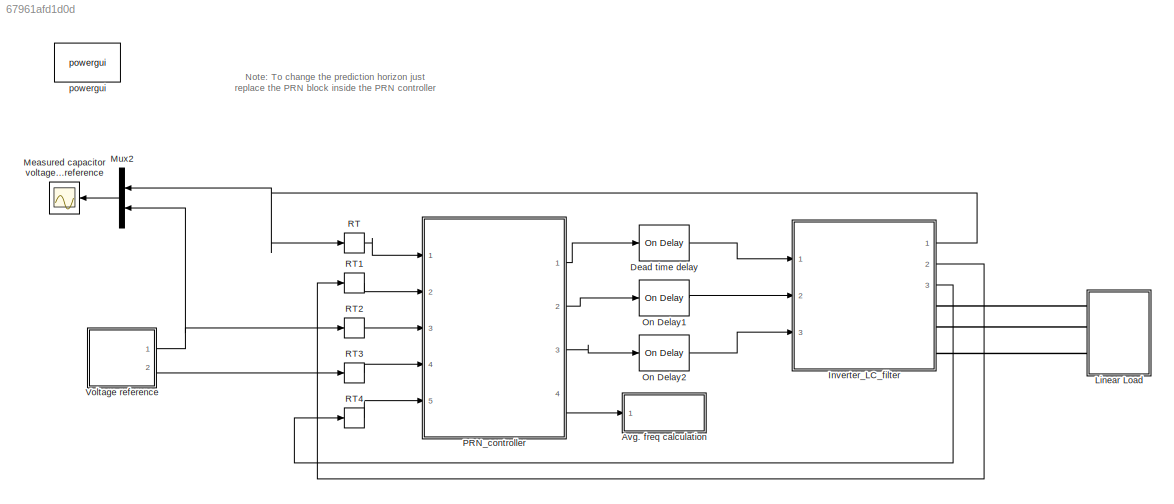
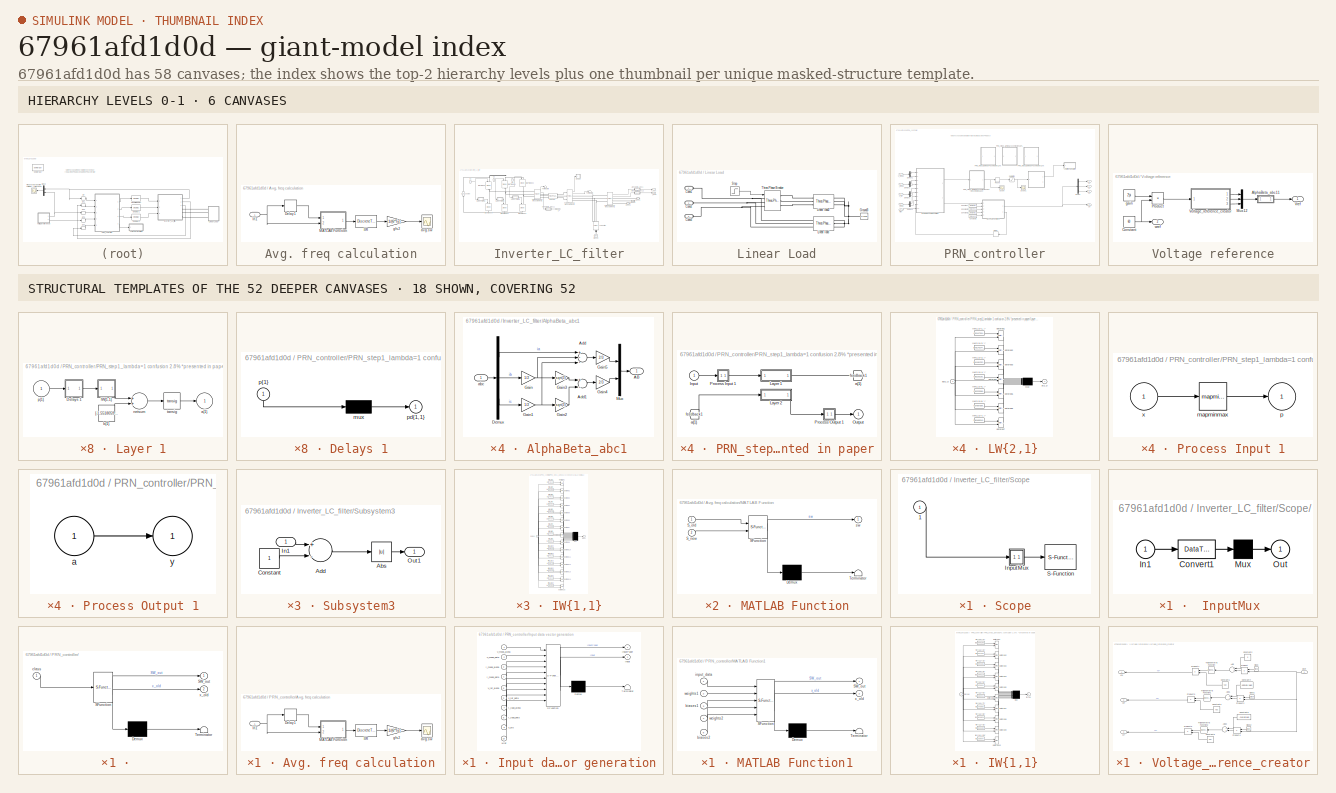
[diagram: thumbnail index - top-2 hierarchy levels (6 canvases) + 18 structural-template representatives of the remaining 52 canvases]
MODEL slx_67961afd1d0d
KIND model
CONFIG AbsTol = auto
CONFIG EnableMultiTasking = on
CONFIG FixedStep = 1e-6
CONFIG InitFcn = %initialization file\nclear \nRl=0.1;\nRload=60;\nL=2.4e-3;\nC=14e-6;\nwref=2*pi*50;\nVdc=700;\nTs=20e-6;\ns=tf('s');\nVac=325;\nTd=4e-6;\n\n%net = importKerasNetwork('model_9796.h5','Classes',{'State 1', 'State 2', 'State 3', 'State 4', 'State 5', 'State 6', 'State 7'});\n%weights1 = double(net.Layers(2,1).Weights);\n%biases1 = double(net.Layers(2,1).Bias);\n%weights2 =double(net.Layers(4,1).Weights);\n%biases2 =...<+273ch>
CONFIG MaxStep = 1
CONFIG MinStep = auto
CONFIG RelTol = 1e-3
CONFIG SampleTimeConstraint = Unconstrained
CONFIG Solver = ode4
CONFIG SolverName = ode4
CONFIG StartTime = 0.0
CONFIG StopTime = 0.2
BLOCK [SubSystem] Avg. freq calculation
  Ports = [1]
  RequestExecContextInheritance = off
BLOCK [Delay] Avg. freq calculation/Delay1
  DelayLength = 1
  InputPortMap = u0
  Ports = [1, 1]
BLOCK [DiscreteTransferFcn] Avg. freq calculation/IIR
  Denominator = [1 -0.9998]
  InputPortMap = u0
  Numerator = [0.0002]
  Ports = [1, 1]
BLOCK [Inport] Avg. freq calculation/In1
  IconDisplay = Port number
BLOCK [SubSystem] Avg. freq calculation/MATLAB Function
  ErrorFcn = Stateflow.Translate.translate
  PermitHierarchicalResolution = ExplicitOnly
  Ports = [2, 1]
  RequestExecContextInheritance = off
  SFBlockType = MATLAB Function
  TreatAsAtomicUnit = on
BLOCK [Demux] Avg. freq calculation/MATLAB Function/ Demux 
  Outputs = 1
  Ports = [1, 1]
BLOCK [S-Function] Avg. freq calculation/MATLAB Function/ SFunction 
  EnableBusSupport = on
  FunctionName = sf_sfun
  PortCounts = [2 2]
  Ports = [2, 2]
  SFcnIsStateOwnerBlock = off
  SFunctionDeploymentMode = off
  Tag = Stateflow S-Function 2
BLOCK [Terminator] Avg. freq calculation/MATLAB Function/ Terminator 
BLOCK [Inport] Avg. freq calculation/MATLAB Function/S_new
  IconDisplay = Port number
  Port = 2
BLOCK [Inport] Avg. freq calculation/MATLAB Function/S_old
  IconDisplay = Port number
BLOCK [Outport] Avg. freq calculation/MATLAB Function/sw
  IconDisplay = Port number
  VectorParamsAs1DForOutWhenUnconnected = off
BLOCK [Scope] Avg. freq calculation/avg.sw
  Floating = off
  NumInputPorts = 1
  Ports = [1]
  ScopeSpecificationString = Simulink.scopes.TimeScopeBlockCfg('CurrentConfiguration', extmgr.ConfigurationSet(extmgr.Configuration('Core','General UI',true),extmgr.Configuration('Core','Source UI',true),extmgr.Configuration('Sources','WiredSimulink',true,'DataLoggingVariableName','ScopeData1','DataLoggingSaveFormat','Array','DataLoggingDecimation','1','DataLoggingDecimateData',true),extmgr.Configuration('Visuals','Time Domai...<+1814ch>
BLOCK [Gain] Avg. freq calculation/gfs2
  Gain = 1/(6*Ts)
  OutDataTypeStr = Inherit: Inherit via internal rule
  ParamDataTypeStr = Inherit: Inherit via internal rule
  SaturateOnIntegerOverflow = off
BLOCK [Reference] Dead time delay  REF=powerlib_meascontrol/Logic/On Delay
  Ports = [1, 1]
  SourceBlock = powerlib_meascontrol/Logic/On Delay
  SourceProductBaseCode = PS
  SourceProductName = Simscape Electrical
  SourceType = On/Off Delay
BLOCK [SubSystem] Inverter_LC_filter
  Ports = [3, 3, 0, 0, 0, 0, 3]
  RequestExecContextInheritance = off
BLOCK [SubSystem] Inverter_LC_filter/AlphaBeta_abc1
  Ports = [1, 1]
  RequestExecContextInheritance = off
BLOCK [Outport] Inverter_LC_filter/AlphaBeta_abc1/AB
  IconDisplay = Port number
  VectorParamsAs1DForOutWhenUnconnected = off
BLOCK [Sum] Inverter_LC_filter/AlphaBeta_abc1/Add
  InputSameDT = off
  Inputs = +--
  OutDataTypeStr = Inherit: Inherit via internal rule
  Ports = [3, 1]
  SaturateOnIntegerOverflow = off
BLOCK [Sum] Inverter_LC_filter/AlphaBeta_abc1/Add1
  InputSameDT = off
  Inputs = +-
  OutDataTypeStr = Inherit: Inherit via internal rule
  Ports = [2, 1]
  SaturateOnIntegerOverflow = off
BLOCK [Demux] Inverter_LC_filter/AlphaBeta_abc1/Demux
  DisplayOption = bar
  Outputs = 3
  Ports = [1, 3]
BLOCK [Gain] Inverter_LC_filter/AlphaBeta_abc1/Gain
  Gain = 1/2
  OutDataTypeStr = Inherit: Inherit via internal rule
  ParamDataTypeStr = Inherit: Inherit via internal rule
  SaturateOnIntegerOverflow = off
BLOCK [Gain] Inverter_LC_filter/AlphaBeta_abc1/Gain1
  Gain = 1/2
  OutDataTypeStr = Inherit: Inherit via internal rule
  ParamDataTypeStr = Inherit: Inherit via internal rule
  SaturateOnIntegerOverflow = off
BLOCK [Gain] Inverter_LC_filter/AlphaBeta_abc1/Gain2
  Gain = sqrt(3)
  OutDataTypeStr = Inherit: Inherit via internal rule
  ParamDataTypeStr = Inherit: Inherit via internal rule
  SaturateOnIntegerOverflow = off
BLOCK [Gain] Inverter_LC_filter/AlphaBeta_abc1/Gain3
  Gain = sqrt(3)
  OutDataTypeStr = Inherit: Inherit via internal rule
  ParamDataTypeStr = Inherit: Inherit via internal rule
  SaturateOnIntegerOverflow = off
BLOCK [Gain] Inverter_LC_filter/AlphaBeta_abc1/Gain4
  Gain = 2/3
  OutDataTypeStr = Inherit: Inherit via internal rule
  ParamDataTypeStr = Inherit: Inherit via internal rule
  SaturateOnIntegerOverflow = off
BLOCK [Gain] Inverter_LC_filter/AlphaBeta_abc1/Gain5
  Gain = 2/3
  OutDataTypeStr = Inherit: Inherit via internal rule
  ParamDataTypeStr = Inherit: Inherit via internal rule
  SaturateOnIntegerOverflow = off
BLOCK [Mux] Inverter_LC_filter/AlphaBeta_abc1/Mux
  DisplayOption = bar
  Inputs = 2
  Ports = [2, 1]
BLOCK [Inport] Inverter_LC_filter/AlphaBeta_abc1/abc
  IconDisplay = Port number
BLOCK [SubSystem] Inverter_LC_filter/AlphaBeta_abc11
  Ports = [1, 1]
  RequestExecContextInheritance = off
BLOCK [Outport] Inverter_LC_filter/AlphaBeta_abc11/AB
  IconDisplay = Port number
  VectorParamsAs1DForOutWhenUnconnected = off
BLOCK [Sum] Inverter_LC_filter/AlphaBeta_abc11/Add
  InputSameDT = off
  Inputs = +--
  OutDataTypeStr = Inherit: Inherit via internal rule
  Ports = [3, 1]
  SaturateOnIntegerOverflow = off
BLOCK [Sum] Inverter_LC_filter/AlphaBeta_abc11/Add1
  InputSameDT = off
  Inputs = +-
  OutDataTypeStr = Inherit: Inherit via internal rule
  Ports = [2, 1]
  SaturateOnIntegerOverflow = off
BLOCK [Demux] Inverter_LC_filter/AlphaBeta_abc11/Demux
  DisplayOption = bar
  Outputs = 3
  Ports = [1, 3]
BLOCK [Gain] Inverter_LC_filter/AlphaBeta_abc11/Gain
  Gain = 1/2
  OutDataTypeStr = Inherit: Inherit via internal rule
  ParamDataTypeStr = Inherit: Inherit via internal rule
  SaturateOnIntegerOverflow = off
BLOCK [Gain] Inverter_LC_filter/AlphaBeta_abc11/Gain1
  Gain = 1/2
  OutDataTypeStr = Inherit: Inherit via internal rule
  ParamDataTypeStr = Inherit: Inherit via internal rule
  SaturateOnIntegerOverflow = off
BLOCK [Gain] Inverter_LC_filter/AlphaBeta_abc11/Gain2
  Gain = sqrt(3)
  OutDataTypeStr = Inherit: Inherit via internal rule
  ParamDataTypeStr = Inherit: Inherit via internal rule
  SaturateOnIntegerOverflow = off
BLOCK [Gain] Inverter_LC_filter/AlphaBeta_abc11/Gain3
  Gain = sqrt(3)
  OutDataTypeStr = Inherit: Inherit via internal rule
  ParamDataTypeStr = Inherit: Inherit via internal rule
  SaturateOnIntegerOverflow = off
BLOCK [Gain] Inverter_LC_filter/AlphaBeta_abc11/Gain4
  Gain = 2/3
  OutDataTypeStr = Inherit: Inherit via internal rule
  ParamDataTypeStr = Inherit: Inherit via internal rule
  SaturateOnIntegerOverflow = off
BLOCK [Gain] Inverter_LC_filter/AlphaBeta_abc11/Gain5
  Gain = 2/3
  OutDataTypeStr = Inherit: Inherit via internal rule
  ParamDataTypeStr = Inherit: Inherit via internal rule
  SaturateOnIntegerOverflow = off
BLOCK [Mux] Inverter_LC_filter/AlphaBeta_abc11/Mux
  DisplayOption = bar
  Inputs = 2
  Ports = [2, 1]
BLOCK [Inport] Inverter_LC_filter/AlphaBeta_abc11/abc
  IconDisplay = Port number
BLOCK [SubSystem] Inverter_LC_filter/AlphaBeta_abc12
  Ports = [1, 1]
  RequestExecContextInheritance = off
BLOCK [Outport] Inverter_LC_filter/AlphaBeta_abc12/AB
  IconDisplay = Port number
  VectorParamsAs1DForOutWhenUnconnected = off
BLOCK [Sum] Inverter_LC_filter/AlphaBeta_abc12/Add
  InputSameDT = off
  Inputs = +--
  OutDataTypeStr = Inherit: Inherit via internal rule
  Ports = [3, 1]
  SaturateOnIntegerOverflow = off
BLOCK [Sum] Inverter_LC_filter/AlphaBeta_abc12/Add1
  InputSameDT = off
  Inputs = +-
  OutDataTypeStr = Inherit: Inherit via internal rule
  Ports = [2, 1]
  SaturateOnIntegerOverflow = off
BLOCK [Demux] Inverter_LC_filter/AlphaBeta_abc12/Demux
  DisplayOption = bar
  Outputs = 3
  Ports = [1, 3]
BLOCK [Gain] Inverter_LC_filter/AlphaBeta_abc12/Gain
  Gain = 1/2
  OutDataTypeStr = Inherit: Inherit via internal rule
  ParamDataTypeStr = Inherit: Inherit via internal rule
  SaturateOnIntegerOverflow = off
BLOCK [Gain] Inverter_LC_filter/AlphaBeta_abc12/Gain1
  Gain = 1/2
  OutDataTypeStr = Inherit: Inherit via internal rule
  ParamDataTypeStr = Inherit: Inherit via internal rule
  SaturateOnIntegerOverflow = off
BLOCK [Gain] Inverter_LC_filter/AlphaBeta_abc12/Gain2
  Gain = sqrt(3)
  OutDataTypeStr = Inherit: Inherit via internal rule
  ParamDataTypeStr = Inherit: Inherit via internal rule
  SaturateOnIntegerOverflow = off
BLOCK [Gain] Inverter_LC_filter/AlphaBeta_abc12/Gain3
  Gain = sqrt(3)
  OutDataTypeStr = Inherit: Inherit via internal rule
  ParamDataTypeStr = Inherit: Inherit via internal rule
  SaturateOnIntegerOverflow = off
BLOCK [Gain] Inverter_LC_filter/AlphaBeta_abc12/Gain4
  Gain = 2/3
  OutDataTypeStr = Inherit: Inherit via internal rule
  ParamDataTypeStr = Inherit: Inherit via internal rule
  SaturateOnIntegerOverflow = off
BLOCK [Gain] Inverter_LC_filter/AlphaBeta_abc12/Gain5
  Gain = 2/3
  OutDataTypeStr = Inherit: Inherit via internal rule
  ParamDataTypeStr = Inherit: Inherit via internal rule
  SaturateOnIntegerOverflow = off
BLOCK [Mux] Inverter_LC_filter/AlphaBeta_abc12/Mux
  DisplayOption = bar
  Inputs = 2
  Ports = [2, 1]
BLOCK [Inport] Inverter_LC_filter/AlphaBeta_abc12/abc
  IconDisplay = Port number
BLOCK [PMIOPort] Inverter_LC_filter/Conn1
  Side = Right
BLOCK [PMIOPort] Inverter_LC_filter/Conn2
  Port = 2
  Side = Right
BLOCK [PMIOPort] Inverter_LC_filter/Conn3
  Port = 3
  Side = Right
BLOCK [Reference] Inverter_LC_filter/Ground  REF=powerlib/Elements/Ground
  Ports = [0, 0, 0, 0, 0, 1]
  SourceBlock = powerlib/Elements/Ground
  SourceProductBaseCode = PS
  SourceProductName = Simscape Electrical
  SourceType = Ground
BLOCK [Reference] Inverter_LC_filter/IGBT//Diode  REF=powerlib/Power
Electronics/IGBT//Diode
  Ports = [1, 0, 0, 0, 0, 1, 1]
  SourceBlock = powerlib/Power\nElectronics/IGBT//Diode
  SourceProductBaseCode = PS
  SourceProductName = Simscape Electrical
  SourceType = IGBT/Diode
BLOCK [Reference] Inverter_LC_filter/IGBT//Diode1  REF=powerlib/Power
Electronics/IGBT//Diode
  Ports = [1, 0, 0, 0, 0, 1, 1]
  SourceBlock = powerlib/Power\nElectronics/IGBT//Diode
  SourceProductBaseCode = PS
  SourceProductName = Simscape Electrical
  SourceType = IGBT/Diode
BLOCK [Reference] Inverter_LC_filter/IGBT//Diode2  REF=powerlib/Power
Electronics/IGBT//Diode
  Ports = [1, 0, 0, 0, 0, 1, 1]
  SourceBlock = powerlib/Power\nElectronics/IGBT//Diode
  SourceProductBaseCode = PS
  SourceProductName = Simscape Electrical
  SourceType = IGBT/Diode
BLOCK [Reference] Inverter_LC_filter/IGBT//Diode3  REF=powerlib/Power
Electronics/IGBT//Diode
  Ports = [1, 0, 0, 0, 0, 1, 1]
  SourceBlock = powerlib/Power\nElectronics/IGBT//Diode
  SourceProductBaseCode = PS
  SourceProductName = Simscape Electrical
  SourceType = IGBT/Diode
BLOCK [Reference] Inverter_LC_filter/IGBT//Diode4  REF=powerlib/Power
Electronics/IGBT//Diode
  Ports = [1, 0, 0, 0, 0, 1, 1]
  SourceBlock = powerlib/Power\nElectronics/IGBT//Diode
  SourceProductBaseCode = PS
  SourceProductName = Simscape Electrical
  SourceType = IGBT/Diode
BLOCK [Reference] Inverter_LC_filter/IGBT//Diode5  REF=powerlib/Power
Electronics/IGBT//Diode
  Ports = [1, 0, 0, 0, 0, 1, 1]
  SourceBlock = powerlib/Power\nElectronics/IGBT//Diode
  SourceProductBaseCode = PS
  SourceProductName = Simscape Electrical
  SourceType = IGBT/Diode
BLOCK [Inport] Inverter_LC_filter/S1
  IconDisplay = Port number
BLOCK [Inport] Inverter_LC_filter/S2
  IconDisplay = Port number
  Port = 2
BLOCK [Inport] Inverter_LC_filter/S3
  IconDisplay = Port number
  Port = 3
BLOCK [SubSystem] Inverter_LC_filter/Scope
  CopyFcn = plecs('sl', 303);
  DeleteFcn = plecs('sl', 305);
  DestroyFcn = plecs('sl', 307);
  ErrorFcn = plerrorfcn
  InitFcn = plecs('sl', 314);
  LoadFcn = plecs('sl', 300);
  NameChangeFcn = plecs('sl', 310);
  OpenFcn = plecs('sl', 302);
  Ports = [1]
  PreSaveFcn = plecs('sl', 311);
  RequestExecContextInheritance = off
  StartFcn = plecs('sl', 308);
  StopFcn = plecs('sl', 309);
  UndoDeleteFcn = plecs('sl', 306);
BLOCK [SubSystem] Inverter_LC_filter/Scope/ InputMux 
  Ports = [1, 1]
  RequestExecContextInheritance = off
BLOCK [DataTypeConversion] Inverter_LC_filter/Scope/ InputMux /Convert1
BLOCK [Inport] Inverter_LC_filter/Scope/ InputMux /In1
  IconDisplay = Port number
BLOCK [Mux] Inverter_LC_filter/Scope/ InputMux /Mux
  Inputs = 1
  Ports = [1, 1]
BLOCK [Outport] Inverter_LC_filter/Scope/ InputMux /Out
  IconDisplay = Port number
BLOCK [S-Function] Inverter_LC_filter/Scope/ S-Function 
  EnableBusSupport = off
  FunctionName = plecs
  Ports = [1]
  SFcnIsStateOwnerBlock = off
  SFunctionDeploymentMode = off
BLOCK [Inport] Inverter_LC_filter/Scope/1
  IconDisplay = Port number
BLOCK [SubSystem] Inverter_LC_filter/Subsystem3
  Ports = [1, 1]
  RequestExecContextInheritance = off
BLOCK [Abs] Inverter_LC_filter/Subsystem3/Abs
  SaturateOnIntegerOverflow = off
BLOCK [Sum] Inverter_LC_filter/Subsystem3/Add
  InputSameDT = off
  Inputs = +-
  OutDataTypeStr = Inherit: Inherit via internal rule
  Ports = [2, 1]
  SaturateOnIntegerOverflow = off
BLOCK [Constant] Inverter_LC_filter/Subsystem3/Constant
BLOCK [Inport] Inverter_LC_filter/Subsystem3/In1
  IconDisplay = Port number
BLOCK [Outport] Inverter_LC_filter/Subsystem3/Out1
  IconDisplay = Port number
  VectorParamsAs1DForOutWhenUnconnected = off
BLOCK [SubSystem] Inverter_LC_filter/Subsystem4
  Ports = [1, 1]
  RequestExecContextInheritance = off
BLOCK [Abs] Inverter_LC_filter/Subsystem4/Abs
  SaturateOnIntegerOverflow = off
BLOCK [Sum] Inverter_LC_filter/Subsystem4/Add
  InputSameDT = off
  Inputs = +-
  OutDataTypeStr = Inherit: Inherit via internal rule
  Ports = [2, 1]
  SaturateOnIntegerOverflow = off
BLOCK [Constant] Inverter_LC_filter/Subsystem4/Constant
BLOCK [Inport] Inverter_LC_filter/Subsystem4/In1
  IconDisplay = Port number
BLOCK [Outport] Inverter_LC_filter/Subsystem4/Out1
  IconDisplay = Port number
  VectorParamsAs1DForOutWhenUnconnected = off
BLOCK [SubSystem] Inverter_LC_filter/Subsystem5
  Ports = [1, 1]
  RequestExecContextInheritance = off
BLOCK [Abs] Inverter_LC_filter/Subsystem5/Abs
  SaturateOnIntegerOverflow = off
BLOCK [Sum] Inverter_LC_filter/Subsystem5/Add
  InputSameDT = off
  Inputs = +-
  OutDataTypeStr = Inherit: Inherit via internal rule
  Ports = [2, 1]
  SaturateOnIntegerOverflow = off
BLOCK [Constant] Inverter_LC_filter/Subsystem5/Constant
BLOCK [Inport] Inverter_LC_filter/Subsystem5/In1
  IconDisplay = Port number
BLOCK [Outport] Inverter_LC_filter/Subsystem5/Out1
  IconDisplay = Port number
  VectorParamsAs1DForOutWhenUnconnected = off
BLOCK [Terminator] Inverter_LC_filter/Terminator6
BLOCK [Terminator] Inverter_LC_filter/Terminator8
BLOCK [Reference] Inverter_LC_filter/Three-Phase V-I Measurement1  REF=powerlib/Measurements/Three-Phase
V-I Measurement
  Ports = [0, 2, 0, 0, 0, 3, 3]
  SourceBlock = powerlib/Measurements/Three-Phase\nV-I Measurement
  SourceProductBaseCode = PS
  SourceProductName = Simscape Electrical
  SourceType = Three-Phase VI Measurement
BLOCK [Reference] Inverter_LC_filter/Three-Phase V-I Measurement2  REF=powerlib/Measurements/Three-Phase
V-I Measurement
  Ports = [0, 2, 0, 0, 0, 3, 3]
  SourceBlock = powerlib/Measurements/Three-Phase\nV-I Measurement
  SourceProductBaseCode = PS
  SourceProductName = Simscape Electrical
  SourceType = Three-Phase VI Measurement
BLOCK [Reference] Inverter_LC_filter/Three-Phase V-I Measurement3  REF=powerlib/Measurements/Three-Phase
V-I Measurement
  Ports = [0, 2, 0, 0, 0, 3, 3]
  SourceBlock = powerlib/Measurements/Three-Phase\nV-I Measurement
  SourceProductBaseCode = PS
  SourceProductName = Simscape Electrical
  SourceType = Three-Phase VI Measurement
BLOCK [Reference] Inverter_LC_filter/capacitor  REF=powerlib/Elements/Three-Phase
Series RLC Branch
  AttributesFormatString = \n
  Ports = [0, 0, 0, 0, 0, 3, 3]
  SourceBlock = powerlib/Elements/Three-Phase\nSeries RLC Branch
  SourceProductBaseCode = PS
  SourceProductName = Simscape Electrical
  SourceType = Three-Phase Series RLC Branch
BLOCK [Outport] Inverter_LC_filter/i_L
  IconDisplay = Port number
  Port = 2
  VectorParamsAs1DForOutWhenUnconnected = off
BLOCK [Outport] Inverter_LC_filter/i_load
  IconDisplay = Port number
  Port = 3
  VectorParamsAs1DForOutWhenUnconnected = off
BLOCK [Reference] Inverter_LC_filter/inductor  REF=powerlib/Elements/Three-Phase
Series RLC Branch
  AttributesFormatString = \n
  Ports = [0, 0, 0, 0, 0, 3, 3]
  SourceBlock = powerlib/Elements/Three-Phase\nSeries RLC Branch
  SourceProductBaseCode = PS
  SourceProductName = Simscape Electrical
  SourceType = Three-Phase Series RLC Branch
BLOCK [Reference] Inverter_LC_filter/source  REF=powerlib/Electrical
Sources/DC Voltage Source
  Ports = [0, 0, 0, 0, 0, 1, 1]
  SourceBlock = powerlib/Electrical\nSources/DC Voltage Source
  SourceProductBaseCode = PS
  SourceProductName = Simscape Electrical
  SourceType = DC Voltage Source
BLOCK [Outport] Inverter_LC_filter/v_out
  IconDisplay = Port number
  VectorParamsAs1DForOutWhenUnconnected = off
BLOCK [SubSystem] Linear Load
  Ports = [0, 0, 0, 0, 0, 3]
  RequestExecContextInheritance = off
BLOCK [PMIOPort] Linear Load/Conn1
  Side = Left
BLOCK [PMIOPort] Linear Load/Conn2
  Port = 2
  Side = Left
BLOCK [PMIOPort] Linear Load/Conn3
  Port = 3
  Side = Left
BLOCK [Reference] Linear Load/Ground3  REF=powerlib/Elements/Ground
  Ports = [0, 0, 0, 0, 0, 1]
  SourceBlock = powerlib/Elements/Ground
  SourceProductBaseCode = PS
  SourceProductName = Simscape Electrical
  SourceType = Ground
BLOCK [Reference] Linear Load/Linear load  REF=powerlib/Elements/Three-Phase
Series RLC Branch
  AttributesFormatString = \n
  Ports = [0, 0, 0, 0, 0, 3, 3]
  SourceBlock = powerlib/Elements/Three-Phase\nSeries RLC Branch
  SourceProductBaseCode = PS
  SourceProductName = Simscape Electrical
  SourceType = Three-Phase Series RLC Branch
BLOCK [Reference] Linear Load/Linear load2  REF=powerlib/Elements/Three-Phase
Series RLC Branch
  AttributesFormatString = \n
  Ports = [0, 0, 0, 0, 0, 3, 3]
  SourceBlock = powerlib/Elements/Three-Phase\nSeries RLC Branch
  SourceProductBaseCode = PS
  SourceProductName = Simscape Electrical
  SourceType = Three-Phase Series RLC Branch
BLOCK [Step] Linear Load/Step
  After = 0
  SampleTime = 0
  Time = 0.025
BLOCK [Reference] Linear Load/Three-Phase Breaker  REF=powerlib/Elements/Three-Phase Breaker
  Ports = [1, 0, 0, 0, 0, 3, 3]
  SourceBlock = powerlib/Elements/Three-Phase Breaker
  SourceProductBaseCode = PS
  SourceProductName = Simscape Electrical
  SourceType = Three-Phase Breaker
BLOCK [Scope] Measured capacitor voltage and reference 
  Floating = off
  NumInputPorts = 1
  Ports = [1]
  ScopeSpecificationString = Simulink.scopes.TimeScopeBlockCfg('CurrentConfiguration', extmgr.ConfigurationSet(extmgr.Configuration('Core','General UI',true),extmgr.Configuration('Core','Source UI',true),extmgr.Configuration('Sources','WiredSimulink',true,'DataLoggingVariableName','refs_2','DataLogging',true),extmgr.Configuration('Visuals','Time Domain',true,'SerializedDisplays',{struct('MinYLimReal','-348.26152','MaxYLimReal...<+1553ch>
BLOCK [Mux] Mux2
  DisplayOption = bar
  Inputs = 2
  Ports = [2, 1]
BLOCK [Reference] On Delay1  REF=powerlib_meascontrol/Logic/On Delay
  Ports = [1, 1]
  SourceBlock = powerlib_meascontrol/Logic/On Delay
  SourceProductBaseCode = PS
  SourceProductName = Simscape Electrical
  SourceType = On/Off Delay
BLOCK [Reference] On Delay2  REF=powerlib_meascontrol/Logic/On Delay
  Ports = [1, 1]
  SourceBlock = powerlib_meascontrol/Logic/On Delay
  SourceProductBaseCode = PS
  SourceProductName = Simscape Electrical
  SourceType = On/Off Delay
BLOCK [SubSystem] PRN_controller
  Ports = [5, 4]
  RequestExecContextInheritance = off
  SystemSampleTime = Ts
BLOCK [SubSystem] PRN_controller/ 
  ErrorFcn = Stateflow.Translate.translate
  PermitHierarchicalResolution = ExplicitOnly
  Ports = [1, 2]
  RequestExecContextInheritance = off
  SFBlockType = MATLAB Function
BLOCK [Demux] PRN_controller/ / Demux 
  Outputs = 1
  Ports = [1, 1]
BLOCK [S-Function] PRN_controller/ / SFunction 
  EnableBusSupport = on
  FunctionName = sf_sfun
  PortCounts = [1 3]
  Ports = [1, 3]
  SFcnIsStateOwnerBlock = off
  SFunctionDeploymentMode = off
  Tag = Stateflow S-Function 1
BLOCK [Terminator] PRN_controller/ / Terminator 
BLOCK [Outport] PRN_controller/ /SW_out
  IconDisplay = Port number
  VectorParamsAs1DForOutWhenUnconnected = off
BLOCK [Inport] PRN_controller/ /class
  IconDisplay = Port number
BLOCK [Outport] PRN_controller/ /x_old
  IconDisplay = Port number
  Port = 2
  VectorParamsAs1DForOutWhenUnconnected = off
BLOCK [SubSystem] PRN_controller/Avg. freq calculation
  Ports = [1]
  RequestExecContextInheritance = off
BLOCK [Delay] PRN_controller/Avg. freq calculation/Delay1
  DelayLength = 1
  InputPortMap = u0
  Ports = [1, 1]
BLOCK [DiscreteTransferFcn] PRN_controller/Avg. freq calculation/IIR
  Denominator = [1 -0.9998]
  InputPortMap = u0
  Numerator = [0.0002]
  Ports = [1, 1]
BLOCK [Inport] PRN_controller/Avg. freq calculation/In1
  IconDisplay = Port number
BLOCK [SubSystem] PRN_controller/Avg. freq calculation/MATLAB Function
  ErrorFcn = Stateflow.Translate.translate
  PermitHierarchicalResolution = ExplicitOnly
  Ports = [2, 1]
  RequestExecContextInheritance = off
  SFBlockType = MATLAB Function
  TreatAsAtomicUnit = on
BLOCK [Demux] PRN_controller/Avg. freq calculation/MATLAB Function/ Demux 
  Outputs = 1
  Ports = [1, 1]
BLOCK [S-Function] PRN_controller/Avg. freq calculation/MATLAB Function/ SFunction 
  EnableBusSupport = on
  FunctionName = sf_sfun
  PortCounts = [2 2]
  Ports = [2, 2]
  SFcnIsStateOwnerBlock = off
  SFunctionDeploymentMode = off
  Tag = Stateflow S-Function 4
BLOCK [Terminator] PRN_controller/Avg. freq calculation/MATLAB Function/ Terminator 
BLOCK [Inport] PRN_controller/Avg. freq calculation/MATLAB Function/S_new
  IconDisplay = Port number
  Port = 2
BLOCK [Inport] PRN_controller/Avg. freq calculation/MATLAB Function/S_old
  IconDisplay = Port number
BLOCK [Outport] PRN_controller/Avg. freq calculation/MATLAB Function/sw
  IconDisplay = Port number
  VectorParamsAs1DForOutWhenUnconnected = off
BLOCK [Scope] PRN_controller/Avg. freq calculation/avg.sw
  Floating = off
  NumInputPorts = 1
  Ports = [1]
  ScopeSpecificationString = Simulink.scopes.TimeScopeBlockCfg('CurrentConfiguration', extmgr.ConfigurationSet(extmgr.Configuration('Core','General UI',true),extmgr.Configuration('Core','Source UI',true),extmgr.Configuration('Sources','WiredSimulink',true,'DataLoggingVariableName','ScopeData1','DataLoggingSaveFormat','Array','DataLoggingDecimation','1','DataLoggingDecimateData',true),extmgr.Configuration('Visuals','Time Domai...<+1814ch>
BLOCK [Gain] PRN_controller/Avg. freq calculation/gfs2
  Gain = 1/(6*Ts)
  OutDataTypeStr = Inherit: Inherit via internal rule
  ParamDataTypeStr = Inherit: Inherit via internal rule
  SaturateOnIntegerOverflow = off
BLOCK [Constant] PRN_controller/Constant
  Value = weights1
BLOCK [Constant] PRN_controller/Constant1
  Value = weights2
BLOCK [Constant] PRN_controller/Constant2
  Value = biases1
BLOCK [Constant] PRN_controller/Constant3
  Value = biases2
BLOCK [Delay] PRN_controller/Delay
  DelayLength = 1
  InputPortMap = u0
  Ports = [1, 1]
  SampleTime = Ts
BLOCK [Demux] PRN_controller/Demux
  DisplayOption = bar
  Outputs = 3
  Ports = [1, 3]
BLOCK [Demux] PRN_controller/Demux1
  DisplayOption = bar
  Outputs = 2
  Ports = [1, 2]
BLOCK [Demux] PRN_controller/Demux2
  DisplayOption = bar
  Outputs = 2
  Ports = [1, 2]
BLOCK [Demux] PRN_controller/Demux3
  DisplayOption = bar
  Outputs = 2
  Ports = [1, 2]
BLOCK [Demux] PRN_controller/Demux4
  DisplayOption = bar
  Outputs = 2
  Ports = [1, 2]
BLOCK [Inport] PRN_controller/I_meas
  IconDisplay = Port number
  Port = 2
BLOCK [SubSystem] PRN_controller/Input data vector generation
  ErrorFcn = Stateflow.Translate.translate
  PermitHierarchicalResolution = ExplicitOnly
  Ports = [10, 2]
  RequestExecContextInheritance = off
  SFBlockType = MATLAB Function
  SystemSampleTime = Ts
BLOCK [Demux] PRN_controller/Input data vector generation/ Demux 
  Outputs = 1
  Ports = [1, 1]
BLOCK [S-Function] PRN_controller/Input data vector generation/ SFunction 
  EnableBusSupport = on
  FunctionName = sf_sfun
  PortCounts = [10 3]
  Ports = [10, 3]
  SFcnIsStateOwnerBlock = off
  SFunctionDeploymentMode = off
  Tag = Stateflow S-Function 3
BLOCK [Terminator] PRN_controller/Input data vector generation/ Terminator 
BLOCK [Outport] PRN_controller/Input data vector generation/Input
  IconDisplay = Port number
  Port = 2
  VectorParamsAs1DForOutWhenUnconnected = off
BLOCK [Outport] PRN_controller/Input data vector generation/InputPaper
  IconDisplay = Port number
BLOCK [Inport] PRN_controller/Input data vector generation/i_load_alpha
  IconDisplay = Port number
  Port = 7
BLOCK [Inport] PRN_controller/Input data vector generation/i_load_beta
  IconDisplay = Port number
  Port = 8
BLOCK [Inport] PRN_controller/Input data vector generation/i_meas_alpha
  IconDisplay = Port number
  Port = 3
BLOCK [Inport] PRN_controller/Input data vector generation/i_meas_beta
  IconDisplay = Port number
  Port = 4
BLOCK [Inport] PRN_controller/Input data vector generation/v_meas_alpha
  IconDisplay = Port number
BLOCK [Inport] PRN_controller/Input data vector generation/v_meas_beta
  IconDisplay = Port number
  Port = 2
BLOCK [Inport] PRN_controller/Input data vector generation/v_ref_alpha
  IconDisplay = Port number
  Port = 5
BLOCK [Inport] PRN_controller/Input data vector generation/v_ref_beta
  IconDisplay = Port number
  Port = 6
BLOCK [Inport] PRN_controller/Input data vector generation/wref
  IconDisplay = Port number
  Port = 10
BLOCK [Inport] PRN_controller/Input data vector generation/x_old
  IconDisplay = Port number
  Port = 9
BLOCK [SubSystem] PRN_controller/MATLAB Function1
  ErrorFcn = Stateflow.Translate.translate
  PermitHierarchicalResolution = ExplicitOnly
  Ports = [5, 2]
  RequestExecContextInheritance = off
  SFBlockType = MATLAB Function
  TreatAsAtomicUnit = on
BLOCK [Demux] PRN_controller/MATLAB Function1/ Demux 
  Outputs = 1
  Ports = [1, 1]
BLOCK [S-Function] PRN_controller/MATLAB Function1/ SFunction 
  EnableBusSupport = on
  FunctionName = sf_sfun
  PortCounts = [5 3]
  Ports = [5, 3]
  SFcnIsStateOwnerBlock = off
  SFunctionDeploymentMode = off
  Tag = Stateflow S-Function 5
BLOCK [Terminator] PRN_controller/MATLAB Function1/ Terminator 
BLOCK [Outport] PRN_controller/MATLAB Function1/SW_out
  IconDisplay = Port number
BLOCK [Inport] PRN_controller/MATLAB Function1/biases1
  IconDisplay = Port number
  Port = 3
BLOCK [Inport] PRN_controller/MATLAB Function1/biases2
  IconDisplay = Port number
  Port = 5
BLOCK [Inport] PRN_controller/MATLAB Function1/input_data
  IconDisplay = Port number
BLOCK [Inport] PRN_controller/MATLAB Function1/weights1
  IconDisplay = Port number
  Port = 2
BLOCK [Inport] PRN_controller/MATLAB Function1/weights2
  IconDisplay = Port number
  Port = 4
BLOCK [Outport] PRN_controller/MATLAB Function1/x_old
  IconDisplay = Port number
  Port = 2
BLOCK [SubSystem] PRN_controller/PRN_step1_lambda=1 confusion 2.8% *presented in paper
  Ports = [1, 1]
  RequestExecContextInheritance = off
BLOCK [From] PRN_controller/PRN_step1_lambda=1 confusion 2.8% *presented in paper/ a{1} 
  GotoTag = feedback1
BLOCK [Inport] PRN_controller/PRN_step1_lambda=1 confusion 2.8% *presented in paper/Input
  IconDisplay = Port number
  PortDimensions = 8
BLOCK [SubSystem] PRN_controller/PRN_step1_lambda=1 confusion 2.8% *presented in paper/Layer 1
  Ports = [1, 1]
  RequestExecContextInheritance = off
BLOCK [SubSystem] PRN_controller/PRN_step1_lambda=1 confusion 2.8% *presented in paper/Layer 1/Delays 1
  Ports = [1, 1]
  RequestExecContextInheritance = off
BLOCK [Mux] PRN_controller/PRN_step1_lambda=1 confusion 2.8% *presented in paper/Layer 1/Delays 1/mux
  Inputs = 1
  Ports = [1, 1]
BLOCK [Outport] PRN_controller/PRN_step1_lambda=1 confusion 2.8% *presented in paper/Layer 1/Delays 1/pd{1,1}
  IconDisplay = Port number
  VectorParamsAs1DForOutWhenUnconnected = off
BLOCK [Inport] PRN_controller/PRN_step1_lambda=1 confusion 2.8% *presented in paper/Layer 1/Delays 1/p{1}
  IconDisplay = Port number
  PortDimensions = 8
BLOCK [SubSystem] PRN_controller/PRN_step1_lambda=1 confusion 2.8% *presented in paper/Layer 1/IW{1,1}
  Ports = [1, 1]
  RequestExecContextInheritance = off
BLOCK [Constant] PRN_controller/PRN_step1_lambda=1 confusion 2.8% *presented in paper/Layer 1/IW{1,1}/IW{1,1}(1,:)'
  Value = [0.89065283111944382188340796346892602741718292236328125;-0.430182327931759533878874890433507971465587615966796875;0.01479086629531942663484667122020255192182958126068115234375;-0.036682008018191734899371425626668496988713741302490234375;0.01267177162059051655218500087585198343731462955474853515625;-0.009774878831580853522087437568188761360943317413330078125;-0.150758372695295295162765114582725800...<+74ch>
BLOCK [Constant] PRN_controller/PRN_step1_lambda=1 confusion 2.8% *presented in paper/Layer 1/IW{1,1}/IW{1,1}(10,:)'
  Value = [-0.033869785493710224955066223628818988800048828125;-0.002441818174138071263767901797336890012957155704498291015625;0.00609553721087303761183573413973135757260024547576904296875;-0.00993632553656967169863900579684923286549746990203857421875;-0.001499295182276406089572073909721439122222363948822021484375;-0.00172739401914576650408361668809220645925961434841156005859375;5.29322377605190208527119466...<+86ch>
BLOCK [Constant] PRN_controller/PRN_step1_lambda=1 confusion 2.8% *presented in paper/Layer 1/IW{1,1}/IW{1,1}(2,:)'
  Value = [-0.02347634478417560954799370165346772409975528717041015625;-0.0265348096948873242439947972570735146291553974151611328125;0.006048171168510143962115943594426425988785922527313232421875;0.00906350751397607366788289340320261544547975063323974609375;0.000413475745678936411862947064577156197628937661647796630859375;0.000631974035577719472044078141692580175003968179225921630859375;-3.08007311555442964...<+97ch>
BLOCK [Constant] PRN_controller/PRN_step1_lambda=1 confusion 2.8% *presented in paper/Layer 1/IW{1,1}/IW{1,1}(3,:)'
  Value = [-0.309310608151677934873902131585055030882358551025390625;-0.8451842512182612399129766345140524208545684814453125;0.0124121204376902681543182183077078661881387233734130859375;0.0293135796121375795386665430442008073441684246063232421875;-0.002159123474680235861555832599378845770843327045440673828125;-0.01365733049716540657703145456025595194660127162933349609375;0.1256528373803091347404858879599487...<+76ch>
BLOCK [Constant] PRN_controller/PRN_step1_lambda=1 confusion 2.8% *presented in paper/Layer 1/IW{1,1}/IW{1,1}(4,:)'
  Value = [0.52356216085914841773529815327492542564868927001953125;-0.9451762770184639617099264796706847846508026123046875;-0.751981147200787791717857544426806271076202392578125;1.392780000608397461547838247497566044330596923828125;-0.046501125949127135317251457991005736403167247772216796875;0.09083566709922623327866375575467827729880809783935546875;-0.634157374604780610383159000775776803493499755859375;0.1...<+55ch>
BLOCK [Constant] PRN_controller/PRN_step1_lambda=1 confusion 2.8% *presented in paper/Layer 1/IW{1,1}/IW{1,1}(5,:)'
  Value = [-1.5123064998765050059859049724764190614223480224609375;0.274198028372146185294155884548672474920749664306640625;2.214074937429116207709967056871391832828521728515625;0.038584766235021043800923479238917934708297252655029296875;0.1405976667974107308101139324207906611263751983642578125;0.00398021939475003312669532107292980072088539600372314453125;1.4042893759395411734658409841358661651611328125;-0....<+54ch>
BLOCK [Constant] PRN_controller/PRN_step1_lambda=1 confusion 2.8% *presented in paper/Layer 1/IW{1,1}/IW{1,1}(6,:)'
  Value = [-1.213631107325650493322655165684409439563751220703125;0.2041580415557025240946842359335278160870075225830078125;1.782026362513771999829259584657847881317138671875;0.020773017073581867553144775229156948626041412353515625;0.11147594776790857584725102924494422040879726409912109375;0.002002442648009178545465136522807370056398212909698486328125;1.1824841963453056603583490868913941085338592529296875;-...<+58ch>
BLOCK [Constant] PRN_controller/PRN_step1_lambda=1 confusion 2.8% *presented in paper/Layer 1/IW{1,1}/IW{1,1}(7,:)'
  Value = [-0.507085504703193468145627775811590254306793212890625;-0.7341309803208206918867517742910422384738922119140625;0.7549103807530030962880118750035762786865234375;1.37834676041062831330918925232253968715667724609375;0.0498076514554266214229727438578265719115734100341796875;0.08998326028411539334594948513768031261861324310302734375;0.37694643344609612967133216443471610546112060546875;-0.0052016365857...<+47ch>
BLOCK [Constant] PRN_controller/PRN_step1_lambda=1 confusion 2.8% *presented in paper/Layer 1/IW{1,1}/IW{1,1}(8,:)'
  Value = [0.398188340478180913262207241132273338735103607177734375;0.7260062984167874322594116165419109165668487548828125;0.0120659264059586150696912199009602773003280162811279296875;0.0558246713902142699392783242728910408914089202880859375;0.0108057792727392042164691332573056570254266262054443359375;0.01004859649064991644618061172877787612378597259521484375;-0.043100514639511797176929519537225132808089256...<+67ch>
BLOCK [Constant] PRN_controller/PRN_step1_lambda=1 confusion 2.8% *presented in paper/Layer 1/IW{1,1}/IW{1,1}(9,:)'
  Value = [-0.81516180994260534209416846351814456284046173095703125;0.375381315526636283319561471216729842126369476318359375;-0.252793988738882757782988619510433636605739593505859375;0.1472731951632119395956266316716209985315799713134765625;-0.0310049880443988602751748118180330493487417697906494140625;0.0147830733416875748087448982914793305099010467529296875;0.01233017815242589895752267636908072745427489280...<+69ch>
BLOCK [Mux] PRN_controller/PRN_step1_lambda=1 confusion 2.8% *presented in paper/Layer 1/IW{1,1}/Mux
  Inputs = 10
  Ports = [10, 1]
BLOCK [Reference] PRN_controller/PRN_step1_lambda=1 confusion 2.8% *presented in paper/Layer 1/IW{1,1}/dotprod1  REF=neural/Weight Functions/dotprod
  Ports = [2, 1]
  SourceBlock = neural/Weight Functions/dotprod
  SourceProductBaseCode = NN
  SourceProductName = Deep Learning Toolbox
  SourceType = DOTPROD
BLOCK [Reference] PRN_controller/PRN_step1_lambda=1 confusion 2.8% *presented in paper/Layer 1/IW{1,1}/dotprod10  REF=neural/Weight Functions/dotprod
  Ports = [2, 1]
  SourceBlock = neural/Weight Functions/dotprod
  SourceProductBaseCode = NN
  SourceProductName = Deep Learning Toolbox
  SourceType = DOTPROD
BLOCK [Reference] PRN_controller/PRN_step1_lambda=1 confusion 2.8% *presented in paper/Layer 1/IW{1,1}/dotprod2  REF=neural/Weight Functions/dotprod
  Ports = [2, 1]
  SourceBlock = neural/Weight Functions/dotprod
  SourceProductBaseCode = NN
  SourceProductName = Deep Learning Toolbox
  SourceType = DOTPROD
BLOCK [Reference] PRN_controller/PRN_step1_lambda=1 confusion 2.8% *presented in paper/Layer 1/IW{1,1}/dotprod3  REF=neural/Weight Functions/dotprod
  Ports = [2, 1]
  SourceBlock = neural/Weight Functions/dotprod
  SourceProductBaseCode = NN
  SourceProductName = Deep Learning Toolbox
  SourceType = DOTPROD
BLOCK [Reference] PRN_controller/PRN_step1_lambda=1 confusion 2.8% *presented in paper/Layer 1/IW{1,1}/dotprod4  REF=neural/Weight Functions/dotprod
  Ports = [2, 1]
  SourceBlock = neural/Weight Functions/dotprod
  SourceProductBaseCode = NN
  SourceProductName = Deep Learning Toolbox
  SourceType = DOTPROD
BLOCK [Reference] PRN_controller/PRN_step1_lambda=1 confusion 2.8% *presented in paper/Layer 1/IW{1,1}/dotprod5  REF=neural/Weight Functions/dotprod
  Ports = [2, 1]
  SourceBlock = neural/Weight Functions/dotprod
  SourceProductBaseCode = NN
  SourceProductName = Deep Learning Toolbox
  SourceType = DOTPROD
BLOCK [Reference] PRN_controller/PRN_step1_lambda=1 confusion 2.8% *presented in paper/Layer 1/IW{1,1}/dotprod6  REF=neural/Weight Functions/dotprod
  Ports = [2, 1]
  SourceBlock = neural/Weight Functions/dotprod
  SourceProductBaseCode = NN
  SourceProductName = Deep Learning Toolbox
  SourceType = DOTPROD
BLOCK [Reference] PRN_controller/PRN_step1_lambda=1 confusion 2.8% *presented in paper/Layer 1/IW{1,1}/dotprod7  REF=neural/Weight Functions/dotprod
  Ports = [2, 1]
  SourceBlock = neural/Weight Functions/dotprod
  SourceProductBaseCode = NN
  SourceProductName = Deep Learning Toolbox
  SourceType = DOTPROD
BLOCK [Reference] PRN_controller/PRN_step1_lambda=1 confusion 2.8% *presented in paper/Layer 1/IW{1,1}/dotprod8  REF=neural/Weight Functions/dotprod
  Ports = [2, 1]
  SourceBlock = neural/Weight Functions/dotprod
  SourceProductBaseCode = NN
  SourceProductName = Deep Learning Toolbox
  SourceType = DOTPROD
BLOCK [Reference] PRN_controller/PRN_step1_lambda=1 confusion 2.8% *presented in paper/Layer 1/IW{1,1}/dotprod9  REF=neural/Weight Functions/dotprod
  Ports = [2, 1]
  SourceBlock = neural/Weight Functions/dotprod
  SourceProductBaseCode = NN
  SourceProductName = Deep Learning Toolbox
  SourceType = DOTPROD
BLOCK [Outport] PRN_controller/PRN_step1_lambda=1 confusion 2.8% *presented in paper/Layer 1/IW{1,1}/iz{1,1}
  IconDisplay = Port number
  VectorParamsAs1DForOutWhenUnconnected = off
BLOCK [Inport] PRN_controller/PRN_step1_lambda=1 confusion 2.8% *presented in paper/Layer 1/IW{1,1}/pd{1,1}
  IconDisplay = Port number
  PortDimensions = 8
BLOCK [Outport] PRN_controller/PRN_step1_lambda=1 confusion 2.8% *presented in paper/Layer 1/a{1}
  IconDisplay = Port number
  InitialOutput = [0;0;0;0;0;0;0;0;0;0]
  VectorParamsAs1DForOutWhenUnconnected = off
BLOCK [Constant] PRN_controller/PRN_step1_lambda=1 confusion 2.8% *presented in paper/Layer 1/b{1}
  Value = [-1.5518059113177289365381739116855897009372711181640625;0.386331326310959177749992932149325497448444366455078125;1.4556207639696783218141717952676117420196533203125;-0.1515608015963426924432866371716954745352268218994140625;-1.074495278888694560492922391858883202075958251953125;0.9783214291881672242112699677818454802036285400390625;-0.01240614954504144600011539267825355636887252330780029296875;1....<+160ch>
BLOCK [Sum] PRN_controller/PRN_step1_lambda=1 confusion 2.8% *presented in paper/Layer 1/netsum
  Inputs = 2
  Ports = [2, 1]
BLOCK [Inport] PRN_controller/PRN_step1_lambda=1 confusion 2.8% *presented in paper/Layer 1/p{1}
  IconDisplay = Port number
  PortDimensions = 8
BLOCK [Reference] PRN_controller/PRN_step1_lambda=1 confusion 2.8% *presented in paper/Layer 1/tansig  REF=neural/Transfer Functions/tansig
  Ports = [1, 1]
  SourceBlock = neural/Transfer Functions/tansig
  SourceProductBaseCode = NN
  SourceProductName = Deep Learning Toolbox
  SourceType = TANSIG
BLOCK [SubSystem] PRN_controller/PRN_step1_lambda=1 confusion 2.8% *presented in paper/Layer 2
  Ports = [1, 1]
  RequestExecContextInheritance = off
BLOCK [SubSystem] PRN_controller/PRN_step1_lambda=1 confusion 2.8% *presented in paper/Layer 2/Delays 1
  Ports = [1, 1]
  RequestExecContextInheritance = off
BLOCK [Mux] PRN_controller/PRN_step1_lambda=1 confusion 2.8% *presented in paper/Layer 2/Delays 1/mux
  Inputs = 1
  Ports = [1, 1]
BLOCK [Outport] PRN_controller/PRN_step1_lambda=1 confusion 2.8% *presented in paper/Layer 2/Delays 1/pd{2,1}
  IconDisplay = Port number
  VectorParamsAs1DForOutWhenUnconnected = off
BLOCK [Inport] PRN_controller/PRN_step1_lambda=1 confusion 2.8% *presented in paper/Layer 2/Delays 1/p{2}
  IconDisplay = Port number
  PortDimensions = 10
BLOCK [SubSystem] PRN_controller/PRN_step1_lambda=1 confusion 2.8% *presented in paper/Layer 2/LW{2,1}
  Ports = [1, 1]
  RequestExecContextInheritance = off
BLOCK [Constant] PRN_controller/PRN_step1_lambda=1 confusion 2.8% *presented in paper/Layer 2/LW{2,1}/IW{2,1}(1,:)'
  Value = [-0.2447264249772673760929819763987325131893157958984375;-0.337409756231913549040513089494197629392147064208984375;0.212706664528708067063433873045141808688640594482421875;0.217662775731741031659538521125796250998973846435546875;-0.4719178306088680496799270258634351193904876708984375;0.54519620751611019837667981846607290208339691162109375;0.361295034640604917353101654953206889331340789794921875;-0...<+164ch>
BLOCK [Constant] PRN_controller/PRN_step1_lambda=1 confusion 2.8% *presented in paper/Layer 2/LW{2,1}/IW{2,1}(2,:)'
  Value = [8.781762471299092709386968635953962802886962890625;-15.7617803316358191523249843157827854156494140625;-2.230087443576736827566264764755032956600189208984375;16.826073208456715946113035897724330425262451171875;-10.9005423358154427404542730073444545269012451171875;-15.1754839354905772808024266851134598255157470703125;-16.985795264624510281237235176376998424530029296875;6.532731191497456180172775930...<+121ch>
BLOCK [Constant] PRN_controller/PRN_step1_lambda=1 confusion 2.8% *presented in paper/Layer 2/LW{2,1}/IW{2,1}(3,:)'
  Value = [1.411812324211521030292715295217931270599365234375;-16.813636063976598933322748052887618541717529296875;-9.0711468536323724976000448805280029773712158203125;-16.931114284954528415028107701800763607025146484375;-9.827619068516266764845568104647099971771240234375;-14.8429392622811331392540523665957152843475341796875;-17.1162720965425023678108118474483489990234375;9.436659229022266615061198535840958...<+128ch>
BLOCK [Constant] PRN_controller/PRN_step1_lambda=1 confusion 2.8% *presented in paper/Layer 2/LW{2,1}/IW{2,1}(4,:)'
  Value = [-8.51631926734096822428909945301711559295654296875;-2.28765042909483096167377880192361772060394287109375;-7.5331876643960189454674036824144423007965087890625;-16.224073115276752332647447474300861358642578125;10.3496766606180159442374133504927158355712890625;14.143813760878284568889284855686128139495849609375;-17.6222162846612349085262394510209560394287109375;2.417517019785575982382397342007607221...<+121ch>
BLOCK [Constant] PRN_controller/PRN_step1_lambda=1 confusion 2.8% *presented in paper/Layer 2/LW{2,1}/IW{2,1}(5,:)'
  Value = [-9.2222089868135963541817545774392783641815185546875;15.73188376616379713368587545119225978851318359375;1.621635442769872259560770544339902698993682861328125;-16.41870534151187399629634455777704715728759765625;11.1841454177130383840221838909201323986053466796875;14.409428720821299663157333270646631717681884765625;16.81360237645384358984301798045635223388671875;-6.903960971075782993011671351268887...<+117ch>
BLOCK [Constant] PRN_controller/PRN_step1_lambda=1 confusion 2.8% *presented in paper/Layer 2/LW{2,1}/IW{2,1}(6,:)'
  Value = [-0.76873893745015642320339566140319220721721649169921875;16.657788661206250679924778523854911327362060546875;9.7950100698656665798580434056930243968963623046875;16.754519323167695432630353025160729885101318359375;9.8203945935393992527906448231078684329986572265625;13.5279332476670024476561593473888933658599853515625;17.87550838271217656938461004756391048431396484375;-9.625216415274648440458804543...<+134ch>
BLOCK [Constant] PRN_controller/PRN_step1_lambda=1 confusion 2.8% *presented in paper/Layer 2/LW{2,1}/IW{2,1}(7,:)'
  Value = [7.9646601694811192118095277692191302776336669921875;2.48677709605842611750858850427903234958648681640625;7.5327548043971663815909778350032866001129150390625;16.84269301071059743435398559086024761199951171875;-9.9231183140784811058665582095272839069366455078125;-14.555967000479643758126258035190403461456298828125;17.96135101667284317272788030095398426055908203125;-3.6234169706359233842363209987524...<+125ch>
BLOCK [Mux] PRN_controller/PRN_step1_lambda=1 confusion 2.8% *presented in paper/Layer 2/LW{2,1}/Mux
  Inputs = 7
  Ports = [7, 1]
BLOCK [Inport] PRN_controller/PRN_step1_lambda=1 confusion 2.8% *presented in paper/Layer 2/LW{2,1}/ad{2,1}
  IconDisplay = Port number
  PortDimensions = 10
BLOCK [Reference] PRN_controller/PRN_step1_lambda=1 confusion 2.8% *presented in paper/Layer 2/LW{2,1}/dotprod1  REF=neural/Weight Functions/dotprod
  Ports = [2, 1]
  SourceBlock = neural/Weight Functions/dotprod
  SourceProductBaseCode = NN
  SourceProductName = Deep Learning Toolbox
  SourceType = DOTPROD
BLOCK [Reference] PRN_controller/PRN_step1_lambda=1 confusion 2.8% *presented in paper/Layer 2/LW{2,1}/dotprod2  REF=neural/Weight Functions/dotprod
  Ports = [2, 1]
  SourceBlock = neural/Weight Functions/dotprod
  SourceProductBaseCode = NN
  SourceProductName = Deep Learning Toolbox
  SourceType = DOTPROD
BLOCK [Reference] PRN_controller/PRN_step1_lambda=1 confusion 2.8% *presented in paper/Layer 2/LW{2,1}/dotprod3  REF=neural/Weight Functions/dotprod
  Ports = [2, 1]
  SourceBlock = neural/Weight Functions/dotprod
  SourceProductBaseCode = NN
  SourceProductName = Deep Learning Toolbox
  SourceType = DOTPROD
BLOCK [Reference] PRN_controller/PRN_step1_lambda=1 confusion 2.8% *presented in paper/Layer 2/LW{2,1}/dotprod4  REF=neural/Weight Functions/dotprod
  Ports = [2, 1]
  SourceBlock = neural/Weight Functions/dotprod
  SourceProductBaseCode = NN
  SourceProductName = Deep Learning Toolbox
  SourceType = DOTPROD
BLOCK [Reference] PRN_controller/PRN_step1_lambda=1 confusion 2.8% *presented in paper/Layer 2/LW{2,1}/dotprod5  REF=neural/Weight Functions/dotprod
  Ports = [2, 1]
  SourceBlock = neural/Weight Functions/dotprod
  SourceProductBaseCode = NN
  SourceProductName = Deep Learning Toolbox
  SourceType = DOTPROD
BLOCK [Reference] PRN_controller/PRN_step1_lambda=1 confusion 2.8% *presented in paper/Layer 2/LW{2,1}/dotprod6  REF=neural/Weight Functions/dotprod
  Ports = [2, 1]
  SourceBlock = neural/Weight Functions/dotprod
  SourceProductBaseCode = NN
  SourceProductName = Deep Learning Toolbox
  SourceType = DOTPROD
BLOCK [Reference] PRN_controller/PRN_step1_lambda=1 confusion 2.8% *presented in paper/Layer 2/LW{2,1}/dotprod7  REF=neural/Weight Functions/dotprod
  Ports = [2, 1]
  SourceBlock = neural/Weight Functions/dotprod
  SourceProductBaseCode = NN
  SourceProductName = Deep Learning Toolbox
  SourceType = DOTPROD
BLOCK [Outport] PRN_controller/PRN_step1_lambda=1 confusion 2.8% *presented in paper/Layer 2/LW{2,1}/lz{2,1}
  IconDisplay = Port number
  VectorParamsAs1DForOutWhenUnconnected = off
BLOCK [Inport] PRN_controller/PRN_step1_lambda=1 confusion 2.8% *presented in paper/Layer 2/a{1} 
  IconDisplay = Port number
  PortDimensions = 10
BLOCK [Outport] PRN_controller/PRN_step1_lambda=1 confusion 2.8% *presented in paper/Layer 2/a{2}
  IconDisplay = Port number
  InitialOutput = [0;0;0;0;0;0;0]
  VectorParamsAs1DForOutWhenUnconnected = off
BLOCK [Constant] PRN_controller/PRN_step1_lambda=1 confusion 2.8% *presented in paper/Layer 2/b{2}
  Value = [1.358796098741828384248719885363243520259857177734375;0.48079140562095223909722108146524988114833831787109375;2.32079847519088300344947128905914723873138427734375;0.80715987217797913189087921637110412120819091796875;-1.1590999135762682925587796489708125591278076171875;-3.12037779729120590133106816210784018039703369140625;-1.294846013888417246562312357127666473388671875]
BLOCK [Sum] PRN_controller/PRN_step1_lambda=1 confusion 2.8% *presented in paper/Layer 2/netsum
  Inputs = 2
  Ports = [2, 1]
BLOCK [Reference] PRN_controller/PRN_step1_lambda=1 confusion 2.8% *presented in paper/Layer 2/softmax  REF=neural/Transfer Functions/softmax
  Ports = [1, 1]
  SourceBlock = neural/Transfer Functions/softmax
  SourceProductBaseCode = NN
  SourceProductName = Deep Learning Toolbox
  SourceType = SOFTMAX
BLOCK [Outport] PRN_controller/PRN_step1_lambda=1 confusion 2.8% *presented in paper/Output
  IconDisplay = Port number
  InitialOutput = [0;0;0;0;0;0;0]
  VectorParamsAs1DForOutWhenUnconnected = off
BLOCK [SubSystem] PRN_controller/PRN_step1_lambda=1 confusion 2.8% *presented in paper/Process Input 1
  Ports = [1, 1]
  RequestExecContextInheritance = off
BLOCK [Reference] PRN_controller/PRN_step1_lambda=1 confusion 2.8% *presented in paper/Process Input 1/mapminmax  REF=neural/Processing Functions/mapminmax
  Ports = [1, 1]
  SourceBlock = neural/Processing Functions/mapminmax
  SourceProductBaseCode = NN
  SourceProductName = Deep Learning Toolbox
  SourceType = MAPMINMAX Preprocess
BLOCK [Outport] PRN_controller/PRN_step1_lambda=1 confusion 2.8% *presented in paper/Process Input 1/p
  IconDisplay = Port number
  PortDimensions = 8
  VectorParamsAs1DForOutWhenUnconnected = off
BLOCK [Inport] PRN_controller/PRN_step1_lambda=1 confusion 2.8% *presented in paper/Process Input 1/x
  IconDisplay = Port number
  PortDimensions = 8
BLOCK [SubSystem] PRN_controller/PRN_step1_lambda=1 confusion 2.8% *presented in paper/Process Output 1
  Ports = [1, 1]
  RequestExecContextInheritance = off
BLOCK [Inport] PRN_controller/PRN_step1_lambda=1 confusion 2.8% *presented in paper/Process Output 1/a
  IconDisplay = Port number
  PortDimensions = 7
BLOCK [Outport] PRN_controller/PRN_step1_lambda=1 confusion 2.8% *presented in paper/Process Output 1/y
  IconDisplay = Port number
  PortDimensions = 7
  VectorParamsAs1DForOutWhenUnconnected = off
BLOCK [Goto] PRN_controller/PRN_step1_lambda=1 confusion 2.8% *presented in paper/a{1}
  GotoTag = feedback1
BLOCK [SubSystem] PRN_controller/PRN_step1_lambda=3 confusion 1.5%
  Ports = [1, 1]
  RequestExecContextInheritance = off
BLOCK [From] PRN_controller/PRN_step1_lambda=3 confusion 1.5%/ a{1} 
  GotoTag = feedback1
BLOCK [Inport] PRN_controller/PRN_step1_lambda=3 confusion 1.5%/Input
  IconDisplay = Port number
  PortDimensions = 8
BLOCK [SubSystem] PRN_controller/PRN_step1_lambda=3 confusion 1.5%/Layer 1
  Ports = [1, 1]
  RequestExecContextInheritance = off
BLOCK [SubSystem] PRN_controller/PRN_step1_lambda=3 confusion 1.5%/Layer 1/Delays 1
  Ports = [1, 1]
  RequestExecContextInheritance = off
BLOCK [Mux] PRN_controller/PRN_step1_lambda=3 confusion 1.5%/Layer 1/Delays 1/mux
  Inputs = 1
  Ports = [1, 1]
BLOCK [Outport] PRN_controller/PRN_step1_lambda=3 confusion 1.5%/Layer 1/Delays 1/pd{1,1}
  IconDisplay = Port number
  VectorParamsAs1DForOutWhenUnconnected = off
BLOCK [Inport] PRN_controller/PRN_step1_lambda=3 confusion 1.5%/Layer 1/Delays 1/p{1}
  IconDisplay = Port number
  PortDimensions = 8
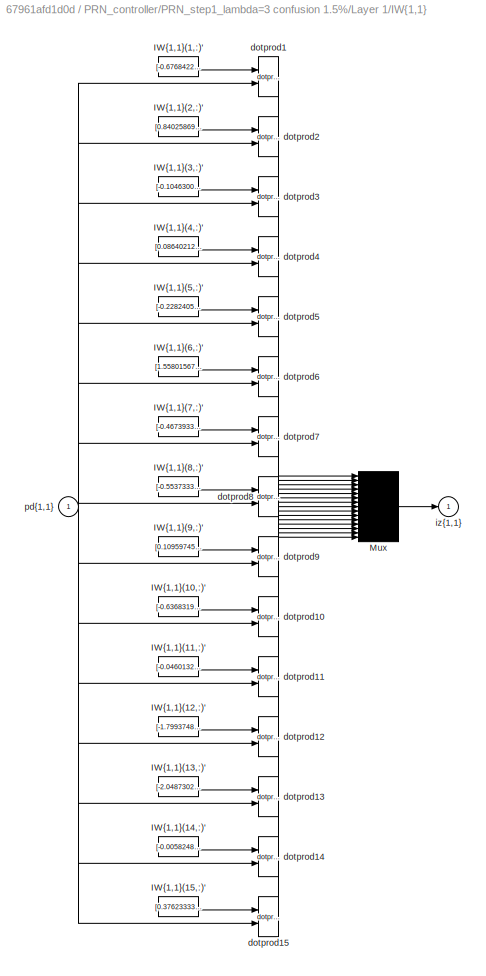
BLOCK [SubSystem] PRN_controller/PRN_step1_lambda=3 confusion 1.5%/Layer 1/IW{1,1}
  Ports = [1, 1]
  RequestExecContextInheritance = off
BLOCK [Constant] PRN_controller/PRN_step1_lambda=3 confusion 1.5%/Layer 1/IW{1,1}/IW{1,1}(1,:)'
  Value = [-0.676842238677143104297329045948572456836700439453125;-1.9888159175228456998496540109044872224330902099609375;0.73765036780827186735365330605418421328067779541015625;1.71320701226988081344870806788094341754913330078125;0.038398725205589963327401648029990610666573047637939453125;0.04866552570600853055982071282414835877716541290283203125;0.26518608289125467081248643808066844940185546875;-0.1944198...<+44ch>
BLOCK [Constant] PRN_controller/PRN_step1_lambda=3 confusion 1.5%/Layer 1/IW{1,1}/IW{1,1}(10,:)'
  Value = [-0.63683197380668221665445116741466335952281951904296875;-0.11544459149383486107343088633570005185902118682861328125;-0.36758148612573238178669043918489478528499603271484375;-0.0678774326477270262270025114048621617257595062255859375;-0.046861816789189041088103948595744441263377666473388671875;-0.0058226912142529119176259655432659201323986053466796875;-0.0269745016167453471878090454083576332777738...<+68ch>
BLOCK [Constant] PRN_controller/PRN_step1_lambda=3 confusion 1.5%/Layer 1/IW{1,1}/IW{1,1}(11,:)'
  Value = [-0.0460132314806563080811230292965774424374103546142578125;0.01473816958439077250131443719283197424374520778656005859375;0.055555128220495651747423693223026930354535579681396484375;0.049792053782768734560004730838045361451804637908935546875;0.004235491339451513854996722585610768874175846576690673828125;0.003769159624020011235823179873705157660879194736480712890625;-2.82485738553735021838519969605...<+85ch>
BLOCK [Constant] PRN_controller/PRN_step1_lambda=3 confusion 1.5%/Layer 1/IW{1,1}/IW{1,1}(12,:)'
  Value = [-1.7993748648200000861407943375525064766407012939453125;0.1476111476191077909181359473222983069717884063720703125;2.35416836327518108618050973745994269847869873046875;-0.00120452360425208466164492815408948445110581815242767333984375;0.11793391068665191878661602231659344397485256195068359375;0.00113378894210611311406389223321866666083224117755889892578125;1.7721939806664346317433000876917503774166...<+71ch>
BLOCK [Constant] PRN_controller/PRN_step1_lambda=3 confusion 1.5%/Layer 1/IW{1,1}/IW{1,1}(13,:)'
  Value = [-2.04873024967913952565368163050152361392974853515625;0.1439969197044075333025148211163468658924102783203125;2.577017004086017859521007267176173627376556396484375;0.0318978273732246353500130453539895825088024139404296875;0.11836244796372562271269401890094741247594356536865234375;0.002369781613885219191673048300117443432100117206573486328125;1.8033596226591666056293661313247866928577423095703125;-...<+56ch>
BLOCK [Constant] PRN_controller/PRN_step1_lambda=3 confusion 1.5%/Layer 1/IW{1,1}/IW{1,1}(14,:)'
  Value = [-0.005824899707417730866654270727167386212386190891265869140625;-0.00300316480099391096281191693151413346640765666961669921875;0.03114520666426491557476907701129675842821598052978515625;0.006670702704397522657397967549286477151326835155487060546875;-0.000317029194644610572660636815811585620394907891750335693359375;-0.0004181329362500792417960127078657706078956834971904754638671875;-4.569947395294...<+103ch>
BLOCK [Constant] PRN_controller/PRN_step1_lambda=3 confusion 1.5%/Layer 1/IW{1,1}/IW{1,1}(15,:)'
  Value = [0.3762333388259329058911362153594382107257843017578125;1.9877672677136974943579161845264025032520294189453125;-0.4572160922242147762517561204731464385986328125;-1.909758831917812482714680299977771937847137451171875;-0.01745565839131461849387250140352989546954631805419921875;-0.07136074826339115773077281801306526176631450653076171875;-1.0942687606048513426770796286291442811489105224609375;0.017070...<+53ch>
BLOCK [Constant] PRN_controller/PRN_step1_lambda=3 confusion 1.5%/Layer 1/IW{1,1}/IW{1,1}(2,:)'
  Value = [0.8402586946382888388740184382186271250247955322265625;2.9740480510521773993559691007249057292938232421875;-0.87581495641554429898434364076820202171802520751953125;-2.58606131308167608295889294822700321674346923828125;-0.044568205229961764535229207240263349376618862152099609375;-0.07947286454351652762451152511857799254357814788818359375;-0.41843159002174556970743424244574271142482757568359375;-0....<+56ch>
BLOCK [Constant] PRN_controller/PRN_step1_lambda=3 confusion 1.5%/Layer 1/IW{1,1}/IW{1,1}(3,:)'
  Value = [-0.10463003079453410404386914933638763613998889923095703125;-0.148811432180895708565770974018960259854793548583984375;0.3554158485937028988388419747934676706790924072265625;0.733725620377389642357002230710349977016448974609375;0.01469423798528121140327673543879427597858011722564697265625;0.04790304967176783890181468450464308261871337890625;0.2803715055990263493868042132817208766937255859375;-0.59...<+49ch>
BLOCK [Constant] PRN_controller/PRN_step1_lambda=3 confusion 1.5%/Layer 1/IW{1,1}/IW{1,1}(4,:)'
  Value = [0.08640212393146283476053071126443683169782161712646484375;-0.332422172544865890397858265714603476226329803466796875;0.134396737678882105537780944359838031232357025146484375;-0.466363177669556983051535326012526638805866241455078125;0.009933573064589286405468016027953126467764377593994140625;-0.03107822960809668300097285964511684142053127288818359375;0.118261628761713574742309162957099033519625663...<+68ch>
BLOCK [Constant] PRN_controller/PRN_step1_lambda=3 confusion 1.5%/Layer 1/IW{1,1}/IW{1,1}(5,:)'
  Value = [-0.228240514285129869609392017082427628338336944580078125;-0.11942127931433177412401391848106868565082550048828125;-0.5189150642454960493665794274420477449893951416015625;-0.2180770107122695922186039751977659761905670166015625;-0.0435788874720391683492692891377373598515987396240234375;-0.01491340110063483527513827908705934532918035984039306640625;-0.15095191620441905655525260954163968563079833984...<+59ch>
BLOCK [Constant] PRN_controller/PRN_step1_lambda=3 confusion 1.5%/Layer 1/IW{1,1}/IW{1,1}(6,:)'
  Value = [1.558015671008904146077611585496924817562103271484375;-0.1180797300911171909820751579900388605892658233642578125;-1.902660599685177533757496348698623478412628173828125;0.003977377146006866141803026692969069699756801128387451171875;-0.08348369673845212890483935552765615284442901611328125;0.0026863952881113427849368857636136453947983682155609130859375;-1.40007848327773909424820431013358756899833679...<+65ch>
BLOCK [Constant] PRN_controller/PRN_step1_lambda=3 confusion 1.5%/Layer 1/IW{1,1}/IW{1,1}(7,:)'
  Value = [-0.46739334795190135007914022935437969863414764404296875;2.178515494617806691479700020863674581050872802734375;0.6448005482874654692437843550578691065311431884765625;-1.9184457260679244061662984677241183817386627197265625;0.0294271182263212312257838476625693147070705890655517578125;-0.0623981982945895630177091106816078536212444305419921875;0.61248428221931672243982802683603949844837188720703125;0...<+56ch>
BLOCK [Constant] PRN_controller/PRN_step1_lambda=3 confusion 1.5%/Layer 1/IW{1,1}/IW{1,1}(8,:)'
  Value = [-0.5537333224702154499397011022665537893772125244140625;2.2076507516497034799840548657812178134918212890625;0.71130173728132450872152503507095389068126678466796875;-1.8325370125449389480110085060005076229572296142578125;0.032513497429587888409852070026317960582673549652099609375;-0.0567763705086160863633182316334568895399570465087890625;0.7079486893093649424457680652267299592494964599609375;-0.19...<+53ch>
BLOCK [Constant] PRN_controller/PRN_step1_lambda=3 confusion 1.5%/Layer 1/IW{1,1}/IW{1,1}(9,:)'
  Value = [0.10959745827120991046310649608130916021764278411865234375;-0.1151261666569428354645054923821589909493923187255859375;0.238238515218123503291991482910816557705402374267578125;-0.599483509913133705282461960450746119022369384765625;0.0182118939746620071840066401591684552840888500213623046875;-0.040196607461508417069584453429342829622328281402587890625;0.257225616068732787500294989513349719345569610...<+66ch>
BLOCK [Mux] PRN_controller/PRN_step1_lambda=3 confusion 1.5%/Layer 1/IW{1,1}/Mux
  Inputs = 15
  Ports = [15, 1]
BLOCK [Reference] PRN_controller/PRN_step1_lambda=3 confusion 1.5%/Layer 1/IW{1,1}/dotprod1  REF=neural/Weight Functions/dotprod
  Ports = [2, 1]
  SourceBlock = neural/Weight Functions/dotprod
  SourceProductBaseCode = NN
  SourceProductName = Deep Learning Toolbox
  SourceType = DOTPROD
BLOCK [Reference] PRN_controller/PRN_step1_lambda=3 confusion 1.5%/Layer 1/IW{1,1}/dotprod10  REF=neural/Weight Functions/dotprod
  Ports = [2, 1]
  SourceBlock = neural/Weight Functions/dotprod
  SourceProductBaseCode = NN
  SourceProductName = Deep Learning Toolbox
  SourceType = DOTPROD
BLOCK [Reference] PRN_controller/PRN_step1_lambda=3 confusion 1.5%/Layer 1/IW{1,1}/dotprod11  REF=neural/Weight Functions/dotprod
  Ports = [2, 1]
  SourceBlock = neural/Weight Functions/dotprod
  SourceProductBaseCode = NN
  SourceProductName = Deep Learning Toolbox
  SourceType = DOTPROD
BLOCK [Reference] PRN_controller/PRN_step1_lambda=3 confusion 1.5%/Layer 1/IW{1,1}/dotprod12  REF=neural/Weight Functions/dotprod
  Ports = [2, 1]
  SourceBlock = neural/Weight Functions/dotprod
  SourceProductBaseCode = NN
  SourceProductName = Deep Learning Toolbox
  SourceType = DOTPROD
BLOCK [Reference] PRN_controller/PRN_step1_lambda=3 confusion 1.5%/Layer 1/IW{1,1}/dotprod13  REF=neural/Weight Functions/dotprod
  Ports = [2, 1]
  SourceBlock = neural/Weight Functions/dotprod
  SourceProductBaseCode = NN
  SourceProductName = Deep Learning Toolbox
  SourceType = DOTPROD
BLOCK [Reference] PRN_controller/PRN_step1_lambda=3 confusion 1.5%/Layer 1/IW{1,1}/dotprod14  REF=neural/Weight Functions/dotprod
  Ports = [2, 1]
  SourceBlock = neural/Weight Functions/dotprod
  SourceProductBaseCode = NN
  SourceProductName = Deep Learning Toolbox
  SourceType = DOTPROD
BLOCK [Reference] PRN_controller/PRN_step1_lambda=3 confusion 1.5%/Layer 1/IW{1,1}/dotprod15  REF=neural/Weight Functions/dotprod
  Ports = [2, 1]
  SourceBlock = neural/Weight Functions/dotprod
  SourceProductBaseCode = NN
  SourceProductName = Deep Learning Toolbox
  SourceType = DOTPROD
BLOCK [Reference] PRN_controller/PRN_step1_lambda=3 confusion 1.5%/Layer 1/IW{1,1}/dotprod2  REF=neural/Weight Functions/dotprod
  Ports = [2, 1]
  SourceBlock = neural/Weight Functions/dotprod
  SourceProductBaseCode = NN
  SourceProductName = Deep Learning Toolbox
  SourceType = DOTPROD
BLOCK [Reference] PRN_controller/PRN_step1_lambda=3 confusion 1.5%/Layer 1/IW{1,1}/dotprod3  REF=neural/Weight Functions/dotprod
  Ports = [2, 1]
  SourceBlock = neural/Weight Functions/dotprod
  SourceProductBaseCode = NN
  SourceProductName = Deep Learning Toolbox
  SourceType = DOTPROD
BLOCK [Reference] PRN_controller/PRN_step1_lambda=3 confusion 1.5%/Layer 1/IW{1,1}/dotprod4  REF=neural/Weight Functions/dotprod
  Ports = [2, 1]
  SourceBlock = neural/Weight Functions/dotprod
  SourceProductBaseCode = NN
  SourceProductName = Deep Learning Toolbox
  SourceType = DOTPROD
BLOCK [Reference] PRN_controller/PRN_step1_lambda=3 confusion 1.5%/Layer 1/IW{1,1}/dotprod5  REF=neural/Weight Functions/dotprod
  Ports = [2, 1]
  SourceBlock = neural/Weight Functions/dotprod
  SourceProductBaseCode = NN
  SourceProductName = Deep Learning Toolbox
  SourceType = DOTPROD
BLOCK [Reference] PRN_controller/PRN_step1_lambda=3 confusion 1.5%/Layer 1/IW{1,1}/dotprod6  REF=neural/Weight Functions/dotprod
  Ports = [2, 1]
  SourceBlock = neural/Weight Functions/dotprod
  SourceProductBaseCode = NN
  SourceProductName = Deep Learning Toolbox
  SourceType = DOTPROD
BLOCK [Reference] PRN_controller/PRN_step1_lambda=3 confusion 1.5%/Layer 1/IW{1,1}/dotprod7  REF=neural/Weight Functions/dotprod
  Ports = [2, 1]
  SourceBlock = neural/Weight Functions/dotprod
  SourceProductBaseCode = NN
  SourceProductName = Deep Learning Toolbox
  SourceType = DOTPROD
BLOCK [Reference] PRN_controller/PRN_step1_lambda=3 confusion 1.5%/Layer 1/IW{1,1}/dotprod8  REF=neural/Weight Functions/dotprod
  Ports = [2, 1]
  SourceBlock = neural/Weight Functions/dotprod
  SourceProductBaseCode = NN
  SourceProductName = Deep Learning Toolbox
  SourceType = DOTPROD
BLOCK [Reference] PRN_controller/PRN_step1_lambda=3 confusion 1.5%/Layer 1/IW{1,1}/dotprod9  REF=neural/Weight Functions/dotprod
  Ports = [2, 1]
  SourceBlock = neural/Weight Functions/dotprod
  SourceProductBaseCode = NN
  SourceProductName = Deep Learning Toolbox
  SourceType = DOTPROD
BLOCK [Outport] PRN_controller/PRN_step1_lambda=3 confusion 1.5%/Layer 1/IW{1,1}/iz{1,1}
  IconDisplay = Port number
  VectorParamsAs1DForOutWhenUnconnected = off
BLOCK [Inport] PRN_controller/PRN_step1_lambda=3 confusion 1.5%/Layer 1/IW{1,1}/pd{1,1}
  IconDisplay = Port number
  PortDimensions = 8
BLOCK [Outport] PRN_controller/PRN_step1_lambda=3 confusion 1.5%/Layer 1/a{1}
  IconDisplay = Port number
  InitialOutput = [0;0;0;0;0;0;0;0;0;0;0;0;0;0;0]
  VectorParamsAs1DForOutWhenUnconnected = off
BLOCK [Constant] PRN_controller/PRN_step1_lambda=3 confusion 1.5%/Layer 1/b{1}
  Value = [-0.7221458857392770713801155579858459532260894775390625;-1.199604465485595738982738112099468708038330078125;0.52271661797309787456100593772134743630886077880859375;0.61164161258322014003141475768643431365489959716796875;0.77417735553425781613867684427532367408275604248046875;-0.18165504611167915260949712319415993988513946533203125;0.829055740349957659418578259646892547607421875;-0.801763552815466...<+422ch>
BLOCK [Sum] PRN_controller/PRN_step1_lambda=3 confusion 1.5%/Layer 1/netsum
  Inputs = 2
  Ports = [2, 1]
BLOCK [Inport] PRN_controller/PRN_step1_lambda=3 confusion 1.5%/Layer 1/p{1}
  IconDisplay = Port number
  PortDimensions = 8
BLOCK [Reference] PRN_controller/PRN_step1_lambda=3 confusion 1.5%/Layer 1/tansig  REF=neural/Transfer Functions/tansig
  Ports = [1, 1]
  SourceBlock = neural/Transfer Functions/tansig
  SourceProductBaseCode = NN
  SourceProductName = Deep Learning Toolbox
  SourceType = TANSIG
BLOCK [SubSystem] PRN_controller/PRN_step1_lambda=3 confusion 1.5%/Layer 2
  Ports = [1, 1]
  RequestExecContextInheritance = off
BLOCK [SubSystem] PRN_controller/PRN_step1_lambda=3 confusion 1.5%/Layer 2/Delays 1
  Ports = [1, 1]
  RequestExecContextInheritance = off
BLOCK [Mux] PRN_controller/PRN_step1_lambda=3 confusion 1.5%/Layer 2/Delays 1/mux
  Inputs = 1
  Ports = [1, 1]
BLOCK [Outport] PRN_controller/PRN_step1_lambda=3 confusion 1.5%/Layer 2/Delays 1/pd{2,1}
  IconDisplay = Port number
  VectorParamsAs1DForOutWhenUnconnected = off
BLOCK [Inport] PRN_controller/PRN_step1_lambda=3 confusion 1.5%/Layer 2/Delays 1/p{2}
  IconDisplay = Port number
  PortDimensions = 15
BLOCK [SubSystem] PRN_controller/PRN_step1_lambda=3 confusion 1.5%/Layer 2/LW{2,1}
  Ports = [1, 1]
  RequestExecContextInheritance = off
BLOCK [Constant] PRN_controller/PRN_step1_lambda=3 confusion 1.5%/Layer 2/LW{2,1}/IW{2,1}(1,:)'
  Value = [0.1559172505041254430668828945272252894937992095947265625;-1.0015595831774444235406917869113385677337646484375;0.66080340506745860462700647985911928117275238037109375;-0.6120871928899653813260783863370306789875030517578125;0.205693335569471280610542862632428295910358428955078125;0.460691248027044253365858139659394510090351104736328125;0.16527146808664860966331389136030338704586029052734375;-0.437...<+463ch>
BLOCK [Constant] PRN_controller/PRN_step1_lambda=3 confusion 1.5%/Layer 2/LW{2,1}/IW{2,1}(2,:)'
  Value = [-15.1524516778410234252305599511601030826568603515625;7.62661201024433399453528181766159832477569580078125;-7.08578304485774967957922854111529886722564697265625;-6.307827169387355326080069062300026416778564453125;13.276742462632324048854570719413459300994873046875;8.4202039847483973744601826183497905731201171875;-13.158769761155927113804864347912371158599853515625;-15.5715647022098817586766017484...<+387ch>
BLOCK [Constant] PRN_controller/PRN_step1_lambda=3 confusion 1.5%/Layer 2/LW{2,1}/IW{2,1}(3,:)'
  Value = [-1.485970659162996643232190763228572905063629150390625;4.40404883137724656450018301256932318210601806640625;-8.524713265715593735194488544948399066925048828125;9.5853062598504710223323854734189808368682861328125;12.68294592043289270577588467858731746673583984375;10.848054732692073542921207263134419918060302734375;10.134655139995413009046387742273509502410888671875;7.439457831378854635318020882550...<+389ch>
BLOCK [Constant] PRN_controller/PRN_step1_lambda=3 confusion 1.5%/Layer 2/LW{2,1}/IW{2,1}(4,:)'
  Value = [-5.247717865902817635515020810998976230621337890625;5.42662020212826678999817886506207287311553955078125;-5.20147797786081245163813946419395506381988525390625;15.8895682575992598373204600648023188114166259765625;-4.0853051369030755068934013252146542072296142578125;-10.18706059702028454694300307892262935638427734375;7.93839020767507275166963154333643615245819091796875;7.375953805699161591746815247...<+391ch>
BLOCK [Constant] PRN_controller/PRN_step1_lambda=3 confusion 1.5%/Layer 2/LW{2,1}/IW{2,1}(5,:)'
  Value = [11.01178735609996550692812888883054256439208984375;-9.9278819178309891668732234393246471881866455078125;8.401288431422376135060403612442314624786376953125;5.1970715821688298063918409752659499645233154296875;-12.4478749824383694289053892134688794612884521484375;-9.280564902142717897959300898946821689605712890625;13.42498613067466095571944606490433216094970703125;10.19083091942006724650582327740266...<+385ch>
BLOCK [Constant] PRN_controller/PRN_step1_lambda=3 confusion 1.5%/Layer 2/LW{2,1}/IW{2,1}(6,:)'
  Value = [4.38754988424871417151962305069901049137115478515625;-4.51435816810777179597380381892435252666473388671875;9.42502334521616802476273733191192150115966796875;-9.85131454862557376372933504171669483184814453125;-11.5816907193186384716909742564894258975982666015625;-9.2017607375453689400046641821973025798797607421875;-8.8048528080077854696128270006738603115081787109375;-6.2153351027321184218976668489...<+394ch>
BLOCK [Constant] PRN_controller/PRN_step1_lambda=3 confusion 1.5%/Layer 2/LW{2,1}/IW{2,1}(7,:)'
  Value = [6.02573566275810179604377481155097484588623046875;-5.6208227016348946136758968350477516651153564453125;3.4599191770390387290490252780728042125701904296875;-15.0713212579686217651442348142154514789581298828125;2.728270614810654581816606878419406712055206298828125;10.9215647698604758630835931398905813694000244140625;-8.4335005707785040129920162144117057323455810546875;-4.905502966107033735454479028...<+395ch>
BLOCK [Mux] PRN_controller/PRN_step1_lambda=3 confusion 1.5%/Layer 2/LW{2,1}/Mux
  Inputs = 7
  Ports = [7, 1]
BLOCK [Inport] PRN_controller/PRN_step1_lambda=3 confusion 1.5%/Layer 2/LW{2,1}/ad{2,1}
  IconDisplay = Port number
  PortDimensions = 15
BLOCK [Reference] PRN_controller/PRN_step1_lambda=3 confusion 1.5%/Layer 2/LW{2,1}/dotprod1  REF=neural/Weight Functions/dotprod
  Ports = [2, 1]
  SourceBlock = neural/Weight Functions/dotprod
  SourceProductBaseCode = NN
  SourceProductName = Deep Learning Toolbox
  SourceType = DOTPROD
BLOCK [Reference] PRN_controller/PRN_step1_lambda=3 confusion 1.5%/Layer 2/LW{2,1}/dotprod2  REF=neural/Weight Functions/dotprod
  Ports = [2, 1]
  SourceBlock = neural/Weight Functions/dotprod
  SourceProductBaseCode = NN
  SourceProductName = Deep Learning Toolbox
  SourceType = DOTPROD
BLOCK [Reference] PRN_controller/PRN_step1_lambda=3 confusion 1.5%/Layer 2/LW{2,1}/dotprod3  REF=neural/Weight Functions/dotprod
  Ports = [2, 1]
  SourceBlock = neural/Weight Functions/dotprod
  SourceProductBaseCode = NN
  SourceProductName = Deep Learning Toolbox
  SourceType = DOTPROD
BLOCK [Reference] PRN_controller/PRN_step1_lambda=3 confusion 1.5%/Layer 2/LW{2,1}/dotprod4  REF=neural/Weight Functions/dotprod
  Ports = [2, 1]
  SourceBlock = neural/Weight Functions/dotprod
  SourceProductBaseCode = NN
  SourceProductName = Deep Learning Toolbox
  SourceType = DOTPROD
BLOCK [Reference] PRN_controller/PRN_step1_lambda=3 confusion 1.5%/Layer 2/LW{2,1}/dotprod5  REF=neural/Weight Functions/dotprod
  Ports = [2, 1]
  SourceBlock = neural/Weight Functions/dotprod
  SourceProductBaseCode = NN
  SourceProductName = Deep Learning Toolbox
  SourceType = DOTPROD
BLOCK [Reference] PRN_controller/PRN_step1_lambda=3 confusion 1.5%/Layer 2/LW{2,1}/dotprod6  REF=neural/Weight Functions/dotprod
  Ports = [2, 1]
  SourceBlock = neural/Weight Functions/dotprod
  SourceProductBaseCode = NN
  SourceProductName = Deep Learning Toolbox
  SourceType = DOTPROD
BLOCK [Reference] PRN_controller/PRN_step1_lambda=3 confusion 1.5%/Layer 2/LW{2,1}/dotprod7  REF=neural/Weight Functions/dotprod
  Ports = [2, 1]
  SourceBlock = neural/Weight Functions/dotprod
  SourceProductBaseCode = NN
  SourceProductName = Deep Learning Toolbox
  SourceType = DOTPROD
BLOCK [Outport] PRN_controller/PRN_step1_lambda=3 confusion 1.5%/Layer 2/LW{2,1}/lz{2,1}
  IconDisplay = Port number
  VectorParamsAs1DForOutWhenUnconnected = off
BLOCK [Inport] PRN_controller/PRN_step1_lambda=3 confusion 1.5%/Layer 2/a{1} 
  IconDisplay = Port number
  PortDimensions = 15
BLOCK [Outport] PRN_controller/PRN_step1_lambda=3 confusion 1.5%/Layer 2/a{2}
  IconDisplay = Port number
  InitialOutput = [0;0;0;0;0;0;0]
  VectorParamsAs1DForOutWhenUnconnected = off
BLOCK [Constant] PRN_controller/PRN_step1_lambda=3 confusion 1.5%/Layer 2/b{2}
  Value = [2.597073702514751669667703026789240539073944091796875;-0.62308883553473748406759114004671573638916015625;4.08986007357030789677310167462565004825592041015625;1.6000703322948262030678279188578017055988311767578125;-4.56112691035132922223738205502741038799285888671875;-3.01236713558404378687782809720374643802642822265625;0.05208569189334534554891575908186496235430240631103515625]
BLOCK [Sum] PRN_controller/PRN_step1_lambda=3 confusion 1.5%/Layer 2/netsum
  Inputs = 2
  Ports = [2, 1]
BLOCK [Reference] PRN_controller/PRN_step1_lambda=3 confusion 1.5%/Layer 2/softmax  REF=neural/Transfer Functions/softmax
  Ports = [1, 1]
  SourceBlock = neural/Transfer Functions/softmax
  SourceProductBaseCode = NN
  SourceProductName = Deep Learning Toolbox
  SourceType = SOFTMAX
BLOCK [Outport] PRN_controller/PRN_step1_lambda=3 confusion 1.5%/Output
  IconDisplay = Port number
  InitialOutput = [0;0;0;0;0;0;0]
  VectorParamsAs1DForOutWhenUnconnected = off
BLOCK [SubSystem] PRN_controller/PRN_step1_lambda=3 confusion 1.5%/Process Input 1
  Ports = [1, 1]
  RequestExecContextInheritance = off
BLOCK [Reference] PRN_controller/PRN_step1_lambda=3 confusion 1.5%/Process Input 1/mapminmax  REF=neural/Processing Functions/mapminmax
  Ports = [1, 1]
  SourceBlock = neural/Processing Functions/mapminmax
  SourceProductBaseCode = NN
  SourceProductName = Deep Learning Toolbox
  SourceType = MAPMINMAX Preprocess
BLOCK [Outport] PRN_controller/PRN_step1_lambda=3 confusion 1.5%/Process Input 1/p
  IconDisplay = Port number
  PortDimensions = 8
  VectorParamsAs1DForOutWhenUnconnected = off
BLOCK [Inport] PRN_controller/PRN_step1_lambda=3 confusion 1.5%/Process Input 1/x
  IconDisplay = Port number
  PortDimensions = 8
BLOCK [SubSystem] PRN_controller/PRN_step1_lambda=3 confusion 1.5%/Process Output 1
  Ports = [1, 1]
  RequestExecContextInheritance = off
BLOCK [Inport] PRN_controller/PRN_step1_lambda=3 confusion 1.5%/Process Output 1/a
  IconDisplay = Port number
  PortDimensions = 7
BLOCK [Outport] PRN_controller/PRN_step1_lambda=3 confusion 1.5%/Process Output 1/y
  IconDisplay = Port number
  PortDimensions = 7
  VectorParamsAs1DForOutWhenUnconnected = off
BLOCK [Goto] PRN_controller/PRN_step1_lambda=3 confusion 1.5%/a{1}
  GotoTag = feedback1
BLOCK [SubSystem] PRN_controller/PRN_step2_lambda=3 confusion 1.9%
  Ports = [1, 1]
  RequestExecContextInheritance = off
BLOCK [From] PRN_controller/PRN_step2_lambda=3 confusion 1.9%/ a{1} 
  GotoTag = feedback1
BLOCK [Inport] PRN_controller/PRN_step2_lambda=3 confusion 1.9%/Input
  IconDisplay = Port number
  PortDimensions = 8
BLOCK [SubSystem] PRN_controller/PRN_step2_lambda=3 confusion 1.9%/Layer 1
  Ports = [1, 1]
  RequestExecContextInheritance = off
BLOCK [SubSystem] PRN_controller/PRN_step2_lambda=3 confusion 1.9%/Layer 1/Delays 1
  Ports = [1, 1]
  RequestExecContextInheritance = off
BLOCK [Mux] PRN_controller/PRN_step2_lambda=3 confusion 1.9%/Layer 1/Delays 1/mux
  Inputs = 1
  Ports = [1, 1]
BLOCK [Outport] PRN_controller/PRN_step2_lambda=3 confusion 1.9%/Layer 1/Delays 1/pd{1,1}
  IconDisplay = Port number
  VectorParamsAs1DForOutWhenUnconnected = off
BLOCK [Inport] PRN_controller/PRN_step2_lambda=3 confusion 1.9%/Layer 1/Delays 1/p{1}
  IconDisplay = Port number
  PortDimensions = 8
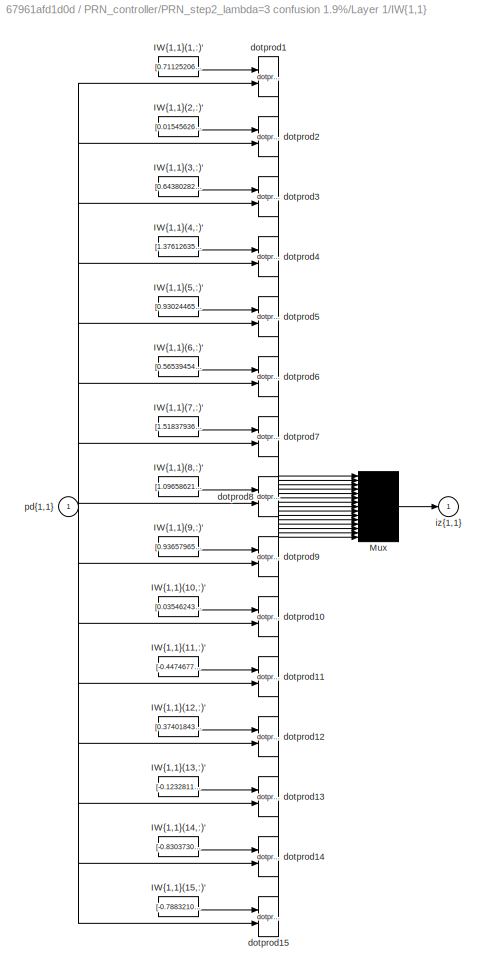
BLOCK [SubSystem] PRN_controller/PRN_step2_lambda=3 confusion 1.9%/Layer 1/IW{1,1}
  Ports = [1, 1]
  RequestExecContextInheritance = off
BLOCK [Constant] PRN_controller/PRN_step2_lambda=3 confusion 1.9%/Layer 1/IW{1,1}/IW{1,1}(1,:)'
  Value = [0.71125206776163608;-0.85288514917187452;0.0071587207321952839;0.07780252886347909;0.019012606635756477;-0.013614680255997739;-0.069832131391613622;-1.0948089958283946]
BLOCK [Constant] PRN_controller/PRN_step2_lambda=3 confusion 1.9%/Layer 1/IW{1,1}/IW{1,1}(10,:)'
  Value = [0.03546243316688262;0.050114497636815844;-0.043315143836401199;-0.011605082380962885;-0.0014431197646066379;-0.00023795559148134235;3.0182426583500912;-0.0019460234217239824]
BLOCK [Constant] PRN_controller/PRN_step2_lambda=3 confusion 1.9%/Layer 1/IW{1,1}/IW{1,1}(11,:)'
  Value = [-0.44746775746370243;1.0560876705061042;1.3162467979722379;-2.3403490618115326;0.063924736785287956;-0.11634935760368838;0.8937070059709149;-0.50767308186241744]
BLOCK [Constant] PRN_controller/PRN_step2_lambda=3 confusion 1.9%/Layer 1/IW{1,1}/IW{1,1}(12,:)'
  Value = [0.37401843920670508;0.23867168578890602;0.26183602590511312;0.111256692848292;0.03422972594808367;0.016108028897382106;0.44290502637537971;-0.32291534353080081]
BLOCK [Constant] PRN_controller/PRN_step2_lambda=3 confusion 1.9%/Layer 1/IW{1,1}/IW{1,1}(13,:)'
  Value = [-0.12328114084736591;1.081788157571097;-0.01990103953710887;0.04992472464051384;-0.0019458260264375131;0.020407418505870641;0.0035722675096690869;-1.0604675355186606]
BLOCK [Constant] PRN_controller/PRN_step2_lambda=3 confusion 1.9%/Layer 1/IW{1,1}/IW{1,1}(14,:)'
  Value = [-0.83037307056316001;-0.43923511857698522;0.13941326684986718;-0.0052428498632219253;-0.010113287197474667;-0.0098453121419038517;0.1442475335666383;-0.76955418907724282]
BLOCK [Constant] PRN_controller/PRN_step2_lambda=3 confusion 1.9%/Layer 1/IW{1,1}/IW{1,1}(15,:)'
  Value = [-0.78832104632929445;-1.6179692140628743;0.039671020306068762;0.34892638779754181;-0.019020603053967692;-0.0026026691732921425;-0.24929059065365589;-1.3440746676183155]
BLOCK [Constant] PRN_controller/PRN_step2_lambda=3 confusion 1.9%/Layer 1/IW{1,1}/IW{1,1}(2,:)'
  Value = [0.015456266583449766;-0.0032673658775119385;0.00060984340317628023;-0.0071852030230307676;0.0017168711575616127;-0.0005407601073139244;9.0340317682085409;-0.0090569713071968448]
BLOCK [Constant] PRN_controller/PRN_step2_lambda=3 confusion 1.9%/Layer 1/IW{1,1}/IW{1,1}(3,:)'
  Value = [0.64380282737395755;0.97293143655959069;-0.80175034457467709;-1.5577809819479325;-0.035880419317208145;-0.075461978707994953;-0.41881472742169623;-0.070320807355577761]
BLOCK [Constant] PRN_controller/PRN_step2_lambda=3 confusion 1.9%/Layer 1/IW{1,1}/IW{1,1}(4,:)'
  Value = [1.3761263578359606;-0.03840526144639006;-2.138542815183003;0.017529329389913643;-0.098160252766466505;0.0034320475377955569;-1.3889700012680288;-0.12733630680904179]
BLOCK [Constant] PRN_controller/PRN_step2_lambda=3 confusion 1.9%/Layer 1/IW{1,1}/IW{1,1}(5,:)'
  Value = [0.93024465808883583;0.40471102839460954;-0.26428770716202626;-0.099501036872907955;-0.0051207860865528825;0.0012322067970677126;-0.44476871749474384;-0.94727695538530554]
BLOCK [Constant] PRN_controller/PRN_step2_lambda=3 confusion 1.9%/Layer 1/IW{1,1}/IW{1,1}(6,:)'
  Value = [0.56539454863883731;-1.1874774320551229;-1.0885969535946205;1.8586077319743131;-0.055030016796456069;0.093116963016729629;-1.0560944221581388;-0.061125443920825272]
BLOCK [Constant] PRN_controller/PRN_step2_lambda=3 confusion 1.9%/Layer 1/IW{1,1}/IW{1,1}(7,:)'
  Value = [1.5183793607837035;-0.0061364020809688367;-2.3129768448154522;0.0022251656557568207;-0.10225234883324495;0.0043286135336543085;-1.3303742268661962;-0.054122934832171218]
BLOCK [Constant] PRN_controller/PRN_step2_lambda=3 confusion 1.9%/Layer 1/IW{1,1}/IW{1,1}(8,:)'
  Value = [1.0965862145088119;-2.2101634961517163;-1.6659241196152044;2.8451017612704148;-0.085530490741644913;0.14016180185412841;-0.92352907846015864;-0.38070708976844014]
BLOCK [Constant] PRN_controller/PRN_step2_lambda=3 confusion 1.9%/Layer 1/IW{1,1}/IW{1,1}(9,:)'
  Value = [0.93657965723714343;-0.41976953481154466;-0.073483944335867621;0.0090331354485076783;0.018874701687248009;-0.0070936081036290519;-0.11833182957308779;1.0684538801755077]
BLOCK [Mux] PRN_controller/PRN_step2_lambda=3 confusion 1.9%/Layer 1/IW{1,1}/Mux
  Inputs = 15
  Ports = [15, 1]
BLOCK [Reference] PRN_controller/PRN_step2_lambda=3 confusion 1.9%/Layer 1/IW{1,1}/dotprod1  REF=neural/Weight Functions/dotprod
  Ports = [2, 1]
  SourceBlock = neural/Weight Functions/dotprod
  SourceProductBaseCode = NN
  SourceProductName = Deep Learning Toolbox
  SourceType = DOTPROD
BLOCK [Reference] PRN_controller/PRN_step2_lambda=3 confusion 1.9%/Layer 1/IW{1,1}/dotprod10  REF=neural/Weight Functions/dotprod
  Ports = [2, 1]
  SourceBlock = neural/Weight Functions/dotprod
  SourceProductBaseCode = NN
  SourceProductName = Deep Learning Toolbox
  SourceType = DOTPROD
BLOCK [Reference] PRN_controller/PRN_step2_lambda=3 confusion 1.9%/Layer 1/IW{1,1}/dotprod11  REF=neural/Weight Functions/dotprod
  Ports = [2, 1]
  SourceBlock = neural/Weight Functions/dotprod
  SourceProductBaseCode = NN
  SourceProductName = Deep Learning Toolbox
  SourceType = DOTPROD
BLOCK [Reference] PRN_controller/PRN_step2_lambda=3 confusion 1.9%/Layer 1/IW{1,1}/dotprod12  REF=neural/Weight Functions/dotprod
  Ports = [2, 1]
  SourceBlock = neural/Weight Functions/dotprod
  SourceProductBaseCode = NN
  SourceProductName = Deep Learning Toolbox
  SourceType = DOTPROD
BLOCK [Reference] PRN_controller/PRN_step2_lambda=3 confusion 1.9%/Layer 1/IW{1,1}/dotprod13  REF=neural/Weight Functions/dotprod
  Ports = [2, 1]
  SourceBlock = neural/Weight Functions/dotprod
  SourceProductBaseCode = NN
  SourceProductName = Deep Learning Toolbox
  SourceType = DOTPROD
BLOCK [Reference] PRN_controller/PRN_step2_lambda=3 confusion 1.9%/Layer 1/IW{1,1}/dotprod14  REF=neural/Weight Functions/dotprod
  Ports = [2, 1]
  SourceBlock = neural/Weight Functions/dotprod
  SourceProductBaseCode = NN
  SourceProductName = Deep Learning Toolbox
  SourceType = DOTPROD
BLOCK [Reference] PRN_controller/PRN_step2_lambda=3 confusion 1.9%/Layer 1/IW{1,1}/dotprod15  REF=neural/Weight Functions/dotprod
  Ports = [2, 1]
  SourceBlock = neural/Weight Functions/dotprod
  SourceProductBaseCode = NN
  SourceProductName = Deep Learning Toolbox
  SourceType = DOTPROD
BLOCK [Reference] PRN_controller/PRN_step2_lambda=3 confusion 1.9%/Layer 1/IW{1,1}/dotprod2  REF=neural/Weight Functions/dotprod
  Ports = [2, 1]
  SourceBlock = neural/Weight Functions/dotprod
  SourceProductBaseCode = NN
  SourceProductName = Deep Learning Toolbox
  SourceType = DOTPROD
BLOCK [Reference] PRN_controller/PRN_step2_lambda=3 confusion 1.9%/Layer 1/IW{1,1}/dotprod3  REF=neural/Weight Functions/dotprod
  Ports = [2, 1]
  SourceBlock = neural/Weight Functions/dotprod
  SourceProductBaseCode = NN
  SourceProductName = Deep Learning Toolbox
  SourceType = DOTPROD
BLOCK [Reference] PRN_controller/PRN_step2_lambda=3 confusion 1.9%/Layer 1/IW{1,1}/dotprod4  REF=neural/Weight Functions/dotprod
  Ports = [2, 1]
  SourceBlock = neural/Weight Functions/dotprod
  SourceProductBaseCode = NN
  SourceProductName = Deep Learning Toolbox
  SourceType = DOTPROD
BLOCK [Reference] PRN_controller/PRN_step2_lambda=3 confusion 1.9%/Layer 1/IW{1,1}/dotprod5  REF=neural/Weight Functions/dotprod
  Ports = [2, 1]
  SourceBlock = neural/Weight Functions/dotprod
  SourceProductBaseCode = NN
  SourceProductName = Deep Learning Toolbox
  SourceType = DOTPROD
BLOCK [Reference] PRN_controller/PRN_step2_lambda=3 confusion 1.9%/Layer 1/IW{1,1}/dotprod6  REF=neural/Weight Functions/dotprod
  Ports = [2, 1]
  SourceBlock = neural/Weight Functions/dotprod
  SourceProductBaseCode = NN
  SourceProductName = Deep Learning Toolbox
  SourceType = DOTPROD
BLOCK [Reference] PRN_controller/PRN_step2_lambda=3 confusion 1.9%/Layer 1/IW{1,1}/dotprod7  REF=neural/Weight Functions/dotprod
  Ports = [2, 1]
  SourceBlock = neural/Weight Functions/dotprod
  SourceProductBaseCode = NN
  SourceProductName = Deep Learning Toolbox
  SourceType = DOTPROD
BLOCK [Reference] PRN_controller/PRN_step2_lambda=3 confusion 1.9%/Layer 1/IW{1,1}/dotprod8  REF=neural/Weight Functions/dotprod
  Ports = [2, 1]
  SourceBlock = neural/Weight Functions/dotprod
  SourceProductBaseCode = NN
  SourceProductName = Deep Learning Toolbox
  SourceType = DOTPROD
BLOCK [Reference] PRN_controller/PRN_step2_lambda=3 confusion 1.9%/Layer 1/IW{1,1}/dotprod9  REF=neural/Weight Functions/dotprod
  Ports = [2, 1]
  SourceBlock = neural/Weight Functions/dotprod
  SourceProductBaseCode = NN
  SourceProductName = Deep Learning Toolbox
  SourceType = DOTPROD
BLOCK [Outport] PRN_controller/PRN_step2_lambda=3 confusion 1.9%/Layer 1/IW{1,1}/iz{1,1}
  IconDisplay = Port number
  VectorParamsAs1DForOutWhenUnconnected = off
BLOCK [Inport] PRN_controller/PRN_step2_lambda=3 confusion 1.9%/Layer 1/IW{1,1}/pd{1,1}
  IconDisplay = Port number
  PortDimensions = 8
BLOCK [Outport] PRN_controller/PRN_step2_lambda=3 confusion 1.9%/Layer 1/a{1}
  IconDisplay = Port number
  InitialOutput = [0;0;0;0;0;0;0;0;0;0;0;0;0;0;0]
  VectorParamsAs1DForOutWhenUnconnected = off
BLOCK [Constant] PRN_controller/PRN_step2_lambda=3 confusion 1.9%/Layer 1/b{1}
  Value = [-1.6128939053422267;3.1976076569859688;0.0067583934313499528;0.97372553592362332;-1.5363007937485875;0.42972612681908529;-1.0649220147690532;-1.0570769709998438;1.6197129884227195;-0.35567401105504826;1.3257898693744659;0.48868662051951001;-1.5937580443035531;-1.5780817688755895;-2.0366814135365567]
BLOCK [Sum] PRN_controller/PRN_step2_lambda=3 confusion 1.9%/Layer 1/netsum
  Inputs = 2
  Ports = [2, 1]
BLOCK [Inport] PRN_controller/PRN_step2_lambda=3 confusion 1.9%/Layer 1/p{1}
  IconDisplay = Port number
  PortDimensions = 8
BLOCK [Reference] PRN_controller/PRN_step2_lambda=3 confusion 1.9%/Layer 1/tansig  REF=neural/Transfer Functions/tansig
  Ports = [1, 1]
  SourceBlock = neural/Transfer Functions/tansig
  SourceProductBaseCode = NN
  SourceProductName = Deep Learning Toolbox
  SourceType = TANSIG
BLOCK [SubSystem] PRN_controller/PRN_step2_lambda=3 confusion 1.9%/Layer 2
  Ports = [1, 1]
  RequestExecContextInheritance = off
BLOCK [SubSystem] PRN_controller/PRN_step2_lambda=3 confusion 1.9%/Layer 2/Delays 1
  Ports = [1, 1]
  RequestExecContextInheritance = off
BLOCK [Mux] PRN_controller/PRN_step2_lambda=3 confusion 1.9%/Layer 2/Delays 1/mux
  Inputs = 1
  Ports = [1, 1]
BLOCK [Outport] PRN_controller/PRN_step2_lambda=3 confusion 1.9%/Layer 2/Delays 1/pd{2,1}
  IconDisplay = Port number
  VectorParamsAs1DForOutWhenUnconnected = off
BLOCK [Inport] PRN_controller/PRN_step2_lambda=3 confusion 1.9%/Layer 2/Delays 1/p{2}
  IconDisplay = Port number
  PortDimensions = 15
BLOCK [SubSystem] PRN_controller/PRN_step2_lambda=3 confusion 1.9%/Layer 2/LW{2,1}
  Ports = [1, 1]
  RequestExecContextInheritance = off
BLOCK [Constant] PRN_controller/PRN_step2_lambda=3 confusion 1.9%/Layer 2/LW{2,1}/IW{2,1}(1,:)'
  Value = [0.066474590252423083;-0.0034412616767351503;-0.37319165958293343;1.1764419977197367;-0.27732414566767755;-0.18755504187632302;-0.10064127261633202;0.11292539111367998;0.40147879503618356;0.58603133580783151;0.34261734659735715;0.30819536939134612;-0.090230381852058825;0.11415244330842432;-0.26133864291819031]
BLOCK [Constant] PRN_controller/PRN_step2_lambda=3 confusion 1.9%/Layer 2/LW{2,1}/IW{2,1}(2,:)'
  Value = [5.9530354645260699;17.75333534207601;18.128177366894711;14.565544756392287;9.5993027182797697;11.783939464043424;13.835793221857063;7.1317568645439184;10.914438670207355;23.610838093800844;-5.9858825856738243;-10.137942533576156;-1.0202519496975151;-5.1497793560282172;-2.9332637749156896]
BLOCK [Constant] PRN_controller/PRN_step2_lambda=3 confusion 1.9%/Layer 2/LW{2,1}/IW{2,1}(3,:)'
  Value = [-2.0952048962921692;-3.0694786411732617;17.944276112923649;14.467584116847801;9.2711062417240786;-12.196791912696881;14.219633966707075;-7.519424420305981;0.69073610933048457;23.353446991701006;5.670721347016686;-10.391472905578643;8.1306403274154544;-9.7469529618550954;-4.4819707781664366]
BLOCK [Constant] PRN_controller/PRN_step2_lambda=3 confusion 1.9%/Layer 2/LW{2,1}/IW{2,1}(4,:)'
  Value = [-9.1217430474408072;-19.485777170075821;17.732916466462424;-13.445050222889774;-0.93914171099640209;-13.230034177367434;-12.77643934552302;-8.0579578611855904;-8.9817120201706651;0.3203156283279493;6.3280726441168902;0.84525808111484857;7.8502097070368757;-0.79050151788636092;-2.9139191053495943]
BLOCK [Constant] PRN_controller/PRN_step2_lambda=3 confusion 1.9%/Layer 2/LW{2,1}/IW{2,1}(5,:)'
  Value = [-5.4724899381100158;-17.721999953287281;-18.623931773326536;-14.302682912168084;-9.5627102314355312;-12.92541999054145;-13.61375005301349;-7.3653510436262666;-8.7129900438398522;-23.197021401789595;6.1501598395533792;9.7927464024742221;1.6570600578957595;7.1757639397598556;2.0275733754363685]
BLOCK [Constant] PRN_controller/PRN_step2_lambda=3 confusion 1.9%/Layer 2/LW{2,1}/IW{2,1}(6,:)'
  Value = [3.6273346619541211;4.0826745979056049;-17.481012650622322;-15.330224063707481;-9.411949637882465;13.353956090122617;-13.693695079389091;7.0167247289805665;0.21468769109055516;-22.654528256699948;-5.8797309123009596;9.6414044004463388;-7.9551287584777741;9.4027489151828068;3.9610334226960542]
BLOCK [Constant] PRN_controller/PRN_step2_lambda=3 confusion 1.9%/Layer 2/LW{2,1}/IW{2,1}(7,:)'
  Value = [9.7605379619054897;19.984540879681745;-17.922444696448114;13.025814783410221;1.8815194082605113;12.624804923741488;12.440235138945068;7.291655354385842;7.9211390591501472;-0.4605974539771755;-6.4216786215689474;-1.3329787298071403;-8.9207975383060809;-1.3703108927117182;3.256690924113971]
BLOCK [Mux] PRN_controller/PRN_step2_lambda=3 confusion 1.9%/Layer 2/LW{2,1}/Mux
  Inputs = 7
  Ports = [7, 1]
BLOCK [Inport] PRN_controller/PRN_step2_lambda=3 confusion 1.9%/Layer 2/LW{2,1}/ad{2,1}
  IconDisplay = Port number
  PortDimensions = 15
BLOCK [Reference] PRN_controller/PRN_step2_lambda=3 confusion 1.9%/Layer 2/LW{2,1}/dotprod1  REF=neural/Weight Functions/dotprod
  Ports = [2, 1]
  SourceBlock = neural/Weight Functions/dotprod
  SourceProductBaseCode = NN
  SourceProductName = Deep Learning Toolbox
  SourceType = DOTPROD
BLOCK [Reference] PRN_controller/PRN_step2_lambda=3 confusion 1.9%/Layer 2/LW{2,1}/dotprod2  REF=neural/Weight Functions/dotprod
  Ports = [2, 1]
  SourceBlock = neural/Weight Functions/dotprod
  SourceProductBaseCode = NN
  SourceProductName = Deep Learning Toolbox
  SourceType = DOTPROD
BLOCK [Reference] PRN_controller/PRN_step2_lambda=3 confusion 1.9%/Layer 2/LW{2,1}/dotprod3  REF=neural/Weight Functions/dotprod
  Ports = [2, 1]
  SourceBlock = neural/Weight Functions/dotprod
  SourceProductBaseCode = NN
  SourceProductName = Deep Learning Toolbox
  SourceType = DOTPROD
BLOCK [Reference] PRN_controller/PRN_step2_lambda=3 confusion 1.9%/Layer 2/LW{2,1}/dotprod4  REF=neural/Weight Functions/dotprod
  Ports = [2, 1]
  SourceBlock = neural/Weight Functions/dotprod
  SourceProductBaseCode = NN
  SourceProductName = Deep Learning Toolbox
  SourceType = DOTPROD
BLOCK [Reference] PRN_controller/PRN_step2_lambda=3 confusion 1.9%/Layer 2/LW{2,1}/dotprod5  REF=neural/Weight Functions/dotprod
  Ports = [2, 1]
  SourceBlock = neural/Weight Functions/dotprod
  SourceProductBaseCode = NN
  SourceProductName = Deep Learning Toolbox
  SourceType = DOTPROD
BLOCK [Reference] PRN_controller/PRN_step2_lambda=3 confusion 1.9%/Layer 2/LW{2,1}/dotprod6  REF=neural/Weight Functions/dotprod
  Ports = [2, 1]
  SourceBlock = neural/Weight Functions/dotprod
  SourceProductBaseCode = NN
  SourceProductName = Deep Learning Toolbox
  SourceType = DOTPROD
BLOCK [Reference] PRN_controller/PRN_step2_lambda=3 confusion 1.9%/Layer 2/LW{2,1}/dotprod7  REF=neural/Weight Functions/dotprod
  Ports = [2, 1]
  SourceBlock = neural/Weight Functions/dotprod
  SourceProductBaseCode = NN
  SourceProductName = Deep Learning Toolbox
  SourceType = DOTPROD
BLOCK [Outport] PRN_controller/PRN_step2_lambda=3 confusion 1.9%/Layer 2/LW{2,1}/lz{2,1}
  IconDisplay = Port number
  VectorParamsAs1DForOutWhenUnconnected = off
BLOCK [Inport] PRN_controller/PRN_step2_lambda=3 confusion 1.9%/Layer 2/a{1} 
  IconDisplay = Port number
  PortDimensions = 15
BLOCK [Outport] PRN_controller/PRN_step2_lambda=3 confusion 1.9%/Layer 2/a{2}
  IconDisplay = Port number
  InitialOutput = [0;0;0;0;0;0;0]
  VectorParamsAs1DForOutWhenUnconnected = off
BLOCK [Constant] PRN_controller/PRN_step2_lambda=3 confusion 1.9%/Layer 2/b{2}
  Value = [2.7897820230056589;2.3147257379648356;1.4380686310291118;0.89246397171037029;-2.7043828247712955;-1.9022304012864042;-2.2666360284346987]
BLOCK [Sum] PRN_controller/PRN_step2_lambda=3 confusion 1.9%/Layer 2/netsum
  Inputs = 2
  Ports = [2, 1]
BLOCK [Reference] PRN_controller/PRN_step2_lambda=3 confusion 1.9%/Layer 2/softmax  REF=neural/Transfer Functions/softmax
  Ports = [1, 1]
  SourceBlock = neural/Transfer Functions/softmax
  SourceProductBaseCode = NN
  SourceProductName = Deep Learning Toolbox
  SourceType = SOFTMAX
BLOCK [Outport] PRN_controller/PRN_step2_lambda=3 confusion 1.9%/Output
  IconDisplay = Port number
  InitialOutput = [0;0;0;0;0;0;0]
  VectorParamsAs1DForOutWhenUnconnected = off
BLOCK [SubSystem] PRN_controller/PRN_step2_lambda=3 confusion 1.9%/Process Input 1
  Ports = [1, 1]
  RequestExecContextInheritance = off
BLOCK [Reference] PRN_controller/PRN_step2_lambda=3 confusion 1.9%/Process Input 1/mapminmax  REF=neural/Processing Functions/mapminmax
  Ports = [1, 1]
  SourceBlock = neural/Processing Functions/mapminmax
  SourceProductBaseCode = NN
  SourceProductName = Deep Learning Toolbox
  SourceType = MAPMINMAX Preprocess
BLOCK [Outport] PRN_controller/PRN_step2_lambda=3 confusion 1.9%/Process Input 1/p
  IconDisplay = Port number
  PortDimensions = 8
  VectorParamsAs1DForOutWhenUnconnected = off
BLOCK [Inport] PRN_controller/PRN_step2_lambda=3 confusion 1.9%/Process Input 1/x
  IconDisplay = Port number
  PortDimensions = 8
BLOCK [SubSystem] PRN_controller/PRN_step2_lambda=3 confusion 1.9%/Process Output 1
  Ports = [1, 1]
  RequestExecContextInheritance = off
BLOCK [Inport] PRN_controller/PRN_step2_lambda=3 confusion 1.9%/Process Output 1/a
  IconDisplay = Port number
  PortDimensions = 7
BLOCK [Outport] PRN_controller/PRN_step2_lambda=3 confusion 1.9%/Process Output 1/y
  IconDisplay = Port number
  PortDimensions = 7
  VectorParamsAs1DForOutWhenUnconnected = off
BLOCK [Goto] PRN_controller/PRN_step2_lambda=3 confusion 1.9%/a{1}
  GotoTag = feedback1
BLOCK [SubSystem] PRN_controller/PRN_step3_lambda=3 confusion 2.8%
  Ports = [1, 1]
  RequestExecContextInheritance = off
BLOCK [From] PRN_controller/PRN_step3_lambda=3 confusion 2.8%/ a{1} 
  GotoTag = feedback1
BLOCK [Inport] PRN_controller/PRN_step3_lambda=3 confusion 2.8%/Input
  IconDisplay = Port number
  PortDimensions = 8
BLOCK [SubSystem] PRN_controller/PRN_step3_lambda=3 confusion 2.8%/Layer 1
  Ports = [1, 1]
  RequestExecContextInheritance = off
BLOCK [SubSystem] PRN_controller/PRN_step3_lambda=3 confusion 2.8%/Layer 1/Delays 1
  Ports = [1, 1]
  RequestExecContextInheritance = off
BLOCK [Mux] PRN_controller/PRN_step3_lambda=3 confusion 2.8%/Layer 1/Delays 1/mux
  Inputs = 1
  Ports = [1, 1]
BLOCK [Outport] PRN_controller/PRN_step3_lambda=3 confusion 2.8%/Layer 1/Delays 1/pd{1,1}
  IconDisplay = Port number
  VectorParamsAs1DForOutWhenUnconnected = off
BLOCK [Inport] PRN_controller/PRN_step3_lambda=3 confusion 2.8%/Layer 1/Delays 1/p{1}
  IconDisplay = Port number
  PortDimensions = 8
BLOCK [SubSystem] PRN_controller/PRN_step3_lambda=3 confusion 2.8%/Layer 1/IW{1,1}
  Ports = [1, 1]
  RequestExecContextInheritance = off
BLOCK [Constant] PRN_controller/PRN_step3_lambda=3 confusion 2.8%/Layer 1/IW{1,1}/IW{1,1}(1,:)'
  Value = [-0.676842238677143104297329045948572456836700439453125;-1.9888159175228456998496540109044872224330902099609375;0.73765036780827186735365330605418421328067779541015625;1.71320701226988081344870806788094341754913330078125;0.038398725205589963327401648029990610666573047637939453125;0.04866552570600853055982071282414835877716541290283203125;0.26518608289125467081248643808066844940185546875;-0.1944198...<+44ch>
BLOCK [Constant] PRN_controller/PRN_step3_lambda=3 confusion 2.8%/Layer 1/IW{1,1}/IW{1,1}(10,:)'
  Value = [-0.63683197380668221665445116741466335952281951904296875;-0.11544459149383486107343088633570005185902118682861328125;-0.36758148612573238178669043918489478528499603271484375;-0.0678774326477270262270025114048621617257595062255859375;-0.046861816789189041088103948595744441263377666473388671875;-0.0058226912142529119176259655432659201323986053466796875;-0.0269745016167453471878090454083576332777738...<+68ch>
BLOCK [Constant] PRN_controller/PRN_step3_lambda=3 confusion 2.8%/Layer 1/IW{1,1}/IW{1,1}(11,:)'
  Value = [-0.0460132314806563080811230292965774424374103546142578125;0.01473816958439077250131443719283197424374520778656005859375;0.055555128220495651747423693223026930354535579681396484375;0.049792053782768734560004730838045361451804637908935546875;0.004235491339451513854996722585610768874175846576690673828125;0.003769159624020011235823179873705157660879194736480712890625;-2.82485738553735021838519969605...<+85ch>
BLOCK [Constant] PRN_controller/PRN_step3_lambda=3 confusion 2.8%/Layer 1/IW{1,1}/IW{1,1}(12,:)'
  Value = [-1.7993748648200000861407943375525064766407012939453125;0.1476111476191077909181359473222983069717884063720703125;2.35416836327518108618050973745994269847869873046875;-0.00120452360425208466164492815408948445110581815242767333984375;0.11793391068665191878661602231659344397485256195068359375;0.00113378894210611311406389223321866666083224117755889892578125;1.7721939806664346317433000876917503774166...<+71ch>
BLOCK [Constant] PRN_controller/PRN_step3_lambda=3 confusion 2.8%/Layer 1/IW{1,1}/IW{1,1}(13,:)'
  Value = [-2.04873024967913952565368163050152361392974853515625;0.1439969197044075333025148211163468658924102783203125;2.577017004086017859521007267176173627376556396484375;0.0318978273732246353500130453539895825088024139404296875;0.11836244796372562271269401890094741247594356536865234375;0.002369781613885219191673048300117443432100117206573486328125;1.8033596226591666056293661313247866928577423095703125;-...<+56ch>
BLOCK [Constant] PRN_controller/PRN_step3_lambda=3 confusion 2.8%/Layer 1/IW{1,1}/IW{1,1}(14,:)'
  Value = [-0.005824899707417730866654270727167386212386190891265869140625;-0.00300316480099391096281191693151413346640765666961669921875;0.03114520666426491557476907701129675842821598052978515625;0.006670702704397522657397967549286477151326835155487060546875;-0.000317029194644610572660636815811585620394907891750335693359375;-0.0004181329362500792417960127078657706078956834971904754638671875;-4.569947395294...<+103ch>
BLOCK [Constant] PRN_controller/PRN_step3_lambda=3 confusion 2.8%/Layer 1/IW{1,1}/IW{1,1}(15,:)'
  Value = [0.3762333388259329058911362153594382107257843017578125;1.9877672677136974943579161845264025032520294189453125;-0.4572160922242147762517561204731464385986328125;-1.909758831917812482714680299977771937847137451171875;-0.01745565839131461849387250140352989546954631805419921875;-0.07136074826339115773077281801306526176631450653076171875;-1.0942687606048513426770796286291442811489105224609375;0.017070...<+53ch>
BLOCK [Constant] PRN_controller/PRN_step3_lambda=3 confusion 2.8%/Layer 1/IW{1,1}/IW{1,1}(2,:)'
  Value = [0.8402586946382888388740184382186271250247955322265625;2.9740480510521773993559691007249057292938232421875;-0.87581495641554429898434364076820202171802520751953125;-2.58606131308167608295889294822700321674346923828125;-0.044568205229961764535229207240263349376618862152099609375;-0.07947286454351652762451152511857799254357814788818359375;-0.41843159002174556970743424244574271142482757568359375;-0....<+56ch>
BLOCK [Constant] PRN_controller/PRN_step3_lambda=3 confusion 2.8%/Layer 1/IW{1,1}/IW{1,1}(3,:)'
  Value = [-0.10463003079453410404386914933638763613998889923095703125;-0.148811432180895708565770974018960259854793548583984375;0.3554158485937028988388419747934676706790924072265625;0.733725620377389642357002230710349977016448974609375;0.01469423798528121140327673543879427597858011722564697265625;0.04790304967176783890181468450464308261871337890625;0.2803715055990263493868042132817208766937255859375;-0.59...<+49ch>
BLOCK [Constant] PRN_controller/PRN_step3_lambda=3 confusion 2.8%/Layer 1/IW{1,1}/IW{1,1}(4,:)'
  Value = [0.08640212393146283476053071126443683169782161712646484375;-0.332422172544865890397858265714603476226329803466796875;0.134396737678882105537780944359838031232357025146484375;-0.466363177669556983051535326012526638805866241455078125;0.009933573064589286405468016027953126467764377593994140625;-0.03107822960809668300097285964511684142053127288818359375;0.118261628761713574742309162957099033519625663...<+68ch>
BLOCK [Constant] PRN_controller/PRN_step3_lambda=3 confusion 2.8%/Layer 1/IW{1,1}/IW{1,1}(5,:)'
  Value = [-0.228240514285129869609392017082427628338336944580078125;-0.11942127931433177412401391848106868565082550048828125;-0.5189150642454960493665794274420477449893951416015625;-0.2180770107122695922186039751977659761905670166015625;-0.0435788874720391683492692891377373598515987396240234375;-0.01491340110063483527513827908705934532918035984039306640625;-0.15095191620441905655525260954163968563079833984...<+59ch>
BLOCK [Constant] PRN_controller/PRN_step3_lambda=3 confusion 2.8%/Layer 1/IW{1,1}/IW{1,1}(6,:)'
  Value = [1.558015671008904146077611585496924817562103271484375;-0.1180797300911171909820751579900388605892658233642578125;-1.902660599685177533757496348698623478412628173828125;0.003977377146006866141803026692969069699756801128387451171875;-0.08348369673845212890483935552765615284442901611328125;0.0026863952881113427849368857636136453947983682155609130859375;-1.40007848327773909424820431013358756899833679...<+65ch>
BLOCK [Constant] PRN_controller/PRN_step3_lambda=3 confusion 2.8%/Layer 1/IW{1,1}/IW{1,1}(7,:)'
  Value = [-0.46739334795190135007914022935437969863414764404296875;2.178515494617806691479700020863674581050872802734375;0.6448005482874654692437843550578691065311431884765625;-1.9184457260679244061662984677241183817386627197265625;0.0294271182263212312257838476625693147070705890655517578125;-0.0623981982945895630177091106816078536212444305419921875;0.61248428221931672243982802683603949844837188720703125;0...<+56ch>
BLOCK [Constant] PRN_controller/PRN_step3_lambda=3 confusion 2.8%/Layer 1/IW{1,1}/IW{1,1}(8,:)'
  Value = [-0.5537333224702154499397011022665537893772125244140625;2.2076507516497034799840548657812178134918212890625;0.71130173728132450872152503507095389068126678466796875;-1.8325370125449389480110085060005076229572296142578125;0.032513497429587888409852070026317960582673549652099609375;-0.0567763705086160863633182316334568895399570465087890625;0.7079486893093649424457680652267299592494964599609375;-0.19...<+53ch>
BLOCK [Constant] PRN_controller/PRN_step3_lambda=3 confusion 2.8%/Layer 1/IW{1,1}/IW{1,1}(9,:)'
  Value = [0.10959745827120991046310649608130916021764278411865234375;-0.1151261666569428354645054923821589909493923187255859375;0.238238515218123503291991482910816557705402374267578125;-0.599483509913133705282461960450746119022369384765625;0.0182118939746620071840066401591684552840888500213623046875;-0.040196607461508417069584453429342829622328281402587890625;0.257225616068732787500294989513349719345569610...<+66ch>
BLOCK [Mux] PRN_controller/PRN_step3_lambda=3 confusion 2.8%/Layer 1/IW{1,1}/Mux
  Inputs = 15
  Ports = [15, 1]
BLOCK [Reference] PRN_controller/PRN_step3_lambda=3 confusion 2.8%/Layer 1/IW{1,1}/dotprod1  REF=neural/Weight Functions/dotprod
  Ports = [2, 1]
  SourceBlock = neural/Weight Functions/dotprod
  SourceProductBaseCode = NN
  SourceProductName = Deep Learning Toolbox
  SourceType = DOTPROD
BLOCK [Reference] PRN_controller/PRN_step3_lambda=3 confusion 2.8%/Layer 1/IW{1,1}/dotprod10  REF=neural/Weight Functions/dotprod
  Ports = [2, 1]
  SourceBlock = neural/Weight Functions/dotprod
  SourceProductBaseCode = NN
  SourceProductName = Deep Learning Toolbox
  SourceType = DOTPROD
BLOCK [Reference] PRN_controller/PRN_step3_lambda=3 confusion 2.8%/Layer 1/IW{1,1}/dotprod11  REF=neural/Weight Functions/dotprod
  Ports = [2, 1]
  SourceBlock = neural/Weight Functions/dotprod
  SourceProductBaseCode = NN
  SourceProductName = Deep Learning Toolbox
  SourceType = DOTPROD
BLOCK [Reference] PRN_controller/PRN_step3_lambda=3 confusion 2.8%/Layer 1/IW{1,1}/dotprod12  REF=neural/Weight Functions/dotprod
  Ports = [2, 1]
  SourceBlock = neural/Weight Functions/dotprod
  SourceProductBaseCode = NN
  SourceProductName = Deep Learning Toolbox
  SourceType = DOTPROD
BLOCK [Reference] PRN_controller/PRN_step3_lambda=3 confusion 2.8%/Layer 1/IW{1,1}/dotprod13  REF=neural/Weight Functions/dotprod
  Ports = [2, 1]
  SourceBlock = neural/Weight Functions/dotprod
  SourceProductBaseCode = NN
  SourceProductName = Deep Learning Toolbox
  SourceType = DOTPROD
BLOCK [Reference] PRN_controller/PRN_step3_lambda=3 confusion 2.8%/Layer 1/IW{1,1}/dotprod14  REF=neural/Weight Functions/dotprod
  Ports = [2, 1]
  SourceBlock = neural/Weight Functions/dotprod
  SourceProductBaseCode = NN
  SourceProductName = Deep Learning Toolbox
  SourceType = DOTPROD
BLOCK [Reference] PRN_controller/PRN_step3_lambda=3 confusion 2.8%/Layer 1/IW{1,1}/dotprod15  REF=neural/Weight Functions/dotprod
  Ports = [2, 1]
  SourceBlock = neural/Weight Functions/dotprod
  SourceProductBaseCode = NN
  SourceProductName = Deep Learning Toolbox
  SourceType = DOTPROD
BLOCK [Reference] PRN_controller/PRN_step3_lambda=3 confusion 2.8%/Layer 1/IW{1,1}/dotprod2  REF=neural/Weight Functions/dotprod
  Ports = [2, 1]
  SourceBlock = neural/Weight Functions/dotprod
  SourceProductBaseCode = NN
  SourceProductName = Deep Learning Toolbox
  SourceType = DOTPROD
BLOCK [Reference] PRN_controller/PRN_step3_lambda=3 confusion 2.8%/Layer 1/IW{1,1}/dotprod3  REF=neural/Weight Functions/dotprod
  Ports = [2, 1]
  SourceBlock = neural/Weight Functions/dotprod
  SourceProductBaseCode = NN
  SourceProductName = Deep Learning Toolbox
  SourceType = DOTPROD
BLOCK [Reference] PRN_controller/PRN_step3_lambda=3 confusion 2.8%/Layer 1/IW{1,1}/dotprod4  REF=neural/Weight Functions/dotprod
  Ports = [2, 1]
  SourceBlock = neural/Weight Functions/dotprod
  SourceProductBaseCode = NN
  SourceProductName = Deep Learning Toolbox
  SourceType = DOTPROD
BLOCK [Reference] PRN_controller/PRN_step3_lambda=3 confusion 2.8%/Layer 1/IW{1,1}/dotprod5  REF=neural/Weight Functions/dotprod
  Ports = [2, 1]
  SourceBlock = neural/Weight Functions/dotprod
  SourceProductBaseCode = NN
  SourceProductName = Deep Learning Toolbox
  SourceType = DOTPROD
BLOCK [Reference] PRN_controller/PRN_step3_lambda=3 confusion 2.8%/Layer 1/IW{1,1}/dotprod6  REF=neural/Weight Functions/dotprod
  Ports = [2, 1]
  SourceBlock = neural/Weight Functions/dotprod
  SourceProductBaseCode = NN
  SourceProductName = Deep Learning Toolbox
  SourceType = DOTPROD
BLOCK [Reference] PRN_controller/PRN_step3_lambda=3 confusion 2.8%/Layer 1/IW{1,1}/dotprod7  REF=neural/Weight Functions/dotprod
  Ports = [2, 1]
  SourceBlock = neural/Weight Functions/dotprod
  SourceProductBaseCode = NN
  SourceProductName = Deep Learning Toolbox
  SourceType = DOTPROD
BLOCK [Reference] PRN_controller/PRN_step3_lambda=3 confusion 2.8%/Layer 1/IW{1,1}/dotprod8  REF=neural/Weight Functions/dotprod
  Ports = [2, 1]
  SourceBlock = neural/Weight Functions/dotprod
  SourceProductBaseCode = NN
  SourceProductName = Deep Learning Toolbox
  SourceType = DOTPROD
BLOCK [Reference] PRN_controller/PRN_step3_lambda=3 confusion 2.8%/Layer 1/IW{1,1}/dotprod9  REF=neural/Weight Functions/dotprod
  Ports = [2, 1]
  SourceBlock = neural/Weight Functions/dotprod
  SourceProductBaseCode = NN
  SourceProductName = Deep Learning Toolbox
  SourceType = DOTPROD
BLOCK [Outport] PRN_controller/PRN_step3_lambda=3 confusion 2.8%/Layer 1/IW{1,1}/iz{1,1}
  IconDisplay = Port number
  VectorParamsAs1DForOutWhenUnconnected = off
BLOCK [Inport] PRN_controller/PRN_step3_lambda=3 confusion 2.8%/Layer 1/IW{1,1}/pd{1,1}
  IconDisplay = Port number
  PortDimensions = 8
BLOCK [Outport] PRN_controller/PRN_step3_lambda=3 confusion 2.8%/Layer 1/a{1}
  IconDisplay = Port number
  InitialOutput = [0;0;0;0;0;0;0;0;0;0;0;0;0;0;0]
  VectorParamsAs1DForOutWhenUnconnected = off
BLOCK [Constant] PRN_controller/PRN_step3_lambda=3 confusion 2.8%/Layer 1/b{1}
  Value = [-0.7221458857392770713801155579858459532260894775390625;-1.199604465485595738982738112099468708038330078125;0.52271661797309787456100593772134743630886077880859375;0.61164161258322014003141475768643431365489959716796875;0.77417735553425781613867684427532367408275604248046875;-0.18165504611167915260949712319415993988513946533203125;0.829055740349957659418578259646892547607421875;-0.801763552815466...<+422ch>
BLOCK [Sum] PRN_controller/PRN_step3_lambda=3 confusion 2.8%/Layer 1/netsum
  Inputs = 2
  Ports = [2, 1]
BLOCK [Inport] PRN_controller/PRN_step3_lambda=3 confusion 2.8%/Layer 1/p{1}
  IconDisplay = Port number
  PortDimensions = 8
BLOCK [Reference] PRN_controller/PRN_step3_lambda=3 confusion 2.8%/Layer 1/tansig  REF=neural/Transfer Functions/tansig
  Ports = [1, 1]
  SourceBlock = neural/Transfer Functions/tansig
  SourceProductBaseCode = NN
  SourceProductName = Deep Learning Toolbox
  SourceType = TANSIG
BLOCK [SubSystem] PRN_controller/PRN_step3_lambda=3 confusion 2.8%/Layer 2
  Ports = [1, 1]
  RequestExecContextInheritance = off
BLOCK [SubSystem] PRN_controller/PRN_step3_lambda=3 confusion 2.8%/Layer 2/Delays 1
  Ports = [1, 1]
  RequestExecContextInheritance = off
BLOCK [Mux] PRN_controller/PRN_step3_lambda=3 confusion 2.8%/Layer 2/Delays 1/mux
  Inputs = 1
  Ports = [1, 1]
BLOCK [Outport] PRN_controller/PRN_step3_lambda=3 confusion 2.8%/Layer 2/Delays 1/pd{2,1}
  IconDisplay = Port number
  VectorParamsAs1DForOutWhenUnconnected = off
BLOCK [Inport] PRN_controller/PRN_step3_lambda=3 confusion 2.8%/Layer 2/Delays 1/p{2}
  IconDisplay = Port number
  PortDimensions = 15
BLOCK [SubSystem] PRN_controller/PRN_step3_lambda=3 confusion 2.8%/Layer 2/LW{2,1}
  Ports = [1, 1]
  RequestExecContextInheritance = off
BLOCK [Constant] PRN_controller/PRN_step3_lambda=3 confusion 2.8%/Layer 2/LW{2,1}/IW{2,1}(1,:)'
  Value = [0.1559172505041254430668828945272252894937992095947265625;-1.0015595831774444235406917869113385677337646484375;0.66080340506745860462700647985911928117275238037109375;-0.6120871928899653813260783863370306789875030517578125;0.205693335569471280610542862632428295910358428955078125;0.460691248027044253365858139659394510090351104736328125;0.16527146808664860966331389136030338704586029052734375;-0.437...<+463ch>
BLOCK [Constant] PRN_controller/PRN_step3_lambda=3 confusion 2.8%/Layer 2/LW{2,1}/IW{2,1}(2,:)'
  Value = [-15.1524516778410234252305599511601030826568603515625;7.62661201024433399453528181766159832477569580078125;-7.08578304485774967957922854111529886722564697265625;-6.307827169387355326080069062300026416778564453125;13.276742462632324048854570719413459300994873046875;8.4202039847483973744601826183497905731201171875;-13.158769761155927113804864347912371158599853515625;-15.5715647022098817586766017484...<+387ch>
BLOCK [Constant] PRN_controller/PRN_step3_lambda=3 confusion 2.8%/Layer 2/LW{2,1}/IW{2,1}(3,:)'
  Value = [-1.485970659162996643232190763228572905063629150390625;4.40404883137724656450018301256932318210601806640625;-8.524713265715593735194488544948399066925048828125;9.5853062598504710223323854734189808368682861328125;12.68294592043289270577588467858731746673583984375;10.848054732692073542921207263134419918060302734375;10.134655139995413009046387742273509502410888671875;7.439457831378854635318020882550...<+389ch>
BLOCK [Constant] PRN_controller/PRN_step3_lambda=3 confusion 2.8%/Layer 2/LW{2,1}/IW{2,1}(4,:)'
  Value = [-5.247717865902817635515020810998976230621337890625;5.42662020212826678999817886506207287311553955078125;-5.20147797786081245163813946419395506381988525390625;15.8895682575992598373204600648023188114166259765625;-4.0853051369030755068934013252146542072296142578125;-10.18706059702028454694300307892262935638427734375;7.93839020767507275166963154333643615245819091796875;7.375953805699161591746815247...<+391ch>
BLOCK [Constant] PRN_controller/PRN_step3_lambda=3 confusion 2.8%/Layer 2/LW{2,1}/IW{2,1}(5,:)'
  Value = [11.01178735609996550692812888883054256439208984375;-9.9278819178309891668732234393246471881866455078125;8.401288431422376135060403612442314624786376953125;5.1970715821688298063918409752659499645233154296875;-12.4478749824383694289053892134688794612884521484375;-9.280564902142717897959300898946821689605712890625;13.42498613067466095571944606490433216094970703125;10.19083091942006724650582327740266...<+385ch>
BLOCK [Constant] PRN_controller/PRN_step3_lambda=3 confusion 2.8%/Layer 2/LW{2,1}/IW{2,1}(6,:)'
  Value = [4.38754988424871417151962305069901049137115478515625;-4.51435816810777179597380381892435252666473388671875;9.42502334521616802476273733191192150115966796875;-9.85131454862557376372933504171669483184814453125;-11.5816907193186384716909742564894258975982666015625;-9.2017607375453689400046641821973025798797607421875;-8.8048528080077854696128270006738603115081787109375;-6.2153351027321184218976668489...<+394ch>
BLOCK [Constant] PRN_controller/PRN_step3_lambda=3 confusion 2.8%/Layer 2/LW{2,1}/IW{2,1}(7,:)'
  Value = [6.02573566275810179604377481155097484588623046875;-5.6208227016348946136758968350477516651153564453125;3.4599191770390387290490252780728042125701904296875;-15.0713212579686217651442348142154514789581298828125;2.728270614810654581816606878419406712055206298828125;10.9215647698604758630835931398905813694000244140625;-8.4335005707785040129920162144117057323455810546875;-4.905502966107033735454479028...<+395ch>
BLOCK [Mux] PRN_controller/PRN_step3_lambda=3 confusion 2.8%/Layer 2/LW{2,1}/Mux
  Inputs = 7
  Ports = [7, 1]
BLOCK [Inport] PRN_controller/PRN_step3_lambda=3 confusion 2.8%/Layer 2/LW{2,1}/ad{2,1}
  IconDisplay = Port number
  PortDimensions = 15
BLOCK [Reference] PRN_controller/PRN_step3_lambda=3 confusion 2.8%/Layer 2/LW{2,1}/dotprod1  REF=neural/Weight Functions/dotprod
  Ports = [2, 1]
  SourceBlock = neural/Weight Functions/dotprod
  SourceProductBaseCode = NN
  SourceProductName = Deep Learning Toolbox
  SourceType = DOTPROD
BLOCK [Reference] PRN_controller/PRN_step3_lambda=3 confusion 2.8%/Layer 2/LW{2,1}/dotprod2  REF=neural/Weight Functions/dotprod
  Ports = [2, 1]
  SourceBlock = neural/Weight Functions/dotprod
  SourceProductBaseCode = NN
  SourceProductName = Deep Learning Toolbox
  SourceType = DOTPROD
BLOCK [Reference] PRN_controller/PRN_step3_lambda=3 confusion 2.8%/Layer 2/LW{2,1}/dotprod3  REF=neural/Weight Functions/dotprod
  Ports = [2, 1]
  SourceBlock = neural/Weight Functions/dotprod
  SourceProductBaseCode = NN
  SourceProductName = Deep Learning Toolbox
  SourceType = DOTPROD
BLOCK [Reference] PRN_controller/PRN_step3_lambda=3 confusion 2.8%/Layer 2/LW{2,1}/dotprod4  REF=neural/Weight Functions/dotprod
  Ports = [2, 1]
  SourceBlock = neural/Weight Functions/dotprod
  SourceProductBaseCode = NN
  SourceProductName = Deep Learning Toolbox
  SourceType = DOTPROD
BLOCK [Reference] PRN_controller/PRN_step3_lambda=3 confusion 2.8%/Layer 2/LW{2,1}/dotprod5  REF=neural/Weight Functions/dotprod
  Ports = [2, 1]
  SourceBlock = neural/Weight Functions/dotprod
  SourceProductBaseCode = NN
  SourceProductName = Deep Learning Toolbox
  SourceType = DOTPROD
BLOCK [Reference] PRN_controller/PRN_step3_lambda=3 confusion 2.8%/Layer 2/LW{2,1}/dotprod6  REF=neural/Weight Functions/dotprod
  Ports = [2, 1]
  SourceBlock = neural/Weight Functions/dotprod
  SourceProductBaseCode = NN
  SourceProductName = Deep Learning Toolbox
  SourceType = DOTPROD
BLOCK [Reference] PRN_controller/PRN_step3_lambda=3 confusion 2.8%/Layer 2/LW{2,1}/dotprod7  REF=neural/Weight Functions/dotprod
  Ports = [2, 1]
  SourceBlock = neural/Weight Functions/dotprod
  SourceProductBaseCode = NN
  SourceProductName = Deep Learning Toolbox
  SourceType = DOTPROD
BLOCK [Outport] PRN_controller/PRN_step3_lambda=3 confusion 2.8%/Layer 2/LW{2,1}/lz{2,1}
  IconDisplay = Port number
  VectorParamsAs1DForOutWhenUnconnected = off
BLOCK [Inport] PRN_controller/PRN_step3_lambda=3 confusion 2.8%/Layer 2/a{1} 
  IconDisplay = Port number
  PortDimensions = 15
BLOCK [Outport] PRN_controller/PRN_step3_lambda=3 confusion 2.8%/Layer 2/a{2}
  IconDisplay = Port number
  InitialOutput = [0;0;0;0;0;0;0]
  VectorParamsAs1DForOutWhenUnconnected = off
BLOCK [Constant] PRN_controller/PRN_step3_lambda=3 confusion 2.8%/Layer 2/b{2}
  Value = [2.597073702514751669667703026789240539073944091796875;-0.62308883553473748406759114004671573638916015625;4.08986007357030789677310167462565004825592041015625;1.6000703322948262030678279188578017055988311767578125;-4.56112691035132922223738205502741038799285888671875;-3.01236713558404378687782809720374643802642822265625;0.05208569189334534554891575908186496235430240631103515625]
BLOCK [Sum] PRN_controller/PRN_step3_lambda=3 confusion 2.8%/Layer 2/netsum
  Inputs = 2
  Ports = [2, 1]
BLOCK [Reference] PRN_controller/PRN_step3_lambda=3 confusion 2.8%/Layer 2/softmax  REF=neural/Transfer Functions/softmax
  Ports = [1, 1]
  SourceBlock = neural/Transfer Functions/softmax
  SourceProductBaseCode = NN
  SourceProductName = Deep Learning Toolbox
  SourceType = SOFTMAX
BLOCK [Outport] PRN_controller/PRN_step3_lambda=3 confusion 2.8%/Output
  IconDisplay = Port number
  InitialOutput = [0;0;0;0;0;0;0]
  VectorParamsAs1DForOutWhenUnconnected = off
BLOCK [SubSystem] PRN_controller/PRN_step3_lambda=3 confusion 2.8%/Process Input 1
  Ports = [1, 1]
  RequestExecContextInheritance = off
BLOCK [Reference] PRN_controller/PRN_step3_lambda=3 confusion 2.8%/Process Input 1/mapminmax  REF=neural/Processing Functions/mapminmax
  Ports = [1, 1]
  SourceBlock = neural/Processing Functions/mapminmax
  SourceProductBaseCode = NN
  SourceProductName = Deep Learning Toolbox
  SourceType = MAPMINMAX Preprocess
BLOCK [Outport] PRN_controller/PRN_step3_lambda=3 confusion 2.8%/Process Input 1/p
  IconDisplay = Port number
  PortDimensions = 8
  VectorParamsAs1DForOutWhenUnconnected = off
BLOCK [Inport] PRN_controller/PRN_step3_lambda=3 confusion 2.8%/Process Input 1/x
  IconDisplay = Port number
  PortDimensions = 8
BLOCK [SubSystem] PRN_controller/PRN_step3_lambda=3 confusion 2.8%/Process Output 1
  Ports = [1, 1]
  RequestExecContextInheritance = off
BLOCK [Inport] PRN_controller/PRN_step3_lambda=3 confusion 2.8%/Process Output 1/a
  IconDisplay = Port number
  PortDimensions = 7
BLOCK [Outport] PRN_controller/PRN_step3_lambda=3 confusion 2.8%/Process Output 1/y
  IconDisplay = Port number
  PortDimensions = 7
  VectorParamsAs1DForOutWhenUnconnected = off
BLOCK [Goto] PRN_controller/PRN_step3_lambda=3 confusion 2.8%/a{1}
  GotoTag = feedback1
BLOCK [Rounding] PRN_controller/Round
  Operator = round
BLOCK [Outport] PRN_controller/S1
  IconDisplay = Port number
  VectorParamsAs1DForOutWhenUnconnected = off
BLOCK [Outport] PRN_controller/S2
  IconDisplay = Port number
  Port = 2
  VectorParamsAs1DForOutWhenUnconnected = off
BLOCK [Outport] PRN_controller/S3
  IconDisplay = Port number
  Port = 3
  VectorParamsAs1DForOutWhenUnconnected = off
BLOCK [Saturate] PRN_controller/Saturation
  InputPortMap = u0
  LowerLimit = 0
  Ports = [1, 1]
  UpperLimit = 1
BLOCK [Scope] PRN_controller/Scope
  Floating = off
  NumInputPorts = 1
  Ports = [1]
  ScopeSpecificationString = Simulink.scopes.TimeScopeBlockCfg('CurrentConfiguration', extmgr.ConfigurationSet(extmgr.Configuration('Core','General UI',true),extmgr.Configuration('Core','Source UI',true),extmgr.Configuration('Sources','WiredSimulink',true,'DataLoggingVariableName','ScopeData1'),extmgr.Configuration('Visuals','Time Domain',true,'SerializedDisplays',{struct('MinYLimReal','-0.12498','MaxYLimReal','1.12485','YLab...<+1813ch>
BLOCK [Scope] PRN_controller/Scope1
  Floating = off
  NumInputPorts = 1
  Ports = [1]
  ScopeSpecificationString = Simulink.scopes.TimeScopeBlockCfg('CurrentConfiguration', extmgr.ConfigurationSet(extmgr.Configuration('Core','General UI',true),extmgr.Configuration('Core','Source UI',true),extmgr.Configuration('Sources','WiredSimulink',true,'DataLoggingVariableName','ScopeData2'),extmgr.Configuration('Visuals','Time Domain',true,'SerializedDisplays',{struct('MinYLimReal','-0.125','MaxYLimReal','1.125','YLabelRe...<+1522ch>
BLOCK [Inport] PRN_controller/V_meas
  IconDisplay = Port number
BLOCK [Inport] PRN_controller/i_load
  IconDisplay = Port number
  Port = 5
BLOCK [Outport] PRN_controller/sw
  IconDisplay = Port number
  Port = 4
  VectorParamsAs1DForOutWhenUnconnected = off
BLOCK [Inport] PRN_controller/v_ref
  IconDisplay = Port number
  Port = 3
BLOCK [Inport] PRN_controller/wref
  IconDisplay = Port number
  Port = 4
BLOCK [RateTransition] RT
  OutPortSampleTime = 2e-05
BLOCK [RateTransition] RT1
  OutPortSampleTime = 2e-05
BLOCK [RateTransition] RT2
  OutPortSampleTime = 2e-05
BLOCK [RateTransition] RT3
  OutPortSampleTime = 2e-05
BLOCK [RateTransition] RT4
  OutPortSampleTime = 2e-05
BLOCK [SubSystem] Voltage reference
  Ports = [0, 2]
  RequestExecContextInheritance = off
BLOCK [SubSystem] Voltage reference/AlphaBeta_abc11
  Ports = [1, 1]
  RequestExecContextInheritance = off
BLOCK [Outport] Voltage reference/AlphaBeta_abc11/AB
  IconDisplay = Port number
  VectorParamsAs1DForOutWhenUnconnected = off
BLOCK [Sum] Voltage reference/AlphaBeta_abc11/Add
  InputSameDT = off
  Inputs = +--
  OutDataTypeStr = Inherit: Inherit via internal rule
  Ports = [3, 1]
  SaturateOnIntegerOverflow = off
BLOCK [Sum] Voltage reference/AlphaBeta_abc11/Add1
  InputSameDT = off
  Inputs = +-
  OutDataTypeStr = Inherit: Inherit via internal rule
  Ports = [2, 1]
  SaturateOnIntegerOverflow = off
BLOCK [Demux] Voltage reference/AlphaBeta_abc11/Demux
  DisplayOption = bar
  Outputs = 3
  Ports = [1, 3]
BLOCK [Gain] Voltage reference/AlphaBeta_abc11/Gain
  Gain = 1/2
  OutDataTypeStr = Inherit: Inherit via internal rule
  ParamDataTypeStr = Inherit: Inherit via internal rule
  SaturateOnIntegerOverflow = off
BLOCK [Gain] Voltage reference/AlphaBeta_abc11/Gain1
  Gain = 1/2
  OutDataTypeStr = Inherit: Inherit via internal rule
  ParamDataTypeStr = Inherit: Inherit via internal rule
  SaturateOnIntegerOverflow = off
BLOCK [Gain] Voltage reference/AlphaBeta_abc11/Gain2
  Gain = sqrt(3)
  OutDataTypeStr = Inherit: Inherit via internal rule
  ParamDataTypeStr = Inherit: Inherit via internal rule
  SaturateOnIntegerOverflow = off
BLOCK [Gain] Voltage reference/AlphaBeta_abc11/Gain3
  Gain = sqrt(3)
  OutDataTypeStr = Inherit: Inherit via internal rule
  ParamDataTypeStr = Inherit: Inherit via internal rule
  SaturateOnIntegerOverflow = off
BLOCK [Gain] Voltage reference/AlphaBeta_abc11/Gain4
  Gain = 2/3
  OutDataTypeStr = Inherit: Inherit via internal rule
  ParamDataTypeStr = Inherit: Inherit via internal rule
  SaturateOnIntegerOverflow = off
BLOCK [Gain] Voltage reference/AlphaBeta_abc11/Gain5
  Gain = 2/3
  OutDataTypeStr = Inherit: Inherit via internal rule
  ParamDataTypeStr = Inherit: Inherit via internal rule
  SaturateOnIntegerOverflow = off
BLOCK [Mux] Voltage reference/AlphaBeta_abc11/Mux
  DisplayOption = bar
  Inputs = 2
  Ports = [2, 1]
BLOCK [Inport] Voltage reference/AlphaBeta_abc11/abc
  IconDisplay = Port number
BLOCK [Constant] Voltage reference/Constant
  Value = 60
BLOCK [Mux] Voltage reference/Mux12
  DisplayOption = bar
  Inputs = 3
  Ports = [3, 1]
BLOCK [Product] Voltage reference/Product
  InputSameDT = off
  OutDataTypeStr = Inherit: Inherit via internal rule
  Ports = [2, 1]
  RndMeth = Floor
  SaturateOnIntegerOverflow = off
BLOCK [SubSystem] Voltage reference/Voltage_reference_creator
  Ports = [1, 3]
  RequestExecContextInheritance = off
BLOCK [Sum] Voltage reference/Voltage_reference_creator/Add
  InputSameDT = off
  OutDataTypeStr = Inherit: Inherit via internal rule
  Ports = [2, 1]
  SaturateOnIntegerOverflow = off
BLOCK [Sum] Voltage reference/Voltage_reference_creator/Add1
  InputSameDT = off
  OutDataTypeStr = Inherit: Inherit via internal rule
  Ports = [2, 1]
  SaturateOnIntegerOverflow = off
BLOCK [Sum] Voltage reference/Voltage_reference_creator/Add2
  InputSameDT = off
  OutDataTypeStr = Inherit: Inherit via internal rule
  Ports = [2, 1]
  SaturateOnIntegerOverflow = off
BLOCK [Clock] Voltage reference/Voltage_reference_creator/Clock
BLOCK [Clock] Voltage reference/Voltage_reference_creator/Clock1
BLOCK [Clock] Voltage reference/Voltage_reference_creator/Clock2
BLOCK [Constant] Voltage reference/Voltage_reference_creator/Constant1
  Value = Vac
BLOCK [Constant] Voltage reference/Voltage_reference_creator/Constant2
  Value = 0
BLOCK [Constant] Voltage reference/Voltage_reference_creator/Constant3
  Value = Vac
BLOCK [Constant] Voltage reference/Voltage_reference_creator/Constant4
  Value = -120*pi/180
BLOCK [Constant] Voltage reference/Voltage_reference_creator/Constant5
  Value = Vac
BLOCK [Constant] Voltage reference/Voltage_reference_creator/Constant6
  Value = -240*pi/180
BLOCK [Product] Voltage reference/Voltage_reference_creator/Product
  InputSameDT = off
  OutDataTypeStr = Inherit: Inherit via internal rule
  Ports = [2, 1]
  RndMeth = Floor
  SaturateOnIntegerOverflow = off
BLOCK [Product] Voltage reference/Voltage_reference_creator/Product1
  InputSameDT = off
  OutDataTypeStr = Inherit: Inherit via internal rule
  Ports = [2, 1]
  RndMeth = Floor
  SaturateOnIntegerOverflow = off
BLOCK [Product] Voltage reference/Voltage_reference_creator/Product2
  InputSameDT = off
  OutDataTypeStr = Inherit: Inherit via internal rule
  Ports = [2, 1]
  RndMeth = Floor
  SaturateOnIntegerOverflow = off
BLOCK [Product] Voltage reference/Voltage_reference_creator/Product3
  InputSameDT = off
  OutDataTypeStr = Inherit: Inherit via internal rule
  Ports = [2, 1]
  RndMeth = Floor
  SaturateOnIntegerOverflow = off
BLOCK [Product] Voltage reference/Voltage_reference_creator/Product4
  InputSameDT = off
  OutDataTypeStr = Inherit: Inherit via internal rule
  Ports = [2, 1]
  RndMeth = Floor
  SaturateOnIntegerOverflow = off
BLOCK [Product] Voltage reference/Voltage_reference_creator/Product5
  InputSameDT = off
  OutDataTypeStr = Inherit: Inherit via internal rule
  Ports = [2, 1]
  RndMeth = Floor
  SaturateOnIntegerOverflow = off
BLOCK [Trigonometry] Voltage reference/Voltage_reference_creator/Trigonometric Function
  Ports = [1, 1]
BLOCK [Trigonometry] Voltage reference/Voltage_reference_creator/Trigonometric Function1
  Ports = [1, 1]
BLOCK [Trigonometry] Voltage reference/Voltage_reference_creator/Trigonometric Function2
  Ports = [1, 1]
BLOCK [Outport] Voltage reference/Voltage_reference_creator/va*
  IconDisplay = Port number
  VectorParamsAs1DForOutWhenUnconnected = off
BLOCK [Outport] Voltage reference/Voltage_reference_creator/vb*
  IconDisplay = Port number
  Port = 2
  VectorParamsAs1DForOutWhenUnconnected = off
BLOCK [Outport] Voltage reference/Voltage_reference_creator/vc*
  IconDisplay = Port number
  Port = 3
  VectorParamsAs1DForOutWhenUnconnected = off
BLOCK [Inport] Voltage reference/Voltage_reference_creator/wref
  IconDisplay = Port number
BLOCK [Outport] Voltage reference/Vref
  IconDisplay = Port number
  VectorParamsAs1DForOutWhenUnconnected = off
BLOCK [Constant] Voltage reference/gain
  Value = 2*pi
BLOCK [Outport] Voltage reference/wref
  IconDisplay = Port number
  Port = 2
BLOCK [Reference] powergui  REF=powerlib/powergui
  Ports = []
  Priority = 1
  SourceBlock = powerlib/powergui
  SourceProductBaseCode = PS
  SourceProductName = Simscape Electrical
  SourceType = PSB option menu block
ANNOTATION (root): Note: To change the prediction horizon just replace the PRN block inside the PRN controller
ANNOTATION PRN_controller: Note: To change the prediction horizon just replace the PRN block
LINE Avg. freq calculation/Delay1:1 -> Avg. freq calculation/MATLAB Function:1
LINE Avg. freq calculation/IIR:1 -> Avg. freq calculation/gfs2:1
NET Avg. freq calculation/In1:1 -> Avg. freq calculation/Delay1:1, Avg. freq calculation/MATLAB Function:2
LINE Avg. freq calculation/MATLAB Function:1 -> Avg. freq calculation/IIR:1
LINE Avg. freq calculation/gfs2:1 -> Avg. freq calculation/avg.sw:1
LINE Dead time delay:1 -> Inverter_LC_filter:1
LINE Inverter_LC_filter/AlphaBeta_abc1/Add1:1 -> Inverter_LC_filter/AlphaBeta_abc1/Gain4:1
LINE Inverter_LC_filter/AlphaBeta_abc1/Add:1 -> Inverter_LC_filter/AlphaBeta_abc1/Gain5:1
LINE Inverter_LC_filter/AlphaBeta_abc1/Demux:1 -> Inverter_LC_filter/AlphaBeta_abc1/Add:1
LINE Inverter_LC_filter/AlphaBeta_abc1/Demux:2 -> Inverter_LC_filter/AlphaBeta_abc1/Gain:1
LINE Inverter_LC_filter/AlphaBeta_abc1/Demux:3 -> Inverter_LC_filter/AlphaBeta_abc1/Gain1:1
NET Inverter_LC_filter/AlphaBeta_abc1/Gain1:1 -> Inverter_LC_filter/AlphaBeta_abc1/Add:3, Inverter_LC_filter/AlphaBeta_abc1/Gain2:1
LINE Inverter_LC_filter/AlphaBeta_abc1/Gain2:1 -> Inverter_LC_filter/AlphaBeta_abc1/Add1:2
LINE Inverter_LC_filter/AlphaBeta_abc1/Gain3:1 -> Inverter_LC_filter/AlphaBeta_abc1/Add1:1
LINE Inverter_LC_filter/AlphaBeta_abc1/Gain4:1 -> Inverter_LC_filter/AlphaBeta_abc1/Mux:2
LINE Inverter_LC_filter/AlphaBeta_abc1/Gain5:1 -> Inverter_LC_filter/AlphaBeta_abc1/Mux:1
NET Inverter_LC_filter/AlphaBeta_abc1/Gain:1 -> Inverter_LC_filter/AlphaBeta_abc1/Add:2, Inverter_LC_filter/AlphaBeta_abc1/Gain3:1
LINE Inverter_LC_filter/AlphaBeta_abc1/Mux:1 -> Inverter_LC_filter/AlphaBeta_abc1/AB:1
LINE Inverter_LC_filter/AlphaBeta_abc1/abc:1 -> Inverter_LC_filter/AlphaBeta_abc1/Demux:1
LINE Inverter_LC_filter/AlphaBeta_abc11/Add1:1 -> Inverter_LC_filter/AlphaBeta_abc11/Gain4:1
LINE Inverter_LC_filter/AlphaBeta_abc11/Add:1 -> Inverter_LC_filter/AlphaBeta_abc11/Gain5:1
LINE Inverter_LC_filter/AlphaBeta_abc11/Demux:1 -> Inverter_LC_filter/AlphaBeta_abc11/Add:1
LINE Inverter_LC_filter/AlphaBeta_abc11/Demux:2 -> Inverter_LC_filter/AlphaBeta_abc11/Gain:1
LINE Inverter_LC_filter/AlphaBeta_abc11/Demux:3 -> Inverter_LC_filter/AlphaBeta_abc11/Gain1:1
NET Inverter_LC_filter/AlphaBeta_abc11/Gain1:1 -> Inverter_LC_filter/AlphaBeta_abc11/Add:3, Inverter_LC_filter/AlphaBeta_abc11/Gain2:1
LINE Inverter_LC_filter/AlphaBeta_abc11/Gain2:1 -> Inverter_LC_filter/AlphaBeta_abc11/Add1:2
LINE Inverter_LC_filter/AlphaBeta_abc11/Gain3:1 -> Inverter_LC_filter/AlphaBeta_abc11/Add1:1
LINE Inverter_LC_filter/AlphaBeta_abc11/Gain4:1 -> Inverter_LC_filter/AlphaBeta_abc11/Mux:2
LINE Inverter_LC_filter/AlphaBeta_abc11/Gain5:1 -> Inverter_LC_filter/AlphaBeta_abc11/Mux:1
NET Inverter_LC_filter/AlphaBeta_abc11/Gain:1 -> Inverter_LC_filter/AlphaBeta_abc11/Add:2, Inverter_LC_filter/AlphaBeta_abc11/Gain3:1
LINE Inverter_LC_filter/AlphaBeta_abc11/Mux:1 -> Inverter_LC_filter/AlphaBeta_abc11/AB:1
LINE Inverter_LC_filter/AlphaBeta_abc11/abc:1 -> Inverter_LC_filter/AlphaBeta_abc11/Demux:1
LINE Inverter_LC_filter/AlphaBeta_abc11:1 -> Inverter_LC_filter/i_L:1
LINE Inverter_LC_filter/AlphaBeta_abc12/Add1:1 -> Inverter_LC_filter/AlphaBeta_abc12/Gain4:1
LINE Inverter_LC_filter/AlphaBeta_abc12/Add:1 -> Inverter_LC_filter/AlphaBeta_abc12/Gain5:1
LINE Inverter_LC_filter/AlphaBeta_abc12/Demux:1 -> Inverter_LC_filter/AlphaBeta_abc12/Add:1
LINE Inverter_LC_filter/AlphaBeta_abc12/Demux:2 -> Inverter_LC_filter/AlphaBeta_abc12/Gain:1
LINE Inverter_LC_filter/AlphaBeta_abc12/Demux:3 -> Inverter_LC_filter/AlphaBeta_abc12/Gain1:1
NET Inverter_LC_filter/AlphaBeta_abc12/Gain1:1 -> Inverter_LC_filter/AlphaBeta_abc12/Add:3, Inverter_LC_filter/AlphaBeta_abc12/Gain2:1
LINE Inverter_LC_filter/AlphaBeta_abc12/Gain2:1 -> Inverter_LC_filter/AlphaBeta_abc12/Add1:2
LINE Inverter_LC_filter/AlphaBeta_abc12/Gain3:1 -> Inverter_LC_filter/AlphaBeta_abc12/Add1:1
LINE Inverter_LC_filter/AlphaBeta_abc12/Gain4:1 -> Inverter_LC_filter/AlphaBeta_abc12/Mux:2
LINE Inverter_LC_filter/AlphaBeta_abc12/Gain5:1 -> Inverter_LC_filter/AlphaBeta_abc12/Mux:1
NET Inverter_LC_filter/AlphaBeta_abc12/Gain:1 -> Inverter_LC_filter/AlphaBeta_abc12/Add:2, Inverter_LC_filter/AlphaBeta_abc12/Gain3:1
LINE Inverter_LC_filter/AlphaBeta_abc12/Mux:1 -> Inverter_LC_filter/AlphaBeta_abc12/AB:1
LINE Inverter_LC_filter/AlphaBeta_abc12/abc:1 -> Inverter_LC_filter/AlphaBeta_abc12/Demux:1
LINE Inverter_LC_filter/AlphaBeta_abc12:1 -> Inverter_LC_filter/i_load:1
LINE Inverter_LC_filter/AlphaBeta_abc1:1 -> Inverter_LC_filter/v_out:1
NET Inverter_LC_filter/S1:1 -> Inverter_LC_filter/IGBT//Diode:1, Inverter_LC_filter/Subsystem3:1
NET Inverter_LC_filter/S2:1 -> Inverter_LC_filter/IGBT//Diode1:1, Inverter_LC_filter/Subsystem4:1
NET Inverter_LC_filter/S3:1 -> Inverter_LC_filter/IGBT//Diode2:1, Inverter_LC_filter/Subsystem5:1
LINE Inverter_LC_filter/Scope/ InputMux /Convert1:1 -> Inverter_LC_filter/Scope/ InputMux /Mux:1
LINE Inverter_LC_filter/Scope/ InputMux /In1:1 -> Inverter_LC_filter/Scope/ InputMux /Convert1:1
LINE Inverter_LC_filter/Scope/ InputMux /Mux:1 -> Inverter_LC_filter/Scope/ InputMux /Out:1
LINE Inverter_LC_filter/Scope/ InputMux :1 -> Inverter_LC_filter/Scope/ S-Function :1
LINE Inverter_LC_filter/Scope/1:1 -> Inverter_LC_filter/Scope/ InputMux :1
LINE Inverter_LC_filter/Subsystem3/Abs:1 -> Inverter_LC_filter/Subsystem3/Out1:1
LINE Inverter_LC_filter/Subsystem3/Add:1 -> Inverter_LC_filter/Subsystem3/Abs:1
LINE Inverter_LC_filter/Subsystem3/Constant:1 -> Inverter_LC_filter/Subsystem3/Add:2
LINE Inverter_LC_filter/Subsystem3/In1:1 -> Inverter_LC_filter/Subsystem3/Add:1
LINE Inverter_LC_filter/Subsystem3:1 -> Inverter_LC_filter/IGBT//Diode5:1
LINE Inverter_LC_filter/Subsystem4/Abs:1 -> Inverter_LC_filter/Subsystem4/Out1:1
LINE Inverter_LC_filter/Subsystem4/Add:1 -> Inverter_LC_filter/Subsystem4/Abs:1
LINE Inverter_LC_filter/Subsystem4/Constant:1 -> Inverter_LC_filter/Subsystem4/Add:2
LINE Inverter_LC_filter/Subsystem4/In1:1 -> Inverter_LC_filter/Subsystem4/Add:1
LINE Inverter_LC_filter/Subsystem4:1 -> Inverter_LC_filter/IGBT//Diode4:1
LINE Inverter_LC_filter/Subsystem5/Abs:1 -> Inverter_LC_filter/Subsystem5/Out1:1
LINE Inverter_LC_filter/Subsystem5/Add:1 -> Inverter_LC_filter/Subsystem5/Abs:1
LINE Inverter_LC_filter/Subsystem5/Constant:1 -> Inverter_LC_filter/Subsystem5/Add:2
LINE Inverter_LC_filter/Subsystem5/In1:1 -> Inverter_LC_filter/Subsystem5/Add:1
LINE Inverter_LC_filter/Subsystem5:1 -> Inverter_LC_filter/IGBT//Diode3:1
LINE Inverter_LC_filter/Three-Phase V-I Measurement1:1 -> Inverter_LC_filter/AlphaBeta_abc1:1
LINE Inverter_LC_filter/Three-Phase V-I Measurement1:2 -> Inverter_LC_filter/AlphaBeta_abc12:1
LINE Inverter_LC_filter/Three-Phase V-I Measurement2:1 -> Inverter_LC_filter/Terminator6:1
LINE Inverter_LC_filter/Three-Phase V-I Measurement2:2 -> Inverter_LC_filter/AlphaBeta_abc11:1
LINE Inverter_LC_filter/Three-Phase V-I Measurement3:1 -> Inverter_LC_filter/Scope:1
LINE Inverter_LC_filter/Three-Phase V-I Measurement3:2 -> Inverter_LC_filter/Terminator8:1
NET Inverter_LC_filter:1 -> Mux2:1, RT:1
LINE Inverter_LC_filter:2 -> RT1:1
LINE Inverter_LC_filter:3 -> RT4:1
LINE Linear Load/Step:1 -> Linear Load/Three-Phase Breaker:1
LINE Mux2:1 -> Measured capacitor voltage and reference :1
LINE On Delay1:1 -> Inverter_LC_filter:2
LINE On Delay2:1 -> Inverter_LC_filter:3
LINE PRN_controller/ :1 -> PRN_controller/Avg. freq calculation:1
LINE PRN_controller/Avg. freq calculation/Delay1:1 -> PRN_controller/Avg. freq calculation/MATLAB Function:1
LINE PRN_controller/Avg. freq calculation/IIR:1 -> PRN_controller/Avg. freq calculation/gfs2:1
NET PRN_controller/Avg. freq calculation/In1:1 -> PRN_controller/Avg. freq calculation/Delay1:1, PRN_controller/Avg. freq calculation/MATLAB Function:2
LINE PRN_controller/Avg. freq calculation/MATLAB Function:1 -> PRN_controller/Avg. freq calculation/IIR:1
LINE PRN_controller/Avg. freq calculation/gfs2:1 -> PRN_controller/Avg. freq calculation/avg.sw:1
LINE PRN_controller/Constant1:1 -> PRN_controller/MATLAB Function1:4
LINE PRN_controller/Constant2:1 -> PRN_controller/MATLAB Function1:3
LINE PRN_controller/Constant3:1 -> PRN_controller/MATLAB Function1:5
LINE PRN_controller/Constant:1 -> PRN_controller/MATLAB Function1:2
LINE PRN_controller/Delay:1 -> PRN_controller/Input data vector generation:9
LINE PRN_controller/Demux1:1 -> PRN_controller/Input data vector generation:1
LINE PRN_controller/Demux1:2 -> PRN_controller/Input data vector generation:2
LINE PRN_controller/Demux2:1 -> PRN_controller/Input data vector generation:3
LINE PRN_controller/Demux2:2 -> PRN_controller/Input data vector generation:4
LINE PRN_controller/Demux3:1 -> PRN_controller/Input data vector generation:5
LINE PRN_controller/Demux3:2 -> PRN_controller/Input data vector generation:6
LINE PRN_controller/Demux4:1 -> PRN_controller/Input data vector generation:7
LINE PRN_controller/Demux4:2 -> PRN_controller/Input data vector generation:8
LINE PRN_controller/Demux:1 -> PRN_controller/S1:1
LINE PRN_controller/Demux:2 -> PRN_controller/S2:1
LINE PRN_controller/Demux:3 -> PRN_controller/S3:1
LINE PRN_controller/I_meas:1 -> PRN_controller/Demux2:1
LINE PRN_controller/Input data vector generation:1 -> PRN_controller/PRN_step1_lambda=1 confusion 2.8% *presented in paper:1
LINE PRN_controller/Input data vector generation:2 -> PRN_controller/MATLAB Function1:1
NET PRN_controller/MATLAB Function1:1 -> PRN_controller/Demux:1, PRN_controller/sw:1
LINE PRN_controller/MATLAB Function1:2 -> PRN_controller/Delay:1
LINE PRN_controller/PRN_step1_lambda=1 confusion 2.8% *presented in paper/ a{1} :1 -> PRN_controller/PRN_step1_lambda=1 confusion 2.8% *presented in paper/Layer 2:1
LINE PRN_controller/PRN_step1_lambda=1 confusion 2.8% *presented in paper/Input:1 -> PRN_controller/PRN_step1_lambda=1 confusion 2.8% *presented in paper/Process Input 1:1
LINE PRN_controller/PRN_step1_lambda=1 confusion 2.8% *presented in paper/Layer 1/Delays 1/mux:1 -> PRN_controller/PRN_step1_lambda=1 confusion 2.8% *presented in paper/Layer 1/Delays 1/pd{1,1}:1
LINE PRN_controller/PRN_step1_lambda=1 confusion 2.8% *presented in paper/Layer 1/Delays 1/p{1}:1 -> PRN_controller/PRN_step1_lambda=1 confusion 2.8% *presented in paper/Layer 1/Delays 1/mux:1
LINE PRN_controller/PRN_step1_lambda=1 confusion 2.8% *presented in paper/Layer 1/Delays 1:1 -> PRN_controller/PRN_step1_lambda=1 confusion 2.8% *presented in paper/Layer 1/IW{1,1}:1
LINE PRN_controller/PRN_step1_lambda=1 confusion 2.8% *presented in paper/Layer 1/IW{1,1}/IW{1,1}(1,:)':1 -> PRN_controller/PRN_step1_lambda=1 confusion 2.8% *presented in paper/Layer 1/IW{1,1}/dotprod1:1
LINE PRN_controller/PRN_step1_lambda=1 confusion 2.8% *presented in paper/Layer 1/IW{1,1}/IW{1,1}(10,:)':1 -> PRN_controller/PRN_step1_lambda=1 confusion 2.8% *presented in paper/Layer 1/IW{1,1}/dotprod10:1
LINE PRN_controller/PRN_step1_lambda=1 confusion 2.8% *presented in paper/Layer 1/IW{1,1}/IW{1,1}(2,:)':1 -> PRN_controller/PRN_step1_lambda=1 confusion 2.8% *presented in paper/Layer 1/IW{1,1}/dotprod2:1
LINE PRN_controller/PRN_step1_lambda=1 confusion 2.8% *presented in paper/Layer 1/IW{1,1}/IW{1,1}(3,:)':1 -> PRN_controller/PRN_step1_lambda=1 confusion 2.8% *presented in paper/Layer 1/IW{1,1}/dotprod3:1
LINE PRN_controller/PRN_step1_lambda=1 confusion 2.8% *presented in paper/Layer 1/IW{1,1}/IW{1,1}(4,:)':1 -> PRN_controller/PRN_step1_lambda=1 confusion 2.8% *presented in paper/Layer 1/IW{1,1}/dotprod4:1
LINE PRN_controller/PRN_step1_lambda=1 confusion 2.8% *presented in paper/Layer 1/IW{1,1}/IW{1,1}(5,:)':1 -> PRN_controller/PRN_step1_lambda=1 confusion 2.8% *presented in paper/Layer 1/IW{1,1}/dotprod5:1
LINE PRN_controller/PRN_step1_lambda=1 confusion 2.8% *presented in paper/Layer 1/IW{1,1}/IW{1,1}(6,:)':1 -> PRN_controller/PRN_step1_lambda=1 confusion 2.8% *presented in paper/Layer 1/IW{1,1}/dotprod6:1
LINE PRN_controller/PRN_step1_lambda=1 confusion 2.8% *presented in paper/Layer 1/IW{1,1}/IW{1,1}(7,:)':1 -> PRN_controller/PRN_step1_lambda=1 confusion 2.8% *presented in paper/Layer 1/IW{1,1}/dotprod7:1
LINE PRN_controller/PRN_step1_lambda=1 confusion 2.8% *presented in paper/Layer 1/IW{1,1}/IW{1,1}(8,:)':1 -> PRN_controller/PRN_step1_lambda=1 confusion 2.8% *presented in paper/Layer 1/IW{1,1}/dotprod8:1
LINE PRN_controller/PRN_step1_lambda=1 confusion 2.8% *presented in paper/Layer 1/IW{1,1}/IW{1,1}(9,:)':1 -> PRN_controller/PRN_step1_lambda=1 confusion 2.8% *presented in paper/Layer 1/IW{1,1}/dotprod9:1
LINE PRN_controller/PRN_step1_lambda=1 confusion 2.8% *presented in paper/Layer 1/IW{1,1}/Mux:1 -> PRN_controller/PRN_step1_lambda=1 confusion 2.8% *presented in paper/Layer 1/IW{1,1}/iz{1,1}:1
LINE PRN_controller/PRN_step1_lambda=1 confusion 2.8% *presented in paper/Layer 1/IW{1,1}/dotprod10:1 -> PRN_controller/PRN_step1_lambda=1 confusion 2.8% *presented in paper/Layer 1/IW{1,1}/Mux:10
LINE PRN_controller/PRN_step1_lambda=1 confusion 2.8% *presented in paper/Layer 1/IW{1,1}/dotprod1:1 -> PRN_controller/PRN_step1_lambda=1 confusion 2.8% *presented in paper/Layer 1/IW{1,1}/Mux:1
LINE PRN_controller/PRN_step1_lambda=1 confusion 2.8% *presented in paper/Layer 1/IW{1,1}/dotprod2:1 -> PRN_controller/PRN_step1_lambda=1 confusion 2.8% *presented in paper/Layer 1/IW{1,1}/Mux:2
LINE PRN_controller/PRN_step1_lambda=1 confusion 2.8% *presented in paper/Layer 1/IW{1,1}/dotprod3:1 -> PRN_controller/PRN_step1_lambda=1 confusion 2.8% *presented in paper/Layer 1/IW{1,1}/Mux:3
LINE PRN_controller/PRN_step1_lambda=1 confusion 2.8% *presented in paper/Layer 1/IW{1,1}/dotprod4:1 -> PRN_controller/PRN_step1_lambda=1 confusion 2.8% *presented in paper/Layer 1/IW{1,1}/Mux:4
LINE PRN_controller/PRN_step1_lambda=1 confusion 2.8% *presented in paper/Layer 1/IW{1,1}/dotprod5:1 -> PRN_controller/PRN_step1_lambda=1 confusion 2.8% *presented in paper/Layer 1/IW{1,1}/Mux:5
LINE PRN_controller/PRN_step1_lambda=1 confusion 2.8% *presented in paper/Layer 1/IW{1,1}/dotprod6:1 -> PRN_controller/PRN_step1_lambda=1 confusion 2.8% *presented in paper/Layer 1/IW{1,1}/Mux:6
LINE PRN_controller/PRN_step1_lambda=1 confusion 2.8% *presented in paper/Layer 1/IW{1,1}/dotprod7:1 -> PRN_controller/PRN_step1_lambda=1 confusion 2.8% *presented in paper/Layer 1/IW{1,1}/Mux:7
LINE PRN_controller/PRN_step1_lambda=1 confusion 2.8% *presented in paper/Layer 1/IW{1,1}/dotprod8:1 -> PRN_controller/PRN_step1_lambda=1 confusion 2.8% *presented in paper/Layer 1/IW{1,1}/Mux:8
LINE PRN_controller/PRN_step1_lambda=1 confusion 2.8% *presented in paper/Layer 1/IW{1,1}/dotprod9:1 -> PRN_controller/PRN_step1_lambda=1 confusion 2.8% *presented in paper/Layer 1/IW{1,1}/Mux:9
NET PRN_controller/PRN_step1_lambda=1 confusion 2.8% *presented in paper/Layer 1/IW{1,1}/pd{1,1}:1 -> PRN_controller/PRN_step1_lambda=1 confusion 2.8% *presented in paper/Layer 1/IW{1,1}/dotprod10:2, PRN_controller/PRN_step1_lambda=1 confusion 2.8% *presented in paper/Layer 1/IW{1,1}/dotprod1:2, PRN_controller/PRN_step1_lambda=1 confusion 2.8% *presented in paper/Layer 1/IW{1,1}/dotprod2:2, PRN_controller/PRN_step1_lambda=1 confusion 2.8% *presented in paper/Layer 1/IW{1,1}/dotprod3:2, PRN_controller/PRN_step1_lambda=1 confusion 2.8% *presented in paper/Layer 1/IW{1,1}/dotprod4:2, PRN_controller/PRN_step1_lambda=1 confusion 2.8% *presented in paper/Layer 1/IW{1,1}/dotprod5:2, PRN_controller/PRN_step1_lambda=1 confusion 2.8% *presented in paper/Layer 1/IW{1,1}/dotprod6:2, PRN_controller/PRN_step1_lambda=1 confusion 2.8% *presented in paper/Layer 1/IW{1,1}/dotprod7:2, PRN_controller/PRN_step1_lambda=1 confusion 2.8% *presented in paper/Layer 1/IW{1,1}/dotprod8:2, PRN_controller/PRN_step1_lambda=1 confusion 2.8% *presented in paper/Layer 1/IW{1,1}/dotprod9:2
LINE PRN_controller/PRN_step1_lambda=1 confusion 2.8% *presented in paper/Layer 1/IW{1,1}:1 -> PRN_controller/PRN_step1_lambda=1 confusion 2.8% *presented in paper/Layer 1/netsum:1
LINE PRN_controller/PRN_step1_lambda=1 confusion 2.8% *presented in paper/Layer 1/b{1}:1 -> PRN_controller/PRN_step1_lambda=1 confusion 2.8% *presented in paper/Layer 1/netsum:2
LINE PRN_controller/PRN_step1_lambda=1 confusion 2.8% *presented in paper/Layer 1/netsum:1 -> PRN_controller/PRN_step1_lambda=1 confusion 2.8% *presented in paper/Layer 1/tansig:1
LINE PRN_controller/PRN_step1_lambda=1 confusion 2.8% *presented in paper/Layer 1/p{1}:1 -> PRN_controller/PRN_step1_lambda=1 confusion 2.8% *presented in paper/Layer 1/Delays 1:1
LINE PRN_controller/PRN_step1_lambda=1 confusion 2.8% *presented in paper/Layer 1/tansig:1 -> PRN_controller/PRN_step1_lambda=1 confusion 2.8% *presented in paper/Layer 1/a{1}:1
LINE PRN_controller/PRN_step1_lambda=1 confusion 2.8% *presented in paper/Layer 1:1 -> PRN_controller/PRN_step1_lambda=1 confusion 2.8% *presented in paper/a{1}:1
LINE PRN_controller/PRN_step1_lambda=1 confusion 2.8% *presented in paper/Layer 2/Delays 1/mux:1 -> PRN_controller/PRN_step1_lambda=1 confusion 2.8% *presented in paper/Layer 2/Delays 1/pd{2,1}:1
LINE PRN_controller/PRN_step1_lambda=1 confusion 2.8% *presented in paper/Layer 2/Delays 1/p{2}:1 -> PRN_controller/PRN_step1_lambda=1 confusion 2.8% *presented in paper/Layer 2/Delays 1/mux:1
LINE PRN_controller/PRN_step1_lambda=1 confusion 2.8% *presented in paper/Layer 2/Delays 1:1 -> PRN_controller/PRN_step1_lambda=1 confusion 2.8% *presented in paper/Layer 2/LW{2,1}:1
LINE PRN_controller/PRN_step1_lambda=1 confusion 2.8% *presented in paper/Layer 2/LW{2,1}/IW{2,1}(1,:)':1 -> PRN_controller/PRN_step1_lambda=1 confusion 2.8% *presented in paper/Layer 2/LW{2,1}/dotprod1:1
LINE PRN_controller/PRN_step1_lambda=1 confusion 2.8% *presented in paper/Layer 2/LW{2,1}/IW{2,1}(2,:)':1 -> PRN_controller/PRN_step1_lambda=1 confusion 2.8% *presented in paper/Layer 2/LW{2,1}/dotprod2:1
LINE PRN_controller/PRN_step1_lambda=1 confusion 2.8% *presented in paper/Layer 2/LW{2,1}/IW{2,1}(3,:)':1 -> PRN_controller/PRN_step1_lambda=1 confusion 2.8% *presented in paper/Layer 2/LW{2,1}/dotprod3:1
LINE PRN_controller/PRN_step1_lambda=1 confusion 2.8% *presented in paper/Layer 2/LW{2,1}/IW{2,1}(4,:)':1 -> PRN_controller/PRN_step1_lambda=1 confusion 2.8% *presented in paper/Layer 2/LW{2,1}/dotprod4:1
LINE PRN_controller/PRN_step1_lambda=1 confusion 2.8% *presented in paper/Layer 2/LW{2,1}/IW{2,1}(5,:)':1 -> PRN_controller/PRN_step1_lambda=1 confusion 2.8% *presented in paper/Layer 2/LW{2,1}/dotprod5:1
LINE PRN_controller/PRN_step1_lambda=1 confusion 2.8% *presented in paper/Layer 2/LW{2,1}/IW{2,1}(6,:)':1 -> PRN_controller/PRN_step1_lambda=1 confusion 2.8% *presented in paper/Layer 2/LW{2,1}/dotprod6:1
LINE PRN_controller/PRN_step1_lambda=1 confusion 2.8% *presented in paper/Layer 2/LW{2,1}/IW{2,1}(7,:)':1 -> PRN_controller/PRN_step1_lambda=1 confusion 2.8% *presented in paper/Layer 2/LW{2,1}/dotprod7:1
LINE PRN_controller/PRN_step1_lambda=1 confusion 2.8% *presented in paper/Layer 2/LW{2,1}/Mux:1 -> PRN_controller/PRN_step1_lambda=1 confusion 2.8% *presented in paper/Layer 2/LW{2,1}/lz{2,1}:1
NET PRN_controller/PRN_step1_lambda=1 confusion 2.8% *presented in paper/Layer 2/LW{2,1}/ad{2,1}:1 -> PRN_controller/PRN_step1_lambda=1 confusion 2.8% *presented in paper/Layer 2/LW{2,1}/dotprod1:2, PRN_controller/PRN_step1_lambda=1 confusion 2.8% *presented in paper/Layer 2/LW{2,1}/dotprod2:2, PRN_controller/PRN_step1_lambda=1 confusion 2.8% *presented in paper/Layer 2/LW{2,1}/dotprod3:2, PRN_controller/PRN_step1_lambda=1 confusion 2.8% *presented in paper/Layer 2/LW{2,1}/dotprod4:2, PRN_controller/PRN_step1_lambda=1 confusion 2.8% *presented in paper/Layer 2/LW{2,1}/dotprod5:2, PRN_controller/PRN_step1_lambda=1 confusion 2.8% *presented in paper/Layer 2/LW{2,1}/dotprod6:2, PRN_controller/PRN_step1_lambda=1 confusion 2.8% *presented in paper/Layer 2/LW{2,1}/dotprod7:2
LINE PRN_controller/PRN_step1_lambda=1 confusion 2.8% *presented in paper/Layer 2/LW{2,1}/dotprod1:1 -> PRN_controller/PRN_step1_lambda=1 confusion 2.8% *presented in paper/Layer 2/LW{2,1}/Mux:1
LINE PRN_controller/PRN_step1_lambda=1 confusion 2.8% *presented in paper/Layer 2/LW{2,1}/dotprod2:1 -> PRN_controller/PRN_step1_lambda=1 confusion 2.8% *presented in paper/Layer 2/LW{2,1}/Mux:2
LINE PRN_controller/PRN_step1_lambda=1 confusion 2.8% *presented in paper/Layer 2/LW{2,1}/dotprod3:1 -> PRN_controller/PRN_step1_lambda=1 confusion 2.8% *presented in paper/Layer 2/LW{2,1}/Mux:3
LINE PRN_controller/PRN_step1_lambda=1 confusion 2.8% *presented in paper/Layer 2/LW{2,1}/dotprod4:1 -> PRN_controller/PRN_step1_lambda=1 confusion 2.8% *presented in paper/Layer 2/LW{2,1}/Mux:4
LINE PRN_controller/PRN_step1_lambda=1 confusion 2.8% *presented in paper/Layer 2/LW{2,1}/dotprod5:1 -> PRN_controller/PRN_step1_lambda=1 confusion 2.8% *presented in paper/Layer 2/LW{2,1}/Mux:5
LINE PRN_controller/PRN_step1_lambda=1 confusion 2.8% *presented in paper/Layer 2/LW{2,1}/dotprod6:1 -> PRN_controller/PRN_step1_lambda=1 confusion 2.8% *presented in paper/Layer 2/LW{2,1}/Mux:6
LINE PRN_controller/PRN_step1_lambda=1 confusion 2.8% *presented in paper/Layer 2/LW{2,1}/dotprod7:1 -> PRN_controller/PRN_step1_lambda=1 confusion 2.8% *presented in paper/Layer 2/LW{2,1}/Mux:7
LINE PRN_controller/PRN_step1_lambda=1 confusion 2.8% *presented in paper/Layer 2/LW{2,1}:1 -> PRN_controller/PRN_step1_lambda=1 confusion 2.8% *presented in paper/Layer 2/netsum:1
LINE PRN_controller/PRN_step1_lambda=1 confusion 2.8% *presented in paper/Layer 2/a{1} :1 -> PRN_controller/PRN_step1_lambda=1 confusion 2.8% *presented in paper/Layer 2/Delays 1:1
LINE PRN_controller/PRN_step1_lambda=1 confusion 2.8% *presented in paper/Layer 2/b{2}:1 -> PRN_controller/PRN_step1_lambda=1 confusion 2.8% *presented in paper/Layer 2/netsum:2
LINE PRN_controller/PRN_step1_lambda=1 confusion 2.8% *presented in paper/Layer 2/netsum:1 -> PRN_controller/PRN_step1_lambda=1 confusion 2.8% *presented in paper/Layer 2/softmax:1
LINE PRN_controller/PRN_step1_lambda=1 confusion 2.8% *presented in paper/Layer 2/softmax:1 -> PRN_controller/PRN_step1_lambda=1 confusion 2.8% *presented in paper/Layer 2/a{2}:1
LINE PRN_controller/PRN_step1_lambda=1 confusion 2.8% *presented in paper/Layer 2:1 -> PRN_controller/PRN_step1_lambda=1 confusion 2.8% *presented in paper/Process Output 1:1
LINE PRN_controller/PRN_step1_lambda=1 confusion 2.8% *presented in paper/Process Input 1/mapminmax:1 -> PRN_controller/PRN_step1_lambda=1 confusion 2.8% *presented in paper/Process Input 1/p:1
LINE PRN_controller/PRN_step1_lambda=1 confusion 2.8% *presented in paper/Process Input 1/x:1 -> PRN_controller/PRN_step1_lambda=1 confusion 2.8% *presented in paper/Process Input 1/mapminmax:1
LINE PRN_controller/PRN_step1_lambda=1 confusion 2.8% *presented in paper/Process Input 1:1 -> PRN_controller/PRN_step1_lambda=1 confusion 2.8% *presented in paper/Layer 1:1
LINE PRN_controller/PRN_step1_lambda=1 confusion 2.8% *presented in paper/Process Output 1/a:1 -> PRN_controller/PRN_step1_lambda=1 confusion 2.8% *presented in paper/Process Output 1/y:1
LINE PRN_controller/PRN_step1_lambda=1 confusion 2.8% *presented in paper/Process Output 1:1 -> PRN_controller/PRN_step1_lambda=1 confusion 2.8% *presented in paper/Output:1
NET PRN_controller/PRN_step1_lambda=1 confusion 2.8% *presented in paper:1 -> PRN_controller/Round:1, PRN_controller/Scope:1
LINE PRN_controller/PRN_step1_lambda=3 confusion 1.5%/ a{1} :1 -> PRN_controller/PRN_step1_lambda=3 confusion 1.5%/Layer 2:1
LINE PRN_controller/PRN_step1_lambda=3 confusion 1.5%/Input:1 -> PRN_controller/PRN_step1_lambda=3 confusion 1.5%/Process Input 1:1
LINE PRN_controller/PRN_step1_lambda=3 confusion 1.5%/Layer 1/Delays 1/mux:1 -> PRN_controller/PRN_step1_lambda=3 confusion 1.5%/Layer 1/Delays 1/pd{1,1}:1
LINE PRN_controller/PRN_step1_lambda=3 confusion 1.5%/Layer 1/Delays 1/p{1}:1 -> PRN_controller/PRN_step1_lambda=3 confusion 1.5%/Layer 1/Delays 1/mux:1
LINE PRN_controller/PRN_step1_lambda=3 confusion 1.5%/Layer 1/Delays 1:1 -> PRN_controller/PRN_step1_lambda=3 confusion 1.5%/Layer 1/IW{1,1}:1
LINE PRN_controller/PRN_step1_lambda=3 confusion 1.5%/Layer 1/IW{1,1}/IW{1,1}(1,:)':1 -> PRN_controller/PRN_step1_lambda=3 confusion 1.5%/Layer 1/IW{1,1}/dotprod1:1
LINE PRN_controller/PRN_step1_lambda=3 confusion 1.5%/Layer 1/IW{1,1}/IW{1,1}(10,:)':1 -> PRN_controller/PRN_step1_lambda=3 confusion 1.5%/Layer 1/IW{1,1}/dotprod10:1
LINE PRN_controller/PRN_step1_lambda=3 confusion 1.5%/Layer 1/IW{1,1}/IW{1,1}(11,:)':1 -> PRN_controller/PRN_step1_lambda=3 confusion 1.5%/Layer 1/IW{1,1}/dotprod11:1
LINE PRN_controller/PRN_step1_lambda=3 confusion 1.5%/Layer 1/IW{1,1}/IW{1,1}(12,:)':1 -> PRN_controller/PRN_step1_lambda=3 confusion 1.5%/Layer 1/IW{1,1}/dotprod12:1
LINE PRN_controller/PRN_step1_lambda=3 confusion 1.5%/Layer 1/IW{1,1}/IW{1,1}(13,:)':1 -> PRN_controller/PRN_step1_lambda=3 confusion 1.5%/Layer 1/IW{1,1}/dotprod13:1
LINE PRN_controller/PRN_step1_lambda=3 confusion 1.5%/Layer 1/IW{1,1}/IW{1,1}(14,:)':1 -> PRN_controller/PRN_step1_lambda=3 confusion 1.5%/Layer 1/IW{1,1}/dotprod14:1
LINE PRN_controller/PRN_step1_lambda=3 confusion 1.5%/Layer 1/IW{1,1}/IW{1,1}(15,:)':1 -> PRN_controller/PRN_step1_lambda=3 confusion 1.5%/Layer 1/IW{1,1}/dotprod15:1
LINE PRN_controller/PRN_step1_lambda=3 confusion 1.5%/Layer 1/IW{1,1}/IW{1,1}(2,:)':1 -> PRN_controller/PRN_step1_lambda=3 confusion 1.5%/Layer 1/IW{1,1}/dotprod2:1
LINE PRN_controller/PRN_step1_lambda=3 confusion 1.5%/Layer 1/IW{1,1}/IW{1,1}(3,:)':1 -> PRN_controller/PRN_step1_lambda=3 confusion 1.5%/Layer 1/IW{1,1}/dotprod3:1
LINE PRN_controller/PRN_step1_lambda=3 confusion 1.5%/Layer 1/IW{1,1}/IW{1,1}(4,:)':1 -> PRN_controller/PRN_step1_lambda=3 confusion 1.5%/Layer 1/IW{1,1}/dotprod4:1
LINE PRN_controller/PRN_step1_lambda=3 confusion 1.5%/Layer 1/IW{1,1}/IW{1,1}(5,:)':1 -> PRN_controller/PRN_step1_lambda=3 confusion 1.5%/Layer 1/IW{1,1}/dotprod5:1
LINE PRN_controller/PRN_step1_lambda=3 confusion 1.5%/Layer 1/IW{1,1}/IW{1,1}(6,:)':1 -> PRN_controller/PRN_step1_lambda=3 confusion 1.5%/Layer 1/IW{1,1}/dotprod6:1
LINE PRN_controller/PRN_step1_lambda=3 confusion 1.5%/Layer 1/IW{1,1}/IW{1,1}(7,:)':1 -> PRN_controller/PRN_step1_lambda=3 confusion 1.5%/Layer 1/IW{1,1}/dotprod7:1
LINE PRN_controller/PRN_step1_lambda=3 confusion 1.5%/Layer 1/IW{1,1}/IW{1,1}(8,:)':1 -> PRN_controller/PRN_step1_lambda=3 confusion 1.5%/Layer 1/IW{1,1}/dotprod8:1
LINE PRN_controller/PRN_step1_lambda=3 confusion 1.5%/Layer 1/IW{1,1}/IW{1,1}(9,:)':1 -> PRN_controller/PRN_step1_lambda=3 confusion 1.5%/Layer 1/IW{1,1}/dotprod9:1
LINE PRN_controller/PRN_step1_lambda=3 confusion 1.5%/Layer 1/IW{1,1}/Mux:1 -> PRN_controller/PRN_step1_lambda=3 confusion 1.5%/Layer 1/IW{1,1}/iz{1,1}:1
LINE PRN_controller/PRN_step1_lambda=3 confusion 1.5%/Layer 1/IW{1,1}/dotprod10:1 -> PRN_controller/PRN_step1_lambda=3 confusion 1.5%/Layer 1/IW{1,1}/Mux:10
LINE PRN_controller/PRN_step1_lambda=3 confusion 1.5%/Layer 1/IW{1,1}/dotprod11:1 -> PRN_controller/PRN_step1_lambda=3 confusion 1.5%/Layer 1/IW{1,1}/Mux:11
LINE PRN_controller/PRN_step1_lambda=3 confusion 1.5%/Layer 1/IW{1,1}/dotprod12:1 -> PRN_controller/PRN_step1_lambda=3 confusion 1.5%/Layer 1/IW{1,1}/Mux:12
LINE PRN_controller/PRN_step1_lambda=3 confusion 1.5%/Layer 1/IW{1,1}/dotprod13:1 -> PRN_controller/PRN_step1_lambda=3 confusion 1.5%/Layer 1/IW{1,1}/Mux:13
LINE PRN_controller/PRN_step1_lambda=3 confusion 1.5%/Layer 1/IW{1,1}/dotprod14:1 -> PRN_controller/PRN_step1_lambda=3 confusion 1.5%/Layer 1/IW{1,1}/Mux:14
LINE PRN_controller/PRN_step1_lambda=3 confusion 1.5%/Layer 1/IW{1,1}/dotprod15:1 -> PRN_controller/PRN_step1_lambda=3 confusion 1.5%/Layer 1/IW{1,1}/Mux:15
LINE PRN_controller/PRN_step1_lambda=3 confusion 1.5%/Layer 1/IW{1,1}/dotprod1:1 -> PRN_controller/PRN_step1_lambda=3 confusion 1.5%/Layer 1/IW{1,1}/Mux:1
LINE PRN_controller/PRN_step1_lambda=3 confusion 1.5%/Layer 1/IW{1,1}/dotprod2:1 -> PRN_controller/PRN_step1_lambda=3 confusion 1.5%/Layer 1/IW{1,1}/Mux:2
LINE PRN_controller/PRN_step1_lambda=3 confusion 1.5%/Layer 1/IW{1,1}/dotprod3:1 -> PRN_controller/PRN_step1_lambda=3 confusion 1.5%/Layer 1/IW{1,1}/Mux:3
LINE PRN_controller/PRN_step1_lambda=3 confusion 1.5%/Layer 1/IW{1,1}/dotprod4:1 -> PRN_controller/PRN_step1_lambda=3 confusion 1.5%/Layer 1/IW{1,1}/Mux:4
LINE PRN_controller/PRN_step1_lambda=3 confusion 1.5%/Layer 1/IW{1,1}/dotprod5:1 -> PRN_controller/PRN_step1_lambda=3 confusion 1.5%/Layer 1/IW{1,1}/Mux:5
LINE PRN_controller/PRN_step1_lambda=3 confusion 1.5%/Layer 1/IW{1,1}/dotprod6:1 -> PRN_controller/PRN_step1_lambda=3 confusion 1.5%/Layer 1/IW{1,1}/Mux:6
LINE PRN_controller/PRN_step1_lambda=3 confusion 1.5%/Layer 1/IW{1,1}/dotprod7:1 -> PRN_controller/PRN_step1_lambda=3 confusion 1.5%/Layer 1/IW{1,1}/Mux:7
LINE PRN_controller/PRN_step1_lambda=3 confusion 1.5%/Layer 1/IW{1,1}/dotprod8:1 -> PRN_controller/PRN_step1_lambda=3 confusion 1.5%/Layer 1/IW{1,1}/Mux:8
LINE PRN_controller/PRN_step1_lambda=3 confusion 1.5%/Layer 1/IW{1,1}/dotprod9:1 -> PRN_controller/PRN_step1_lambda=3 confusion 1.5%/Layer 1/IW{1,1}/Mux:9
NET PRN_controller/PRN_step1_lambda=3 confusion 1.5%/Layer 1/IW{1,1}/pd{1,1}:1 -> PRN_controller/PRN_step1_lambda=3 confusion 1.5%/Layer 1/IW{1,1}/dotprod10:2, PRN_controller/PRN_step1_lambda=3 confusion 1.5%/Layer 1/IW{1,1}/dotprod11:2, PRN_controller/PRN_step1_lambda=3 confusion 1.5%/Layer 1/IW{1,1}/dotprod12:2, PRN_controller/PRN_step1_lambda=3 confusion 1.5%/Layer 1/IW{1,1}/dotprod13:2, PRN_controller/PRN_step1_lambda=3 confusion 1.5%/Layer 1/IW{1,1}/dotprod14:2, PRN_controller/PRN_step1_lambda=3 confusion 1.5%/Layer 1/IW{1,1}/dotprod15:2, PRN_controller/PRN_step1_lambda=3 confusion 1.5%/Layer 1/IW{1,1}/dotprod1:2, PRN_controller/PRN_step1_lambda=3 confusion 1.5%/Layer 1/IW{1,1}/dotprod2:2, PRN_controller/PRN_step1_lambda=3 confusion 1.5%/Layer 1/IW{1,1}/dotprod3:2, PRN_controller/PRN_step1_lambda=3 confusion 1.5%/Layer 1/IW{1,1}/dotprod4:2, PRN_controller/PRN_step1_lambda=3 confusion 1.5%/Layer 1/IW{1,1}/dotprod5:2, PRN_controller/PRN_step1_lambda=3 confusion 1.5%/Layer 1/IW{1,1}/dotprod6:2, PRN_controller/PRN_step1_lambda=3 confusion 1.5%/Layer 1/IW{1,1}/dotprod7:2, PRN_controller/PRN_step1_lambda=3 confusion 1.5%/Layer 1/IW{1,1}/dotprod8:2, PRN_controller/PRN_step1_lambda=3 confusion 1.5%/Layer 1/IW{1,1}/dotprod9:2
LINE PRN_controller/PRN_step1_lambda=3 confusion 1.5%/Layer 1/IW{1,1}:1 -> PRN_controller/PRN_step1_lambda=3 confusion 1.5%/Layer 1/netsum:1
LINE PRN_controller/PRN_step1_lambda=3 confusion 1.5%/Layer 1/b{1}:1 -> PRN_controller/PRN_step1_lambda=3 confusion 1.5%/Layer 1/netsum:2
LINE PRN_controller/PRN_step1_lambda=3 confusion 1.5%/Layer 1/netsum:1 -> PRN_controller/PRN_step1_lambda=3 confusion 1.5%/Layer 1/tansig:1
LINE PRN_controller/PRN_step1_lambda=3 confusion 1.5%/Layer 1/p{1}:1 -> PRN_controller/PRN_step1_lambda=3 confusion 1.5%/Layer 1/Delays 1:1
LINE PRN_controller/PRN_step1_lambda=3 confusion 1.5%/Layer 1/tansig:1 -> PRN_controller/PRN_step1_lambda=3 confusion 1.5%/Layer 1/a{1}:1
LINE PRN_controller/PRN_step1_lambda=3 confusion 1.5%/Layer 1:1 -> PRN_controller/PRN_step1_lambda=3 confusion 1.5%/a{1}:1
LINE PRN_controller/PRN_step1_lambda=3 confusion 1.5%/Layer 2/Delays 1/mux:1 -> PRN_controller/PRN_step1_lambda=3 confusion 1.5%/Layer 2/Delays 1/pd{2,1}:1
LINE PRN_controller/PRN_step1_lambda=3 confusion 1.5%/Layer 2/Delays 1/p{2}:1 -> PRN_controller/PRN_step1_lambda=3 confusion 1.5%/Layer 2/Delays 1/mux:1
LINE PRN_controller/PRN_step1_lambda=3 confusion 1.5%/Layer 2/Delays 1:1 -> PRN_controller/PRN_step1_lambda=3 confusion 1.5%/Layer 2/LW{2,1}:1
LINE PRN_controller/PRN_step1_lambda=3 confusion 1.5%/Layer 2/LW{2,1}/IW{2,1}(1,:)':1 -> PRN_controller/PRN_step1_lambda=3 confusion 1.5%/Layer 2/LW{2,1}/dotprod1:1
LINE PRN_controller/PRN_step1_lambda=3 confusion 1.5%/Layer 2/LW{2,1}/IW{2,1}(2,:)':1 -> PRN_controller/PRN_step1_lambda=3 confusion 1.5%/Layer 2/LW{2,1}/dotprod2:1
LINE PRN_controller/PRN_step1_lambda=3 confusion 1.5%/Layer 2/LW{2,1}/IW{2,1}(3,:)':1 -> PRN_controller/PRN_step1_lambda=3 confusion 1.5%/Layer 2/LW{2,1}/dotprod3:1
LINE PRN_controller/PRN_step1_lambda=3 confusion 1.5%/Layer 2/LW{2,1}/IW{2,1}(4,:)':1 -> PRN_controller/PRN_step1_lambda=3 confusion 1.5%/Layer 2/LW{2,1}/dotprod4:1
LINE PRN_controller/PRN_step1_lambda=3 confusion 1.5%/Layer 2/LW{2,1}/IW{2,1}(5,:)':1 -> PRN_controller/PRN_step1_lambda=3 confusion 1.5%/Layer 2/LW{2,1}/dotprod5:1
LINE PRN_controller/PRN_step1_lambda=3 confusion 1.5%/Layer 2/LW{2,1}/IW{2,1}(6,:)':1 -> PRN_controller/PRN_step1_lambda=3 confusion 1.5%/Layer 2/LW{2,1}/dotprod6:1
LINE PRN_controller/PRN_step1_lambda=3 confusion 1.5%/Layer 2/LW{2,1}/IW{2,1}(7,:)':1 -> PRN_controller/PRN_step1_lambda=3 confusion 1.5%/Layer 2/LW{2,1}/dotprod7:1
LINE PRN_controller/PRN_step1_lambda=3 confusion 1.5%/Layer 2/LW{2,1}/Mux:1 -> PRN_controller/PRN_step1_lambda=3 confusion 1.5%/Layer 2/LW{2,1}/lz{2,1}:1
NET PRN_controller/PRN_step1_lambda=3 confusion 1.5%/Layer 2/LW{2,1}/ad{2,1}:1 -> PRN_controller/PRN_step1_lambda=3 confusion 1.5%/Layer 2/LW{2,1}/dotprod1:2, PRN_controller/PRN_step1_lambda=3 confusion 1.5%/Layer 2/LW{2,1}/dotprod2:2, PRN_controller/PRN_step1_lambda=3 confusion 1.5%/Layer 2/LW{2,1}/dotprod3:2, PRN_controller/PRN_step1_lambda=3 confusion 1.5%/Layer 2/LW{2,1}/dotprod4:2, PRN_controller/PRN_step1_lambda=3 confusion 1.5%/Layer 2/LW{2,1}/dotprod5:2, PRN_controller/PRN_step1_lambda=3 confusion 1.5%/Layer 2/LW{2,1}/dotprod6:2, PRN_controller/PRN_step1_lambda=3 confusion 1.5%/Layer 2/LW{2,1}/dotprod7:2
LINE PRN_controller/PRN_step1_lambda=3 confusion 1.5%/Layer 2/LW{2,1}/dotprod1:1 -> PRN_controller/PRN_step1_lambda=3 confusion 1.5%/Layer 2/LW{2,1}/Mux:1
LINE PRN_controller/PRN_step1_lambda=3 confusion 1.5%/Layer 2/LW{2,1}/dotprod2:1 -> PRN_controller/PRN_step1_lambda=3 confusion 1.5%/Layer 2/LW{2,1}/Mux:2
LINE PRN_controller/PRN_step1_lambda=3 confusion 1.5%/Layer 2/LW{2,1}/dotprod3:1 -> PRN_controller/PRN_step1_lambda=3 confusion 1.5%/Layer 2/LW{2,1}/Mux:3
LINE PRN_controller/PRN_step1_lambda=3 confusion 1.5%/Layer 2/LW{2,1}/dotprod4:1 -> PRN_controller/PRN_step1_lambda=3 confusion 1.5%/Layer 2/LW{2,1}/Mux:4
LINE PRN_controller/PRN_step1_lambda=3 confusion 1.5%/Layer 2/LW{2,1}/dotprod5:1 -> PRN_controller/PRN_step1_lambda=3 confusion 1.5%/Layer 2/LW{2,1}/Mux:5
LINE PRN_controller/PRN_step1_lambda=3 confusion 1.5%/Layer 2/LW{2,1}/dotprod6:1 -> PRN_controller/PRN_step1_lambda=3 confusion 1.5%/Layer 2/LW{2,1}/Mux:6
LINE PRN_controller/PRN_step1_lambda=3 confusion 1.5%/Layer 2/LW{2,1}/dotprod7:1 -> PRN_controller/PRN_step1_lambda=3 confusion 1.5%/Layer 2/LW{2,1}/Mux:7
LINE PRN_controller/PRN_step1_lambda=3 confusion 1.5%/Layer 2/LW{2,1}:1 -> PRN_controller/PRN_step1_lambda=3 confusion 1.5%/Layer 2/netsum:1
LINE PRN_controller/PRN_step1_lambda=3 confusion 1.5%/Layer 2/a{1} :1 -> PRN_controller/PRN_step1_lambda=3 confusion 1.5%/Layer 2/Delays 1:1
LINE PRN_controller/PRN_step1_lambda=3 confusion 1.5%/Layer 2/b{2}:1 -> PRN_controller/PRN_step1_lambda=3 confusion 1.5%/Layer 2/netsum:2
LINE PRN_controller/PRN_step1_lambda=3 confusion 1.5%/Layer 2/netsum:1 -> PRN_controller/PRN_step1_lambda=3 confusion 1.5%/Layer 2/softmax:1
LINE PRN_controller/PRN_step1_lambda=3 confusion 1.5%/Layer 2/softmax:1 -> PRN_controller/PRN_step1_lambda=3 confusion 1.5%/Layer 2/a{2}:1
LINE PRN_controller/PRN_step1_lambda=3 confusion 1.5%/Layer 2:1 -> PRN_controller/PRN_step1_lambda=3 confusion 1.5%/Process Output 1:1
LINE PRN_controller/PRN_step1_lambda=3 confusion 1.5%/Process Input 1/mapminmax:1 -> PRN_controller/PRN_step1_lambda=3 confusion 1.5%/Process Input 1/p:1
LINE PRN_controller/PRN_step1_lambda=3 confusion 1.5%/Process Input 1/x:1 -> PRN_controller/PRN_step1_lambda=3 confusion 1.5%/Process Input 1/mapminmax:1
LINE PRN_controller/PRN_step1_lambda=3 confusion 1.5%/Process Input 1:1 -> PRN_controller/PRN_step1_lambda=3 confusion 1.5%/Layer 1:1
LINE PRN_controller/PRN_step1_lambda=3 confusion 1.5%/Process Output 1/a:1 -> PRN_controller/PRN_step1_lambda=3 confusion 1.5%/Process Output 1/y:1
LINE PRN_controller/PRN_step1_lambda=3 confusion 1.5%/Process Output 1:1 -> PRN_controller/PRN_step1_lambda=3 confusion 1.5%/Output:1
LINE PRN_controller/PRN_step2_lambda=3 confusion 1.9%/ a{1} :1 -> PRN_controller/PRN_step2_lambda=3 confusion 1.9%/Layer 2:1
LINE PRN_controller/PRN_step2_lambda=3 confusion 1.9%/Input:1 -> PRN_controller/PRN_step2_lambda=3 confusion 1.9%/Process Input 1:1
LINE PRN_controller/PRN_step2_lambda=3 confusion 1.9%/Layer 1/Delays 1/mux:1 -> PRN_controller/PRN_step2_lambda=3 confusion 1.9%/Layer 1/Delays 1/pd{1,1}:1
LINE PRN_controller/PRN_step2_lambda=3 confusion 1.9%/Layer 1/Delays 1/p{1}:1 -> PRN_controller/PRN_step2_lambda=3 confusion 1.9%/Layer 1/Delays 1/mux:1
LINE PRN_controller/PRN_step2_lambda=3 confusion 1.9%/Layer 1/Delays 1:1 -> PRN_controller/PRN_step2_lambda=3 confusion 1.9%/Layer 1/IW{1,1}:1
LINE PRN_controller/PRN_step2_lambda=3 confusion 1.9%/Layer 1/IW{1,1}/IW{1,1}(1,:)':1 -> PRN_controller/PRN_step2_lambda=3 confusion 1.9%/Layer 1/IW{1,1}/dotprod1:1
LINE PRN_controller/PRN_step2_lambda=3 confusion 1.9%/Layer 1/IW{1,1}/IW{1,1}(10,:)':1 -> PRN_controller/PRN_step2_lambda=3 confusion 1.9%/Layer 1/IW{1,1}/dotprod10:1
LINE PRN_controller/PRN_step2_lambda=3 confusion 1.9%/Layer 1/IW{1,1}/IW{1,1}(11,:)':1 -> PRN_controller/PRN_step2_lambda=3 confusion 1.9%/Layer 1/IW{1,1}/dotprod11:1
LINE PRN_controller/PRN_step2_lambda=3 confusion 1.9%/Layer 1/IW{1,1}/IW{1,1}(12,:)':1 -> PRN_controller/PRN_step2_lambda=3 confusion 1.9%/Layer 1/IW{1,1}/dotprod12:1
LINE PRN_controller/PRN_step2_lambda=3 confusion 1.9%/Layer 1/IW{1,1}/IW{1,1}(13,:)':1 -> PRN_controller/PRN_step2_lambda=3 confusion 1.9%/Layer 1/IW{1,1}/dotprod13:1
LINE PRN_controller/PRN_step2_lambda=3 confusion 1.9%/Layer 1/IW{1,1}/IW{1,1}(14,:)':1 -> PRN_controller/PRN_step2_lambda=3 confusion 1.9%/Layer 1/IW{1,1}/dotprod14:1
LINE PRN_controller/PRN_step2_lambda=3 confusion 1.9%/Layer 1/IW{1,1}/IW{1,1}(15,:)':1 -> PRN_controller/PRN_step2_lambda=3 confusion 1.9%/Layer 1/IW{1,1}/dotprod15:1
LINE PRN_controller/PRN_step2_lambda=3 confusion 1.9%/Layer 1/IW{1,1}/IW{1,1}(2,:)':1 -> PRN_controller/PRN_step2_lambda=3 confusion 1.9%/Layer 1/IW{1,1}/dotprod2:1
LINE PRN_controller/PRN_step2_lambda=3 confusion 1.9%/Layer 1/IW{1,1}/IW{1,1}(3,:)':1 -> PRN_controller/PRN_step2_lambda=3 confusion 1.9%/Layer 1/IW{1,1}/dotprod3:1
LINE PRN_controller/PRN_step2_lambda=3 confusion 1.9%/Layer 1/IW{1,1}/IW{1,1}(4,:)':1 -> PRN_controller/PRN_step2_lambda=3 confusion 1.9%/Layer 1/IW{1,1}/dotprod4:1
LINE PRN_controller/PRN_step2_lambda=3 confusion 1.9%/Layer 1/IW{1,1}/IW{1,1}(5,:)':1 -> PRN_controller/PRN_step2_lambda=3 confusion 1.9%/Layer 1/IW{1,1}/dotprod5:1
LINE PRN_controller/PRN_step2_lambda=3 confusion 1.9%/Layer 1/IW{1,1}/IW{1,1}(6,:)':1 -> PRN_controller/PRN_step2_lambda=3 confusion 1.9%/Layer 1/IW{1,1}/dotprod6:1
LINE PRN_controller/PRN_step2_lambda=3 confusion 1.9%/Layer 1/IW{1,1}/IW{1,1}(7,:)':1 -> PRN_controller/PRN_step2_lambda=3 confusion 1.9%/Layer 1/IW{1,1}/dotprod7:1
LINE PRN_controller/PRN_step2_lambda=3 confusion 1.9%/Layer 1/IW{1,1}/IW{1,1}(8,:)':1 -> PRN_controller/PRN_step2_lambda=3 confusion 1.9%/Layer 1/IW{1,1}/dotprod8:1
LINE PRN_controller/PRN_step2_lambda=3 confusion 1.9%/Layer 1/IW{1,1}/IW{1,1}(9,:)':1 -> PRN_controller/PRN_step2_lambda=3 confusion 1.9%/Layer 1/IW{1,1}/dotprod9:1
LINE PRN_controller/PRN_step2_lambda=3 confusion 1.9%/Layer 1/IW{1,1}/Mux:1 -> PRN_controller/PRN_step2_lambda=3 confusion 1.9%/Layer 1/IW{1,1}/iz{1,1}:1
LINE PRN_controller/PRN_step2_lambda=3 confusion 1.9%/Layer 1/IW{1,1}/dotprod10:1 -> PRN_controller/PRN_step2_lambda=3 confusion 1.9%/Layer 1/IW{1,1}/Mux:10
LINE PRN_controller/PRN_step2_lambda=3 confusion 1.9%/Layer 1/IW{1,1}/dotprod11:1 -> PRN_controller/PRN_step2_lambda=3 confusion 1.9%/Layer 1/IW{1,1}/Mux:11
LINE PRN_controller/PRN_step2_lambda=3 confusion 1.9%/Layer 1/IW{1,1}/dotprod12:1 -> PRN_controller/PRN_step2_lambda=3 confusion 1.9%/Layer 1/IW{1,1}/Mux:12
LINE PRN_controller/PRN_step2_lambda=3 confusion 1.9%/Layer 1/IW{1,1}/dotprod13:1 -> PRN_controller/PRN_step2_lambda=3 confusion 1.9%/Layer 1/IW{1,1}/Mux:13
LINE PRN_controller/PRN_step2_lambda=3 confusion 1.9%/Layer 1/IW{1,1}/dotprod14:1 -> PRN_controller/PRN_step2_lambda=3 confusion 1.9%/Layer 1/IW{1,1}/Mux:14
LINE PRN_controller/PRN_step2_lambda=3 confusion 1.9%/Layer 1/IW{1,1}/dotprod15:1 -> PRN_controller/PRN_step2_lambda=3 confusion 1.9%/Layer 1/IW{1,1}/Mux:15
LINE PRN_controller/PRN_step2_lambda=3 confusion 1.9%/Layer 1/IW{1,1}/dotprod1:1 -> PRN_controller/PRN_step2_lambda=3 confusion 1.9%/Layer 1/IW{1,1}/Mux:1
LINE PRN_controller/PRN_step2_lambda=3 confusion 1.9%/Layer 1/IW{1,1}/dotprod2:1 -> PRN_controller/PRN_step2_lambda=3 confusion 1.9%/Layer 1/IW{1,1}/Mux:2
LINE PRN_controller/PRN_step2_lambda=3 confusion 1.9%/Layer 1/IW{1,1}/dotprod3:1 -> PRN_controller/PRN_step2_lambda=3 confusion 1.9%/Layer 1/IW{1,1}/Mux:3
LINE PRN_controller/PRN_step2_lambda=3 confusion 1.9%/Layer 1/IW{1,1}/dotprod4:1 -> PRN_controller/PRN_step2_lambda=3 confusion 1.9%/Layer 1/IW{1,1}/Mux:4
LINE PRN_controller/PRN_step2_lambda=3 confusion 1.9%/Layer 1/IW{1,1}/dotprod5:1 -> PRN_controller/PRN_step2_lambda=3 confusion 1.9%/Layer 1/IW{1,1}/Mux:5
LINE PRN_controller/PRN_step2_lambda=3 confusion 1.9%/Layer 1/IW{1,1}/dotprod6:1 -> PRN_controller/PRN_step2_lambda=3 confusion 1.9%/Layer 1/IW{1,1}/Mux:6
LINE PRN_controller/PRN_step2_lambda=3 confusion 1.9%/Layer 1/IW{1,1}/dotprod7:1 -> PRN_controller/PRN_step2_lambda=3 confusion 1.9%/Layer 1/IW{1,1}/Mux:7
LINE PRN_controller/PRN_step2_lambda=3 confusion 1.9%/Layer 1/IW{1,1}/dotprod8:1 -> PRN_controller/PRN_step2_lambda=3 confusion 1.9%/Layer 1/IW{1,1}/Mux:8
LINE PRN_controller/PRN_step2_lambda=3 confusion 1.9%/Layer 1/IW{1,1}/dotprod9:1 -> PRN_controller/PRN_step2_lambda=3 confusion 1.9%/Layer 1/IW{1,1}/Mux:9
NET PRN_controller/PRN_step2_lambda=3 confusion 1.9%/Layer 1/IW{1,1}/pd{1,1}:1 -> PRN_controller/PRN_step2_lambda=3 confusion 1.9%/Layer 1/IW{1,1}/dotprod10:2, PRN_controller/PRN_step2_lambda=3 confusion 1.9%/Layer 1/IW{1,1}/dotprod11:2, PRN_controller/PRN_step2_lambda=3 confusion 1.9%/Layer 1/IW{1,1}/dotprod12:2, PRN_controller/PRN_step2_lambda=3 confusion 1.9%/Layer 1/IW{1,1}/dotprod13:2, PRN_controller/PRN_step2_lambda=3 confusion 1.9%/Layer 1/IW{1,1}/dotprod14:2, PRN_controller/PRN_step2_lambda=3 confusion 1.9%/Layer 1/IW{1,1}/dotprod15:2, PRN_controller/PRN_step2_lambda=3 confusion 1.9%/Layer 1/IW{1,1}/dotprod1:2, PRN_controller/PRN_step2_lambda=3 confusion 1.9%/Layer 1/IW{1,1}/dotprod2:2, PRN_controller/PRN_step2_lambda=3 confusion 1.9%/Layer 1/IW{1,1}/dotprod3:2, PRN_controller/PRN_step2_lambda=3 confusion 1.9%/Layer 1/IW{1,1}/dotprod4:2, PRN_controller/PRN_step2_lambda=3 confusion 1.9%/Layer 1/IW{1,1}/dotprod5:2, PRN_controller/PRN_step2_lambda=3 confusion 1.9%/Layer 1/IW{1,1}/dotprod6:2, PRN_controller/PRN_step2_lambda=3 confusion 1.9%/Layer 1/IW{1,1}/dotprod7:2, PRN_controller/PRN_step2_lambda=3 confusion 1.9%/Layer 1/IW{1,1}/dotprod8:2, PRN_controller/PRN_step2_lambda=3 confusion 1.9%/Layer 1/IW{1,1}/dotprod9:2
LINE PRN_controller/PRN_step2_lambda=3 confusion 1.9%/Layer 1/IW{1,1}:1 -> PRN_controller/PRN_step2_lambda=3 confusion 1.9%/Layer 1/netsum:1
LINE PRN_controller/PRN_step2_lambda=3 confusion 1.9%/Layer 1/b{1}:1 -> PRN_controller/PRN_step2_lambda=3 confusion 1.9%/Layer 1/netsum:2
LINE PRN_controller/PRN_step2_lambda=3 confusion 1.9%/Layer 1/netsum:1 -> PRN_controller/PRN_step2_lambda=3 confusion 1.9%/Layer 1/tansig:1
LINE PRN_controller/PRN_step2_lambda=3 confusion 1.9%/Layer 1/p{1}:1 -> PRN_controller/PRN_step2_lambda=3 confusion 1.9%/Layer 1/Delays 1:1
LINE PRN_controller/PRN_step2_lambda=3 confusion 1.9%/Layer 1/tansig:1 -> PRN_controller/PRN_step2_lambda=3 confusion 1.9%/Layer 1/a{1}:1
LINE PRN_controller/PRN_step2_lambda=3 confusion 1.9%/Layer 1:1 -> PRN_controller/PRN_step2_lambda=3 confusion 1.9%/a{1}:1
LINE PRN_controller/PRN_step2_lambda=3 confusion 1.9%/Layer 2/Delays 1/mux:1 -> PRN_controller/PRN_step2_lambda=3 confusion 1.9%/Layer 2/Delays 1/pd{2,1}:1
LINE PRN_controller/PRN_step2_lambda=3 confusion 1.9%/Layer 2/Delays 1/p{2}:1 -> PRN_controller/PRN_step2_lambda=3 confusion 1.9%/Layer 2/Delays 1/mux:1
LINE PRN_controller/PRN_step2_lambda=3 confusion 1.9%/Layer 2/Delays 1:1 -> PRN_controller/PRN_step2_lambda=3 confusion 1.9%/Layer 2/LW{2,1}:1
LINE PRN_controller/PRN_step2_lambda=3 confusion 1.9%/Layer 2/LW{2,1}/IW{2,1}(1,:)':1 -> PRN_controller/PRN_step2_lambda=3 confusion 1.9%/Layer 2/LW{2,1}/dotprod1:1
LINE PRN_controller/PRN_step2_lambda=3 confusion 1.9%/Layer 2/LW{2,1}/IW{2,1}(2,:)':1 -> PRN_controller/PRN_step2_lambda=3 confusion 1.9%/Layer 2/LW{2,1}/dotprod2:1
LINE PRN_controller/PRN_step2_lambda=3 confusion 1.9%/Layer 2/LW{2,1}/IW{2,1}(3,:)':1 -> PRN_controller/PRN_step2_lambda=3 confusion 1.9%/Layer 2/LW{2,1}/dotprod3:1
LINE PRN_controller/PRN_step2_lambda=3 confusion 1.9%/Layer 2/LW{2,1}/IW{2,1}(4,:)':1 -> PRN_controller/PRN_step2_lambda=3 confusion 1.9%/Layer 2/LW{2,1}/dotprod4:1
LINE PRN_controller/PRN_step2_lambda=3 confusion 1.9%/Layer 2/LW{2,1}/IW{2,1}(5,:)':1 -> PRN_controller/PRN_step2_lambda=3 confusion 1.9%/Layer 2/LW{2,1}/dotprod5:1
LINE PRN_controller/PRN_step2_lambda=3 confusion 1.9%/Layer 2/LW{2,1}/IW{2,1}(6,:)':1 -> PRN_controller/PRN_step2_lambda=3 confusion 1.9%/Layer 2/LW{2,1}/dotprod6:1
LINE PRN_controller/PRN_step2_lambda=3 confusion 1.9%/Layer 2/LW{2,1}/IW{2,1}(7,:)':1 -> PRN_controller/PRN_step2_lambda=3 confusion 1.9%/Layer 2/LW{2,1}/dotprod7:1
LINE PRN_controller/PRN_step2_lambda=3 confusion 1.9%/Layer 2/LW{2,1}/Mux:1 -> PRN_controller/PRN_step2_lambda=3 confusion 1.9%/Layer 2/LW{2,1}/lz{2,1}:1
NET PRN_controller/PRN_step2_lambda=3 confusion 1.9%/Layer 2/LW{2,1}/ad{2,1}:1 -> PRN_controller/PRN_step2_lambda=3 confusion 1.9%/Layer 2/LW{2,1}/dotprod1:2, PRN_controller/PRN_step2_lambda=3 confusion 1.9%/Layer 2/LW{2,1}/dotprod2:2, PRN_controller/PRN_step2_lambda=3 confusion 1.9%/Layer 2/LW{2,1}/dotprod3:2, PRN_controller/PRN_step2_lambda=3 confusion 1.9%/Layer 2/LW{2,1}/dotprod4:2, PRN_controller/PRN_step2_lambda=3 confusion 1.9%/Layer 2/LW{2,1}/dotprod5:2, PRN_controller/PRN_step2_lambda=3 confusion 1.9%/Layer 2/LW{2,1}/dotprod6:2, PRN_controller/PRN_step2_lambda=3 confusion 1.9%/Layer 2/LW{2,1}/dotprod7:2
LINE PRN_controller/PRN_step2_lambda=3 confusion 1.9%/Layer 2/LW{2,1}/dotprod1:1 -> PRN_controller/PRN_step2_lambda=3 confusion 1.9%/Layer 2/LW{2,1}/Mux:1
LINE PRN_controller/PRN_step2_lambda=3 confusion 1.9%/Layer 2/LW{2,1}/dotprod2:1 -> PRN_controller/PRN_step2_lambda=3 confusion 1.9%/Layer 2/LW{2,1}/Mux:2
LINE PRN_controller/PRN_step2_lambda=3 confusion 1.9%/Layer 2/LW{2,1}/dotprod3:1 -> PRN_controller/PRN_step2_lambda=3 confusion 1.9%/Layer 2/LW{2,1}/Mux:3
LINE PRN_controller/PRN_step2_lambda=3 confusion 1.9%/Layer 2/LW{2,1}/dotprod4:1 -> PRN_controller/PRN_step2_lambda=3 confusion 1.9%/Layer 2/LW{2,1}/Mux:4
LINE PRN_controller/PRN_step2_lambda=3 confusion 1.9%/Layer 2/LW{2,1}/dotprod5:1 -> PRN_controller/PRN_step2_lambda=3 confusion 1.9%/Layer 2/LW{2,1}/Mux:5
LINE PRN_controller/PRN_step2_lambda=3 confusion 1.9%/Layer 2/LW{2,1}/dotprod6:1 -> PRN_controller/PRN_step2_lambda=3 confusion 1.9%/Layer 2/LW{2,1}/Mux:6
LINE PRN_controller/PRN_step2_lambda=3 confusion 1.9%/Layer 2/LW{2,1}/dotprod7:1 -> PRN_controller/PRN_step2_lambda=3 confusion 1.9%/Layer 2/LW{2,1}/Mux:7
LINE PRN_controller/PRN_step2_lambda=3 confusion 1.9%/Layer 2/LW{2,1}:1 -> PRN_controller/PRN_step2_lambda=3 confusion 1.9%/Layer 2/netsum:1
LINE PRN_controller/PRN_step2_lambda=3 confusion 1.9%/Layer 2/a{1} :1 -> PRN_controller/PRN_step2_lambda=3 confusion 1.9%/Layer 2/Delays 1:1
LINE PRN_controller/PRN_step2_lambda=3 confusion 1.9%/Layer 2/b{2}:1 -> PRN_controller/PRN_step2_lambda=3 confusion 1.9%/Layer 2/netsum:2
LINE PRN_controller/PRN_step2_lambda=3 confusion 1.9%/Layer 2/netsum:1 -> PRN_controller/PRN_step2_lambda=3 confusion 1.9%/Layer 2/softmax:1
LINE PRN_controller/PRN_step2_lambda=3 confusion 1.9%/Layer 2/softmax:1 -> PRN_controller/PRN_step2_lambda=3 confusion 1.9%/Layer 2/a{2}:1
LINE PRN_controller/PRN_step2_lambda=3 confusion 1.9%/Layer 2:1 -> PRN_controller/PRN_step2_lambda=3 confusion 1.9%/Process Output 1:1
LINE PRN_controller/PRN_step2_lambda=3 confusion 1.9%/Process Input 1/mapminmax:1 -> PRN_controller/PRN_step2_lambda=3 confusion 1.9%/Process Input 1/p:1
LINE PRN_controller/PRN_step2_lambda=3 confusion 1.9%/Process Input 1/x:1 -> PRN_controller/PRN_step2_lambda=3 confusion 1.9%/Process Input 1/mapminmax:1
LINE PRN_controller/PRN_step2_lambda=3 confusion 1.9%/Process Input 1:1 -> PRN_controller/PRN_step2_lambda=3 confusion 1.9%/Layer 1:1
LINE PRN_controller/PRN_step2_lambda=3 confusion 1.9%/Process Output 1/a:1 -> PRN_controller/PRN_step2_lambda=3 confusion 1.9%/Process Output 1/y:1
LINE PRN_controller/PRN_step2_lambda=3 confusion 1.9%/Process Output 1:1 -> PRN_controller/PRN_step2_lambda=3 confusion 1.9%/Output:1
LINE PRN_controller/PRN_step3_lambda=3 confusion 2.8%/ a{1} :1 -> PRN_controller/PRN_step3_lambda=3 confusion 2.8%/Layer 2:1
LINE PRN_controller/PRN_step3_lambda=3 confusion 2.8%/Input:1 -> PRN_controller/PRN_step3_lambda=3 confusion 2.8%/Process Input 1:1
LINE PRN_controller/PRN_step3_lambda=3 confusion 2.8%/Layer 1/Delays 1/mux:1 -> PRN_controller/PRN_step3_lambda=3 confusion 2.8%/Layer 1/Delays 1/pd{1,1}:1
LINE PRN_controller/PRN_step3_lambda=3 confusion 2.8%/Layer 1/Delays 1/p{1}:1 -> PRN_controller/PRN_step3_lambda=3 confusion 2.8%/Layer 1/Delays 1/mux:1
LINE PRN_controller/PRN_step3_lambda=3 confusion 2.8%/Layer 1/Delays 1:1 -> PRN_controller/PRN_step3_lambda=3 confusion 2.8%/Layer 1/IW{1,1}:1
LINE PRN_controller/PRN_step3_lambda=3 confusion 2.8%/Layer 1/IW{1,1}/IW{1,1}(1,:)':1 -> PRN_controller/PRN_step3_lambda=3 confusion 2.8%/Layer 1/IW{1,1}/dotprod1:1
LINE PRN_controller/PRN_step3_lambda=3 confusion 2.8%/Layer 1/IW{1,1}/IW{1,1}(10,:)':1 -> PRN_controller/PRN_step3_lambda=3 confusion 2.8%/Layer 1/IW{1,1}/dotprod10:1
LINE PRN_controller/PRN_step3_lambda=3 confusion 2.8%/Layer 1/IW{1,1}/IW{1,1}(11,:)':1 -> PRN_controller/PRN_step3_lambda=3 confusion 2.8%/Layer 1/IW{1,1}/dotprod11:1
LINE PRN_controller/PRN_step3_lambda=3 confusion 2.8%/Layer 1/IW{1,1}/IW{1,1}(12,:)':1 -> PRN_controller/PRN_step3_lambda=3 confusion 2.8%/Layer 1/IW{1,1}/dotprod12:1
LINE PRN_controller/PRN_step3_lambda=3 confusion 2.8%/Layer 1/IW{1,1}/IW{1,1}(13,:)':1 -> PRN_controller/PRN_step3_lambda=3 confusion 2.8%/Layer 1/IW{1,1}/dotprod13:1
LINE PRN_controller/PRN_step3_lambda=3 confusion 2.8%/Layer 1/IW{1,1}/IW{1,1}(14,:)':1 -> PRN_controller/PRN_step3_lambda=3 confusion 2.8%/Layer 1/IW{1,1}/dotprod14:1
LINE PRN_controller/PRN_step3_lambda=3 confusion 2.8%/Layer 1/IW{1,1}/IW{1,1}(15,:)':1 -> PRN_controller/PRN_step3_lambda=3 confusion 2.8%/Layer 1/IW{1,1}/dotprod15:1
LINE PRN_controller/PRN_step3_lambda=3 confusion 2.8%/Layer 1/IW{1,1}/IW{1,1}(2,:)':1 -> PRN_controller/PRN_step3_lambda=3 confusion 2.8%/Layer 1/IW{1,1}/dotprod2:1
LINE PRN_controller/PRN_step3_lambda=3 confusion 2.8%/Layer 1/IW{1,1}/IW{1,1}(3,:)':1 -> PRN_controller/PRN_step3_lambda=3 confusion 2.8%/Layer 1/IW{1,1}/dotprod3:1
LINE PRN_controller/PRN_step3_lambda=3 confusion 2.8%/Layer 1/IW{1,1}/IW{1,1}(4,:)':1 -> PRN_controller/PRN_step3_lambda=3 confusion 2.8%/Layer 1/IW{1,1}/dotprod4:1
LINE PRN_controller/PRN_step3_lambda=3 confusion 2.8%/Layer 1/IW{1,1}/IW{1,1}(5,:)':1 -> PRN_controller/PRN_step3_lambda=3 confusion 2.8%/Layer 1/IW{1,1}/dotprod5:1
LINE PRN_controller/PRN_step3_lambda=3 confusion 2.8%/Layer 1/IW{1,1}/IW{1,1}(6,:)':1 -> PRN_controller/PRN_step3_lambda=3 confusion 2.8%/Layer 1/IW{1,1}/dotprod6:1
LINE PRN_controller/PRN_step3_lambda=3 confusion 2.8%/Layer 1/IW{1,1}/IW{1,1}(7,:)':1 -> PRN_controller/PRN_step3_lambda=3 confusion 2.8%/Layer 1/IW{1,1}/dotprod7:1
LINE PRN_controller/PRN_step3_lambda=3 confusion 2.8%/Layer 1/IW{1,1}/IW{1,1}(8,:)':1 -> PRN_controller/PRN_step3_lambda=3 confusion 2.8%/Layer 1/IW{1,1}/dotprod8:1
LINE PRN_controller/PRN_step3_lambda=3 confusion 2.8%/Layer 1/IW{1,1}/IW{1,1}(9,:)':1 -> PRN_controller/PRN_step3_lambda=3 confusion 2.8%/Layer 1/IW{1,1}/dotprod9:1
LINE PRN_controller/PRN_step3_lambda=3 confusion 2.8%/Layer 1/IW{1,1}/Mux:1 -> PRN_controller/PRN_step3_lambda=3 confusion 2.8%/Layer 1/IW{1,1}/iz{1,1}:1
LINE PRN_controller/PRN_step3_lambda=3 confusion 2.8%/Layer 1/IW{1,1}/dotprod10:1 -> PRN_controller/PRN_step3_lambda=3 confusion 2.8%/Layer 1/IW{1,1}/Mux:10
LINE PRN_controller/PRN_step3_lambda=3 confusion 2.8%/Layer 1/IW{1,1}/dotprod11:1 -> PRN_controller/PRN_step3_lambda=3 confusion 2.8%/Layer 1/IW{1,1}/Mux:11
LINE PRN_controller/PRN_step3_lambda=3 confusion 2.8%/Layer 1/IW{1,1}/dotprod12:1 -> PRN_controller/PRN_step3_lambda=3 confusion 2.8%/Layer 1/IW{1,1}/Mux:12
LINE PRN_controller/PRN_step3_lambda=3 confusion 2.8%/Layer 1/IW{1,1}/dotprod13:1 -> PRN_controller/PRN_step3_lambda=3 confusion 2.8%/Layer 1/IW{1,1}/Mux:13
LINE PRN_controller/PRN_step3_lambda=3 confusion 2.8%/Layer 1/IW{1,1}/dotprod14:1 -> PRN_controller/PRN_step3_lambda=3 confusion 2.8%/Layer 1/IW{1,1}/Mux:14
LINE PRN_controller/PRN_step3_lambda=3 confusion 2.8%/Layer 1/IW{1,1}/dotprod15:1 -> PRN_controller/PRN_step3_lambda=3 confusion 2.8%/Layer 1/IW{1,1}/Mux:15
LINE PRN_controller/PRN_step3_lambda=3 confusion 2.8%/Layer 1/IW{1,1}/dotprod1:1 -> PRN_controller/PRN_step3_lambda=3 confusion 2.8%/Layer 1/IW{1,1}/Mux:1
LINE PRN_controller/PRN_step3_lambda=3 confusion 2.8%/Layer 1/IW{1,1}/dotprod2:1 -> PRN_controller/PRN_step3_lambda=3 confusion 2.8%/Layer 1/IW{1,1}/Mux:2
LINE PRN_controller/PRN_step3_lambda=3 confusion 2.8%/Layer 1/IW{1,1}/dotprod3:1 -> PRN_controller/PRN_step3_lambda=3 confusion 2.8%/Layer 1/IW{1,1}/Mux:3
LINE PRN_controller/PRN_step3_lambda=3 confusion 2.8%/Layer 1/IW{1,1}/dotprod4:1 -> PRN_controller/PRN_step3_lambda=3 confusion 2.8%/Layer 1/IW{1,1}/Mux:4
LINE PRN_controller/PRN_step3_lambda=3 confusion 2.8%/Layer 1/IW{1,1}/dotprod5:1 -> PRN_controller/PRN_step3_lambda=3 confusion 2.8%/Layer 1/IW{1,1}/Mux:5
LINE PRN_controller/PRN_step3_lambda=3 confusion 2.8%/Layer 1/IW{1,1}/dotprod6:1 -> PRN_controller/PRN_step3_lambda=3 confusion 2.8%/Layer 1/IW{1,1}/Mux:6
LINE PRN_controller/PRN_step3_lambda=3 confusion 2.8%/Layer 1/IW{1,1}/dotprod7:1 -> PRN_controller/PRN_step3_lambda=3 confusion 2.8%/Layer 1/IW{1,1}/Mux:7
LINE PRN_controller/PRN_step3_lambda=3 confusion 2.8%/Layer 1/IW{1,1}/dotprod8:1 -> PRN_controller/PRN_step3_lambda=3 confusion 2.8%/Layer 1/IW{1,1}/Mux:8
LINE PRN_controller/PRN_step3_lambda=3 confusion 2.8%/Layer 1/IW{1,1}/dotprod9:1 -> PRN_controller/PRN_step3_lambda=3 confusion 2.8%/Layer 1/IW{1,1}/Mux:9
NET PRN_controller/PRN_step3_lambda=3 confusion 2.8%/Layer 1/IW{1,1}/pd{1,1}:1 -> PRN_controller/PRN_step3_lambda=3 confusion 2.8%/Layer 1/IW{1,1}/dotprod10:2, PRN_controller/PRN_step3_lambda=3 confusion 2.8%/Layer 1/IW{1,1}/dotprod11:2, PRN_controller/PRN_step3_lambda=3 confusion 2.8%/Layer 1/IW{1,1}/dotprod12:2, PRN_controller/PRN_step3_lambda=3 confusion 2.8%/Layer 1/IW{1,1}/dotprod13:2, PRN_controller/PRN_step3_lambda=3 confusion 2.8%/Layer 1/IW{1,1}/dotprod14:2, PRN_controller/PRN_step3_lambda=3 confusion 2.8%/Layer 1/IW{1,1}/dotprod15:2, PRN_controller/PRN_step3_lambda=3 confusion 2.8%/Layer 1/IW{1,1}/dotprod1:2, PRN_controller/PRN_step3_lambda=3 confusion 2.8%/Layer 1/IW{1,1}/dotprod2:2, PRN_controller/PRN_step3_lambda=3 confusion 2.8%/Layer 1/IW{1,1}/dotprod3:2, PRN_controller/PRN_step3_lambda=3 confusion 2.8%/Layer 1/IW{1,1}/dotprod4:2, PRN_controller/PRN_step3_lambda=3 confusion 2.8%/Layer 1/IW{1,1}/dotprod5:2, PRN_controller/PRN_step3_lambda=3 confusion 2.8%/Layer 1/IW{1,1}/dotprod6:2, PRN_controller/PRN_step3_lambda=3 confusion 2.8%/Layer 1/IW{1,1}/dotprod7:2, PRN_controller/PRN_step3_lambda=3 confusion 2.8%/Layer 1/IW{1,1}/dotprod8:2, PRN_controller/PRN_step3_lambda=3 confusion 2.8%/Layer 1/IW{1,1}/dotprod9:2
LINE PRN_controller/PRN_step3_lambda=3 confusion 2.8%/Layer 1/IW{1,1}:1 -> PRN_controller/PRN_step3_lambda=3 confusion 2.8%/Layer 1/netsum:1
LINE PRN_controller/PRN_step3_lambda=3 confusion 2.8%/Layer 1/b{1}:1 -> PRN_controller/PRN_step3_lambda=3 confusion 2.8%/Layer 1/netsum:2
LINE PRN_controller/PRN_step3_lambda=3 confusion 2.8%/Layer 1/netsum:1 -> PRN_controller/PRN_step3_lambda=3 confusion 2.8%/Layer 1/tansig:1
LINE PRN_controller/PRN_step3_lambda=3 confusion 2.8%/Layer 1/p{1}:1 -> PRN_controller/PRN_step3_lambda=3 confusion 2.8%/Layer 1/Delays 1:1
LINE PRN_controller/PRN_step3_lambda=3 confusion 2.8%/Layer 1/tansig:1 -> PRN_controller/PRN_step3_lambda=3 confusion 2.8%/Layer 1/a{1}:1
LINE PRN_controller/PRN_step3_lambda=3 confusion 2.8%/Layer 1:1 -> PRN_controller/PRN_step3_lambda=3 confusion 2.8%/a{1}:1
LINE PRN_controller/PRN_step3_lambda=3 confusion 2.8%/Layer 2/Delays 1/mux:1 -> PRN_controller/PRN_step3_lambda=3 confusion 2.8%/Layer 2/Delays 1/pd{2,1}:1
LINE PRN_controller/PRN_step3_lambda=3 confusion 2.8%/Layer 2/Delays 1/p{2}:1 -> PRN_controller/PRN_step3_lambda=3 confusion 2.8%/Layer 2/Delays 1/mux:1
LINE PRN_controller/PRN_step3_lambda=3 confusion 2.8%/Layer 2/Delays 1:1 -> PRN_controller/PRN_step3_lambda=3 confusion 2.8%/Layer 2/LW{2,1}:1
LINE PRN_controller/PRN_step3_lambda=3 confusion 2.8%/Layer 2/LW{2,1}/IW{2,1}(1,:)':1 -> PRN_controller/PRN_step3_lambda=3 confusion 2.8%/Layer 2/LW{2,1}/dotprod1:1
LINE PRN_controller/PRN_step3_lambda=3 confusion 2.8%/Layer 2/LW{2,1}/IW{2,1}(2,:)':1 -> PRN_controller/PRN_step3_lambda=3 confusion 2.8%/Layer 2/LW{2,1}/dotprod2:1
LINE PRN_controller/PRN_step3_lambda=3 confusion 2.8%/Layer 2/LW{2,1}/IW{2,1}(3,:)':1 -> PRN_controller/PRN_step3_lambda=3 confusion 2.8%/Layer 2/LW{2,1}/dotprod3:1
LINE PRN_controller/PRN_step3_lambda=3 confusion 2.8%/Layer 2/LW{2,1}/IW{2,1}(4,:)':1 -> PRN_controller/PRN_step3_lambda=3 confusion 2.8%/Layer 2/LW{2,1}/dotprod4:1
LINE PRN_controller/PRN_step3_lambda=3 confusion 2.8%/Layer 2/LW{2,1}/IW{2,1}(5,:)':1 -> PRN_controller/PRN_step3_lambda=3 confusion 2.8%/Layer 2/LW{2,1}/dotprod5:1
LINE PRN_controller/PRN_step3_lambda=3 confusion 2.8%/Layer 2/LW{2,1}/IW{2,1}(6,:)':1 -> PRN_controller/PRN_step3_lambda=3 confusion 2.8%/Layer 2/LW{2,1}/dotprod6:1
LINE PRN_controller/PRN_step3_lambda=3 confusion 2.8%/Layer 2/LW{2,1}/IW{2,1}(7,:)':1 -> PRN_controller/PRN_step3_lambda=3 confusion 2.8%/Layer 2/LW{2,1}/dotprod7:1
LINE PRN_controller/PRN_step3_lambda=3 confusion 2.8%/Layer 2/LW{2,1}/Mux:1 -> PRN_controller/PRN_step3_lambda=3 confusion 2.8%/Layer 2/LW{2,1}/lz{2,1}:1
NET PRN_controller/PRN_step3_lambda=3 confusion 2.8%/Layer 2/LW{2,1}/ad{2,1}:1 -> PRN_controller/PRN_step3_lambda=3 confusion 2.8%/Layer 2/LW{2,1}/dotprod1:2, PRN_controller/PRN_step3_lambda=3 confusion 2.8%/Layer 2/LW{2,1}/dotprod2:2, PRN_controller/PRN_step3_lambda=3 confusion 2.8%/Layer 2/LW{2,1}/dotprod3:2, PRN_controller/PRN_step3_lambda=3 confusion 2.8%/Layer 2/LW{2,1}/dotprod4:2, PRN_controller/PRN_step3_lambda=3 confusion 2.8%/Layer 2/LW{2,1}/dotprod5:2, PRN_controller/PRN_step3_lambda=3 confusion 2.8%/Layer 2/LW{2,1}/dotprod6:2, PRN_controller/PRN_step3_lambda=3 confusion 2.8%/Layer 2/LW{2,1}/dotprod7:2
LINE PRN_controller/PRN_step3_lambda=3 confusion 2.8%/Layer 2/LW{2,1}/dotprod1:1 -> PRN_controller/PRN_step3_lambda=3 confusion 2.8%/Layer 2/LW{2,1}/Mux:1
LINE PRN_controller/PRN_step3_lambda=3 confusion 2.8%/Layer 2/LW{2,1}/dotprod2:1 -> PRN_controller/PRN_step3_lambda=3 confusion 2.8%/Layer 2/LW{2,1}/Mux:2
LINE PRN_controller/PRN_step3_lambda=3 confusion 2.8%/Layer 2/LW{2,1}/dotprod3:1 -> PRN_controller/PRN_step3_lambda=3 confusion 2.8%/Layer 2/LW{2,1}/Mux:3
LINE PRN_controller/PRN_step3_lambda=3 confusion 2.8%/Layer 2/LW{2,1}/dotprod4:1 -> PRN_controller/PRN_step3_lambda=3 confusion 2.8%/Layer 2/LW{2,1}/Mux:4
LINE PRN_controller/PRN_step3_lambda=3 confusion 2.8%/Layer 2/LW{2,1}/dotprod5:1 -> PRN_controller/PRN_step3_lambda=3 confusion 2.8%/Layer 2/LW{2,1}/Mux:5
LINE PRN_controller/PRN_step3_lambda=3 confusion 2.8%/Layer 2/LW{2,1}/dotprod6:1 -> PRN_controller/PRN_step3_lambda=3 confusion 2.8%/Layer 2/LW{2,1}/Mux:6
LINE PRN_controller/PRN_step3_lambda=3 confusion 2.8%/Layer 2/LW{2,1}/dotprod7:1 -> PRN_controller/PRN_step3_lambda=3 confusion 2.8%/Layer 2/LW{2,1}/Mux:7
LINE PRN_controller/PRN_step3_lambda=3 confusion 2.8%/Layer 2/LW{2,1}:1 -> PRN_controller/PRN_step3_lambda=3 confusion 2.8%/Layer 2/netsum:1
LINE PRN_controller/PRN_step3_lambda=3 confusion 2.8%/Layer 2/a{1} :1 -> PRN_controller/PRN_step3_lambda=3 confusion 2.8%/Layer 2/Delays 1:1
LINE PRN_controller/PRN_step3_lambda=3 confusion 2.8%/Layer 2/b{2}:1 -> PRN_controller/PRN_step3_lambda=3 confusion 2.8%/Layer 2/netsum:2
LINE PRN_controller/PRN_step3_lambda=3 confusion 2.8%/Layer 2/netsum:1 -> PRN_controller/PRN_step3_lambda=3 confusion 2.8%/Layer 2/softmax:1
LINE PRN_controller/PRN_step3_lambda=3 confusion 2.8%/Layer 2/softmax:1 -> PRN_controller/PRN_step3_lambda=3 confusion 2.8%/Layer 2/a{2}:1
LINE PRN_controller/PRN_step3_lambda=3 confusion 2.8%/Layer 2:1 -> PRN_controller/PRN_step3_lambda=3 confusion 2.8%/Process Output 1:1
LINE PRN_controller/PRN_step3_lambda=3 confusion 2.8%/Process Input 1/mapminmax:1 -> PRN_controller/PRN_step3_lambda=3 confusion 2.8%/Process Input 1/p:1
LINE PRN_controller/PRN_step3_lambda=3 confusion 2.8%/Process Input 1/x:1 -> PRN_controller/PRN_step3_lambda=3 confusion 2.8%/Process Input 1/mapminmax:1
LINE PRN_controller/PRN_step3_lambda=3 confusion 2.8%/Process Input 1:1 -> PRN_controller/PRN_step3_lambda=3 confusion 2.8%/Layer 1:1
LINE PRN_controller/PRN_step3_lambda=3 confusion 2.8%/Process Output 1/a:1 -> PRN_controller/PRN_step3_lambda=3 confusion 2.8%/Process Output 1/y:1
LINE PRN_controller/PRN_step3_lambda=3 confusion 2.8%/Process Output 1:1 -> PRN_controller/PRN_step3_lambda=3 confusion 2.8%/Output:1
LINE PRN_controller/Round:1 -> PRN_controller/Saturation:1
NET PRN_controller/Saturation:1 -> PRN_controller/ :1, PRN_controller/Scope1:1
LINE PRN_controller/V_meas:1 -> PRN_controller/Demux1:1
LINE PRN_controller/i_load:1 -> PRN_controller/Demux4:1
LINE PRN_controller/v_ref:1 -> PRN_controller/Demux3:1
LINE PRN_controller/wref:1 -> PRN_controller/Input data vector generation:10
LINE PRN_controller:1 -> Dead time delay:1
LINE PRN_controller:2 -> On Delay1:1
LINE PRN_controller:3 -> On Delay2:1
LINE PRN_controller:4 -> Avg. freq calculation:1
LINE RT1:1 -> PRN_controller:2
LINE RT2:1 -> PRN_controller:3
LINE RT3:1 -> PRN_controller:4
LINE RT4:1 -> PRN_controller:5
LINE RT:1 -> PRN_controller:1
LINE Voltage reference/AlphaBeta_abc11/Add1:1 -> Voltage reference/AlphaBeta_abc11/Gain4:1
LINE Voltage reference/AlphaBeta_abc11/Add:1 -> Voltage reference/AlphaBeta_abc11/Gain5:1
LINE Voltage reference/AlphaBeta_abc11/Demux:1 -> Voltage reference/AlphaBeta_abc11/Add:1
LINE Voltage reference/AlphaBeta_abc11/Demux:2 -> Voltage reference/AlphaBeta_abc11/Gain:1
LINE Voltage reference/AlphaBeta_abc11/Demux:3 -> Voltage reference/AlphaBeta_abc11/Gain1:1
NET Voltage reference/AlphaBeta_abc11/Gain1:1 -> Voltage reference/AlphaBeta_abc11/Add:3, Voltage reference/AlphaBeta_abc11/Gain2:1
LINE Voltage reference/AlphaBeta_abc11/Gain2:1 -> Voltage reference/AlphaBeta_abc11/Add1:2
LINE Voltage reference/AlphaBeta_abc11/Gain3:1 -> Voltage reference/AlphaBeta_abc11/Add1:1
LINE Voltage reference/AlphaBeta_abc11/Gain4:1 -> Voltage reference/AlphaBeta_abc11/Mux:2
LINE Voltage reference/AlphaBeta_abc11/Gain5:1 -> Voltage reference/AlphaBeta_abc11/Mux:1
NET Voltage reference/AlphaBeta_abc11/Gain:1 -> Voltage reference/AlphaBeta_abc11/Add:2, Voltage reference/AlphaBeta_abc11/Gain3:1
LINE Voltage reference/AlphaBeta_abc11/Mux:1 -> Voltage reference/AlphaBeta_abc11/AB:1
LINE Voltage reference/AlphaBeta_abc11/abc:1 -> Voltage reference/AlphaBeta_abc11/Demux:1
LINE Voltage reference/AlphaBeta_abc11:1 -> Voltage reference/Vref:1
NET Voltage reference/Constant:1 -> Voltage reference/Product:2, Voltage reference/wref:1
LINE Voltage reference/Mux12:1 -> Voltage reference/AlphaBeta_abc11:1
LINE Voltage reference/Product:1 -> Voltage reference/Voltage_reference_creator:1
LINE Voltage reference/Voltage_reference_creator/Add1:1 -> Voltage reference/Voltage_reference_creator/Trigonometric Function1:1
LINE Voltage reference/Voltage_reference_creator/Add2:1 -> Voltage reference/Voltage_reference_creator/Trigonometric Function2:1
LINE Voltage reference/Voltage_reference_creator/Add:1 -> Voltage reference/Voltage_reference_creator/Trigonometric Function:1
LINE Voltage reference/Voltage_reference_creator/Clock1:1 -> Voltage reference/Voltage_reference_creator/Product2:1
LINE Voltage reference/Voltage_reference_creator/Clock2:1 -> Voltage reference/Voltage_reference_creator/Product4:1
LINE Voltage reference/Voltage_reference_creator/Clock:1 -> Voltage reference/Voltage_reference_creator/Product:1
LINE Voltage reference/Voltage_reference_creator/Constant1:1 -> Voltage reference/Voltage_reference_creator/Product1:2
LINE Voltage reference/Voltage_reference_creator/Constant2:1 -> Voltage reference/Voltage_reference_creator/Add:1
LINE Voltage reference/Voltage_reference_creator/Constant3:1 -> Voltage reference/Voltage_reference_creator/Product3:2
LINE Voltage reference/Voltage_reference_creator/Constant4:1 -> Voltage reference/Voltage_reference_creator/Add1:1
LINE Voltage reference/Voltage_reference_creator/Constant5:1 -> Voltage reference/Voltage_reference_creator/Product5:2
LINE Voltage reference/Voltage_reference_creator/Constant6:1 -> Voltage reference/Voltage_reference_creator/Add2:1
LINE Voltage reference/Voltage_reference_creator/Product1:1 -> Voltage reference/Voltage_reference_creator/va*:1
LINE Voltage reference/Voltage_reference_creator/Product2:1 -> Voltage reference/Voltage_reference_creator/Add1:2
LINE Voltage reference/Voltage_reference_creator/Product3:1 -> Voltage reference/Voltage_reference_creator/vb*:1
LINE Voltage reference/Voltage_reference_creator/Product4:1 -> Voltage reference/Voltage_reference_creator/Add2:2
LINE Voltage reference/Voltage_reference_creator/Product5:1 -> Voltage reference/Voltage_reference_creator/vc*:1
LINE Voltage reference/Voltage_reference_creator/Product:1 -> Voltage reference/Voltage_reference_creator/Add:2
LINE Voltage reference/Voltage_reference_creator/Trigonometric Function1:1 -> Voltage reference/Voltage_reference_creator/Product3:1
LINE Voltage reference/Voltage_reference_creator/Trigonometric Function2:1 -> Voltage reference/Voltage_reference_creator/Product5:1
LINE Voltage reference/Voltage_reference_creator/Trigonometric Function:1 -> Voltage reference/Voltage_reference_creator/Product1:1
NET Voltage reference/Voltage_reference_creator/wref:1 -> Voltage reference/Voltage_reference_creator/Product2:2, Voltage reference/Voltage_reference_creator/Product4:2, Voltage reference/Voltage_reference_creator/Product:2
LINE Voltage reference/Voltage_reference_creator:1 -> Voltage reference/Mux12:1
LINE Voltage reference/Voltage_reference_creator:2 -> Voltage reference/Mux12:2
LINE Voltage reference/Voltage_reference_creator:3 -> Voltage reference/Mux12:3
LINE Voltage reference/gain:1 -> Voltage reference/Product:1
NET Voltage reference:1 -> Mux2:2, RT2:1
LINE Voltage reference:2 -> RT3:1
PLINE Inverter_LC_filter/Conn1:RConn1 -- Inverter_LC_filter/Three-Phase V-I Measurement1:RConn1
PLINE Inverter_LC_filter/Conn2:RConn1 -- Inverter_LC_filter/Three-Phase V-I Measurement1:RConn2
PLINE Inverter_LC_filter/Conn3:RConn1 -- Inverter_LC_filter/Three-Phase V-I Measurement1:RConn3
PNET net1: Inverter_LC_filter/Ground:LConn1 -- Inverter_LC_filter/capacitor:RConn1 -- Inverter_LC_filter/capacitor:RConn2 -- Inverter_LC_filter/capacitor:RConn3
PNET net2: Inverter_LC_filter/IGBT//Diode1:LConn1 -- Inverter_LC_filter/IGBT//Diode2:LConn1 -- Inverter_LC_filter/IGBT//Diode:LConn1 -- Inverter_LC_filter/source:RConn1
PNET net3: Inverter_LC_filter/IGBT//Diode1:RConn1 -- Inverter_LC_filter/IGBT//Diode4:LConn1 -- Inverter_LC_filter/Three-Phase V-I Measurement2:LConn2
PNET net4: Inverter_LC_filter/IGBT//Diode2:RConn1 -- Inverter_LC_filter/IGBT//Diode3:LConn1 -- Inverter_LC_filter/Three-Phase V-I Measurement2:LConn3
PNET net5: Inverter_LC_filter/IGBT//Diode3:RConn1 -- Inverter_LC_filter/IGBT//Diode4:RConn1 -- Inverter_LC_filter/IGBT//Diode5:RConn1 -- Inverter_LC_filter/source:LConn1
PNET net6: Inverter_LC_filter/IGBT//Diode5:LConn1 -- Inverter_LC_filter/IGBT//Diode:RConn1 -- Inverter_LC_filter/Three-Phase V-I Measurement2:LConn1
PNET net7: Inverter_LC_filter/Three-Phase V-I Measurement1:LConn1 -- Inverter_LC_filter/Three-Phase V-I Measurement3:RConn1 -- Inverter_LC_filter/capacitor:LConn1
PNET net8: Inverter_LC_filter/Three-Phase V-I Measurement1:LConn2 -- Inverter_LC_filter/Three-Phase V-I Measurement3:RConn2 -- Inverter_LC_filter/capacitor:LConn2
PNET net9: Inverter_LC_filter/Three-Phase V-I Measurement1:LConn3 -- Inverter_LC_filter/Three-Phase V-I Measurement3:RConn3 -- Inverter_LC_filter/capacitor:LConn3
PLINE Inverter_LC_filter/Three-Phase V-I Measurement2:RConn1 -- Inverter_LC_filter/inductor:LConn1
PLINE Inverter_LC_filter/Three-Phase V-I Measurement2:RConn2 -- Inverter_LC_filter/inductor:LConn2
PLINE Inverter_LC_filter/Three-Phase V-I Measurement2:RConn3 -- Inverter_LC_filter/inductor:LConn3
PLINE Inverter_LC_filter/Three-Phase V-I Measurement3:LConn1 -- Inverter_LC_filter/inductor:RConn1
PLINE Inverter_LC_filter/Three-Phase V-I Measurement3:LConn2 -- Inverter_LC_filter/inductor:RConn2
PLINE Inverter_LC_filter/Three-Phase V-I Measurement3:LConn3 -- Inverter_LC_filter/inductor:RConn3
PLINE Inverter_LC_filter:RConn1 -- Linear Load:LConn1
PLINE Inverter_LC_filter:RConn2 -- Linear Load:LConn2
PLINE Inverter_LC_filter:RConn3 -- Linear Load:LConn3
PNET net10: Linear Load/Conn1:RConn1 -- Linear Load/Linear load:LConn1 -- Linear Load/Three-Phase Breaker:LConn1
PNET net11: Linear Load/Conn2:RConn1 -- Linear Load/Linear load:LConn2 -- Linear Load/Three-Phase Breaker:LConn2
PNET net12: Linear Load/Conn3:RConn1 -- Linear Load/Linear load:LConn3 -- Linear Load/Three-Phase Breaker:LConn3
PNET net13: Linear Load/Ground3:LConn1 -- Linear Load/Linear load2:RConn1 -- Linear Load/Linear load2:RConn2 -- Linear Load/Linear load2:RConn3 -- Linear Load/Linear load:RConn1 -- Linear Load/Linear load:RConn2 -- Linear Load/Linear load:RConn3
PLINE Linear Load/Linear load2:LConn1 -- Linear Load/Three-Phase Breaker:RConn1
PLINE Linear Load/Linear load2:LConn2 -- Linear Load/Three-Phase Breaker:RConn2
PLINE Linear Load/Linear load2:LConn3 -- Linear Load/Three-Phase Breaker:RConn3
note: NET lines group one-source signal fan-out (src -> all destinations, sorted); 1:1 wires keep LINE; PNET lines group multi-terminal physical nets as a canonical sorted terminal list (undirected conserving connections); 2-terminal nets keep the pairwise PLINE form
CHART PRN_controller/



  states=1 transitions=1
  STATE_LABEL 'eML_blk_kernel()'
  STATE_LABEL 'SCRIPT:\nfunction [SW_out, x_old]=output(class)\n\nvector= [0 0 0; 1 0 0; 1 1 0; 0 1 0; 0 1 1; 0 0 1; 1 0 1];\n\nx_old = 1; % initialization\n\nsw_min = zeros(1,3);\nif class(1) == 1\n    sw_min = vector(1,:);\n    x_old = 1;\nelseif class(2) == 1\n    sw_min = vector(2,:);\n    x_old = 2;\nelseif class(3) == 1\n    sw_min = vector(3,:);\n    x_old = 3;\nelseif class(4) == 1\n    sw_min = vector(4,:);\n    x_old = 4...<+299ch>'
CHART Avg. freq calculation/MATLAB Function states=1 transitions=1
  STATE_LABEL 'eML_blk_kernel()'
  STATE_LABEL 'SCRIPT:\nfunction sw = fcn(S_old, S_new)\n\nsw = sum(abs(S_old(1,:)-S_new(1,:)));\n\n\n'
CHART PRN_controller/Input data vector generation states=1 transitions=1
  STATE_LABEL 'eML_blk_kernel()'
  STATE_LABEL 'SCRIPT:\nfunction [InputPaper, Input] = measurements(v_meas_alpha,v_meas_beta, i_meas_alpha,i_meas_beta, v_ref_alpha, v_ref_beta, i_load_alpha, i_load_beta, x_old, wref)\n\ndelta_Vc_alpha = v_meas_alpha - v_ref_alpha;  \ndelta_Vc_beta =  v_meas_beta - v_ref_beta;\n\nR1 = sqrt(v_meas_alpha^2 +  v_meas_beta^2)/sqrt(i_load_alpha^2 + i_load_beta^2); \n\nInputPaper = [v_ref_alpha, v_ref_beta, i_meas_alpha, i_m...<+165ch>'
CHART PRN_controller/Avg. freq calculation/MATLAB Function states=1 transitions=1
  STATE_LABEL 'eML_blk_kernel()'
  STATE_LABEL 'SCRIPT:\nfunction sw = fcn(S_old, S_new)\n\nsw = sum(abs(S_old(1,:)-S_new(1,:)));\n\n\n'
CHART PRN_controller/MATLAB Function1 states=1 transitions=1
  STATE_LABEL 'eML_blk_kernel()'
  STATE_LABEL 'SCRIPT:\nfunction [SW_out, x_old] = neural_network(input_data, weights1, biases1, weights2, biases2)\n\nlayer1 = relu(weights1*input_data + biases1);\nlayer2 = weights2*layer1 + biases2;\n%layer2 = softmax(weights2*layer1 + biases2);\n\n    function y = relu(x)\n        y = zeros(length(x),1);\n        for i = 1:length(x)\n            if x(i) > 0 \n                y(i) = x(i);\n            else\n              ...<+377ch>'
